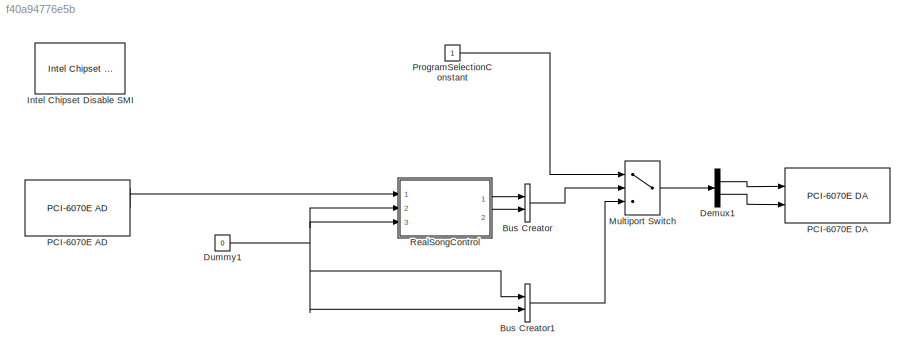
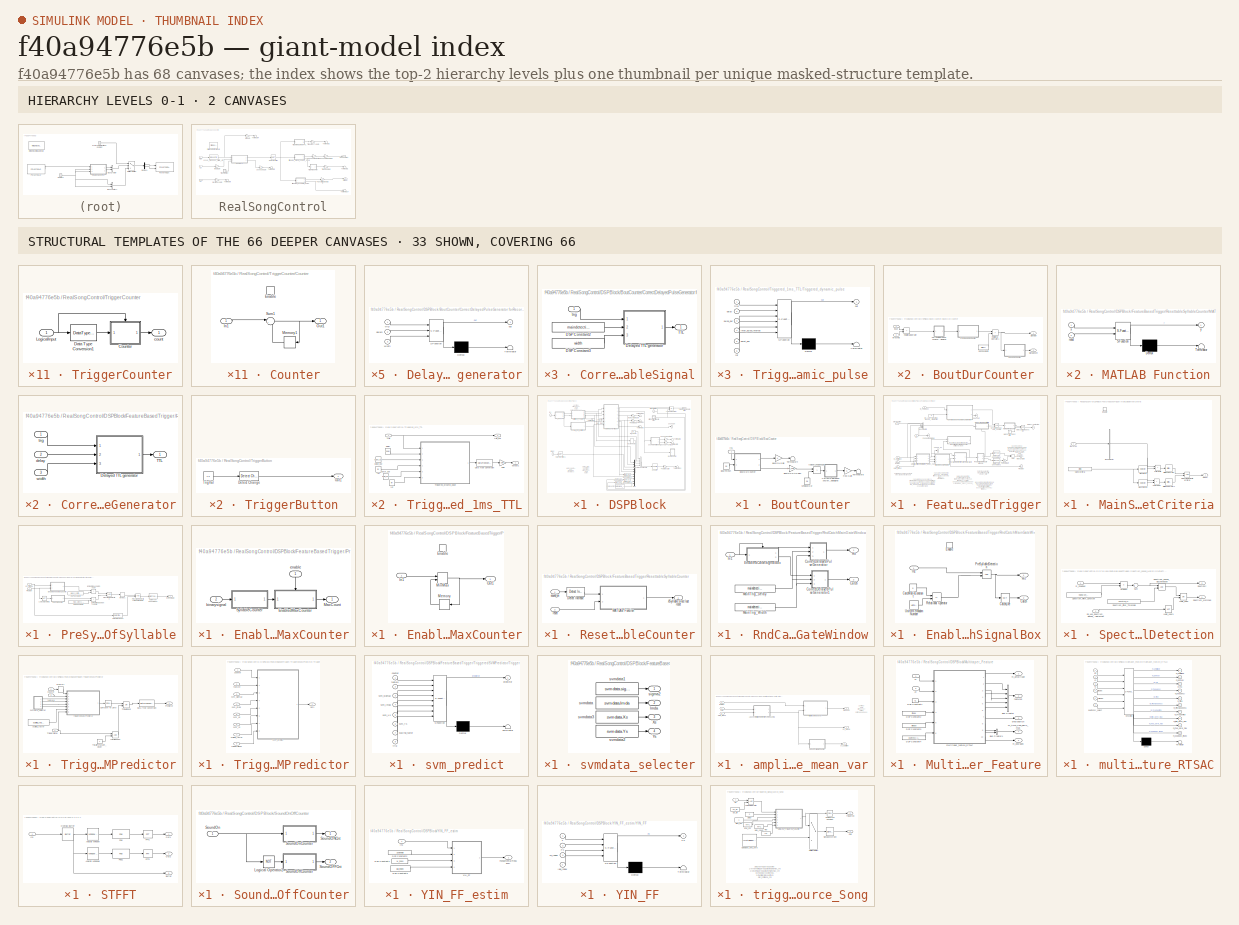
[diagram: thumbnail index - top-2 hierarchy levels (2 canvases) + 33 structural-template representatives of the remaining 66 canvases]
MODEL slx_f40a94776e5b
KIND model
CONFIG PreLoadFcn = % Here are parameters fixed\n% during running the real-time programs.\n% \nwinLen=256;\nana_hopSize=44;\nsyn_hopSize=90;\n\nnFFT=1024;\nSampRate=44100;\nTs=1/SampRate;\n\n% % now encoded in RealSong_control \n%cepst_nfft=2048;    % nfft size for cepstrum.\n%\n%up_pitch= 8000;% \n%low_pitch=400;%\n%\n%quefrency = [0:cepst_nfft]'*nFFT/(SampRate*cepst_nfft); % quefrency in [sec].\n%quefrency_index=find((1./quefrency<u...<+288ch>
BLOCK [BusCreator] Bus Creator
  DisplayOption = bar
  Inputs = 2
  Ports = [2, 1]
BLOCK [BusCreator] Bus Creator1
  DisplayOption = bar
  Inputs = 2
  Ports = [2, 1]
BLOCK [Demux] Demux1
  DisplayOption = bar
  Outputs = 2
  Ports = [1, 2]
BLOCK [Constant] Dummy1
  SampleTime = Ts
  Value = 0
BLOCK [Reference] Intel Chipset Disable SMI  REF=IntelSMIlibR2007b/Intel Chipset
Disable SMI
  Ports = []
  SourceBlock = IntelSMIlibR2007b/Intel Chipset\nDisable SMI
  SourceType = ICH5SMI
BLOCK [MultiPortSwitch] Multiport Switch
  InputSameDT = off
  Inputs = 2
  Ports = [3, 1]
  SaturateOnIntegerOverflow = off
BLOCK [Reference] PCI-6070E AD  REF=xpcnilib/A//D/E Series/PCI-6070E AD
  Ports = [0, 1]
  SourceBlock = xpcnilib/A//D/E Series/PCI-6070E AD
  SourceType = adnipci6070e
  channel = [1]
  coupling = [0]
  range = [-10 ]
  sampletime = Ts
  slot = -1
BLOCK [Reference] PCI-6070E DA  REF=xpcnilib/D//A/E Series/PCI-6070E DA
  Ports = [2]
  SourceBlock = xpcnilib/D//A/E Series/PCI-6070E DA
  SourceType = danipci6070e
  channel = [1 2]
  initValue = [0 0]
  range = [-10 -10]
  reset = [1 1]
  sampletime = Ts
  slot = -1
BLOCK [Constant] ProgramSelectionConstant
  SampleTime = Ts
BLOCK [SubSystem] RealSongControl
  FunctionWithSeparateData = off
  MaskHideContents = off
  MinAlgLoopOccurrences = off
  Opaque = off
  Ports = [3, 2]
  PropExecContextOutsideSubsystem = off
  RTWSystemCode = Auto
  RequestExecContextInheritance = off
BLOCK [Reference] RealSongControl/400Hz_highpass_elliptic_4th  REF=dsparch4/Biquad Filter
  BiQuadCoeffs = [1 -1.99997295416341 1 1 -1.86330921959673 0.873887398426786;1 -1.99984550773747 1 1 -1.98119934202051 0.984460391369785]
  CoeffSource = Specify via dialog
  FilterSource = Specify via dialog
  IC = 0
  ICden = 0
  ICnum = 0
  IIRFiltStruct = Direct form II
  InputProcessing = Columns as channels (frame based)
  LockScale = off
  Ports = [1, 1]
  ScaleValueMode = Specify via input port (g)
  ScaleValues = [16.3731438660539;0.0504230422181438;1]
  SourceBlock = dsparch4/Biquad Filter
  SourceType = Biquad Filter
  Tag = BlockMethodSubSystem
  UserDataPersistent = on
  a0Flag = Warning
  accumFracLength = 30
  accumMode = Same as product output
  accumWordLength = 32
  allowOverrides = on
  denAccumFracLength = 30
  denProdOutputFracLength = 30
  dfiltObjectName = dfilt.df2tsos([1 0.3 0.4],[1 0.1 0.2])
  firstCoeffFracLength = 15
  firstCoeffMode = Same word length as input
  firstCoeffWordLength = 16
  memoryFracLength = 15
  memoryMode = Same as accumulator
  memoryWordLength = 16
  multiplicandFracLength = 30
  multiplicandMode = Same as output
  multiplicandWordLength = 32
  optimizeScaleValues = on
  outputFracLength = 15
  outputMode = Same as accumulator
  outputWordLength = 16
  overflowMode = off
  prodOutputFracLength = 30
  prodOutputMode = Same as input
  prodOutputWordLength = 32
  roundingMode = Floor
  scaleValueFracLength = 14
  secondCoeffFracLength = 15
  secondCoeffMode = Same as numerator
  secondCoeffWordLength = 16
  secondMemoryFracLength = 15
  stageInputFracLength = 15
  stageInputMode = Same as input
  stageInputWordLength = 16
  stageOutputFracLength = 15
  stageOutputMode = Same as section input
  stageOutputWordLength = 16
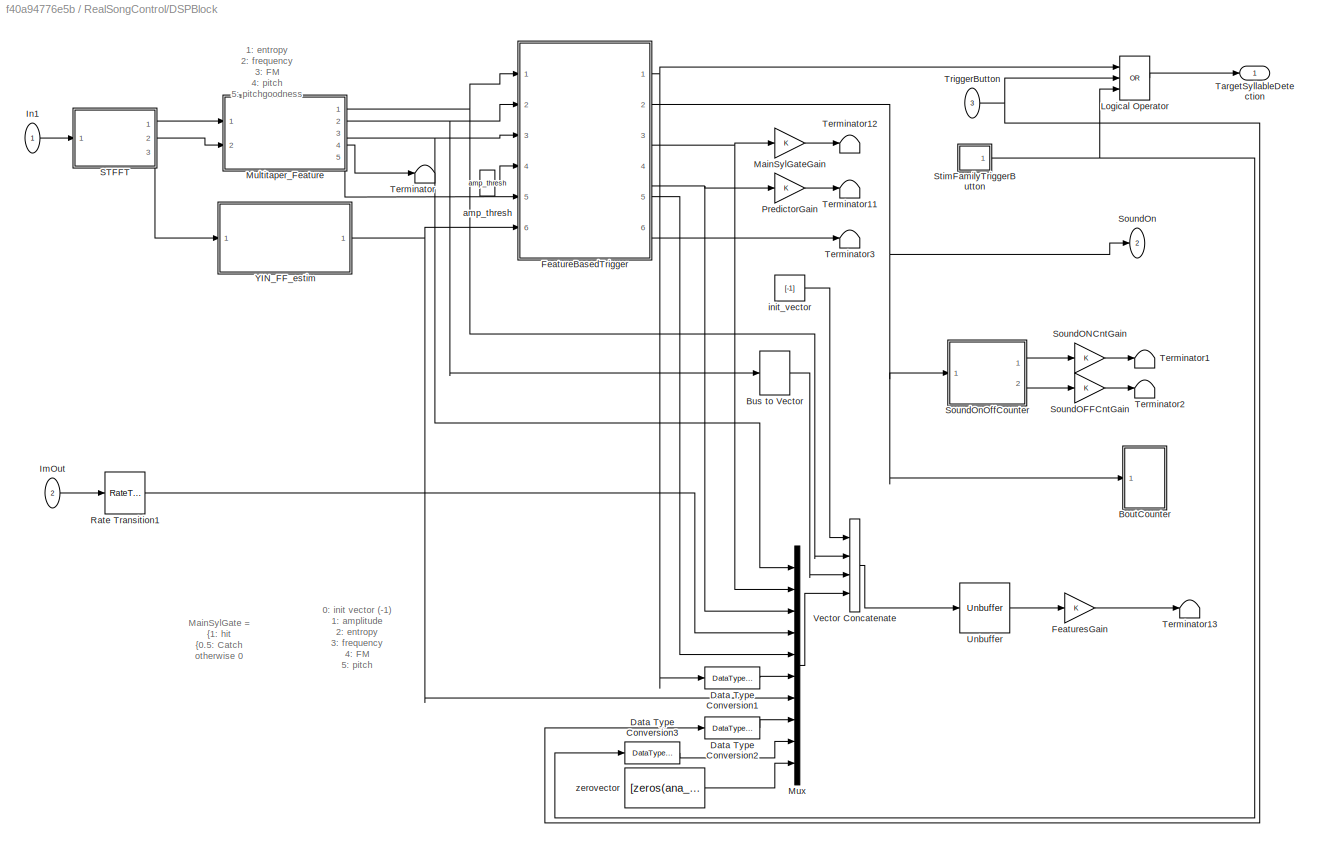
BLOCK [SubSystem] RealSongControl/DSPBlock
  FunctionWithSeparateData = off
  MaskHideContents = off
  MinAlgLoopOccurrences = off
  Opaque = off
  Ports = [3, 2]
  PropExecContextOutsideSubsystem = off
  RTWSystemCode = Auto
  RequestExecContextInheritance = off
BLOCK [SubSystem] RealSongControl/DSPBlock/BoutCounter
  FunctionWithSeparateData = off
  MaskHideContents = off
  MinAlgLoopOccurrences = off
  Opaque = off
  Ports = [1]
  PropExecContextOutsideSubsystem = off
  RTWSystemCode = Auto
  RequestExecContextInheritance = off
BLOCK [SubSystem] RealSongControl/DSPBlock/BoutCounter/BoutDurCounter
  FunctionWithSeparateData = off
  MaskHideContents = off
  MinAlgLoopOccurrences = off
  Opaque = off
  Ports = [2, 2]
  PropExecContextOutsideSubsystem = off
  RTWSystemCode = Auto
  RequestExecContextInheritance = off
BLOCK [SubSystem] RealSongControl/DSPBlock/BoutCounter/BoutDurCounter/CorrectDelayedPulseGenerator ForSyllableOn
  FunctionWithSeparateData = off
  MaskHideContents = off
  MinAlgLoopOccurrences = off
  Opaque = off
  Ports = [1, 1]
  PropExecContextOutsideSubsystem = off
  RTWSystemCode = Auto
  RequestExecContextInheritance = off
BLOCK [Constant] RealSongControl/DSPBlock/BoutCounter/BoutDurCounter/CorrectDelayedPulseGenerator ForSyllableOn/DSP Constant2
  Value = maindetection_startcnt
  VectorParams1D = off
BLOCK [Constant] RealSongControl/DSPBlock/BoutCounter/BoutDurCounter/CorrectDelayedPulseGenerator ForSyllableOn/DSP Constant3
  Value = width
  VectorParams1D = off
BLOCK [SubSystem] RealSongControl/DSPBlock/BoutCounter/BoutDurCounter/CorrectDelayedPulseGenerator ForSyllableOn/Delayed TTL generator
  ErrorFcn = Stateflow.Translate.translate
  FunctionWithSeparateData = off
  MaskHideContents = off
  MinAlgLoopOccurrences = off
  Opaque = off
  PermitHierarchicalResolution = ExplicitOnly
  Ports = [3, 1]
  PropExecContextOutsideSubsystem = off
  RTWSystemCode = Auto
  RequestExecContextInheritance = off
  SFBlockType = MATLAB Function
  TreatAsAtomicUnit = on
BLOCK [Demux] RealSongControl/DSPBlock/BoutCounter/BoutDurCounter/CorrectDelayedPulseGenerator ForSyllableOn/Delayed TTL generator/ Demux 
  Outputs = 1
  Ports = [1, 1]
BLOCK [S-Function] RealSongControl/DSPBlock/BoutCounter/BoutDurCounter/CorrectDelayedPulseGenerator ForSyllableOn/Delayed TTL generator/ SFunction 
  EnableBusSupport = on
  FunctionName = sf_sfun
  PortCounts = [3 2]
  Ports = [3, 2]
  Tag = Stateflow S-Function test_PCI6070_20130416_MIConly 8
BLOCK [Terminator] RealSongControl/DSPBlock/BoutCounter/BoutDurCounter/CorrectDelayedPulseGenerator ForSyllableOn/Delayed TTL generator/ Terminator 
BLOCK [Inport] RealSongControl/DSPBlock/BoutCounter/BoutDurCounter/CorrectDelayedPulseGenerator ForSyllableOn/Delayed TTL generator/delays
  IconDisplay = Port number
  Port = 2
BLOCK [Outport] RealSongControl/DSPBlock/BoutCounter/BoutDurCounter/CorrectDelayedPulseGenerator ForSyllableOn/Delayed TTL generator/out
  IconDisplay = Port number
BLOCK [Inport] RealSongControl/DSPBlock/BoutCounter/BoutDurCounter/CorrectDelayedPulseGenerator ForSyllableOn/Delayed TTL generator/trig
  IconDisplay = Port number
BLOCK [Inport] RealSongControl/DSPBlock/BoutCounter/BoutDurCounter/CorrectDelayedPulseGenerator ForSyllableOn/Delayed TTL generator/width
  IconDisplay = Port number
  Port = 3
BLOCK [Outport] RealSongControl/DSPBlock/BoutCounter/BoutDurCounter/CorrectDelayedPulseGenerator ForSyllableOn/TTL
  IconDisplay = Port number
BLOCK [Inport] RealSongControl/DSPBlock/BoutCounter/BoutDurCounter/CorrectDelayedPulseGenerator ForSyllableOn/trig
  IconDisplay = Port number
BLOCK [Constant] RealSongControl/DSPBlock/BoutCounter/BoutDurCounter/DSP Constant2
  Value = minsyl
  VectorParams1D = off
BLOCK [Inport] RealSongControl/DSPBlock/BoutCounter/BoutDurCounter/Input
  IconDisplay = Port number
BLOCK [SubSystem] RealSongControl/DSPBlock/BoutCounter/BoutDurCounter/PreSoundOnCounter
  FunctionWithSeparateData = off
  MaskHideContents = off
  MinAlgLoopOccurrences = off
  Opaque = off
  Ports = [1, 1]
  PropExecContextOutsideSubsystem = off
  RTWSystemCode = Auto
  RequestExecContextInheritance = off
BLOCK [SubSystem] RealSongControl/DSPBlock/BoutCounter/BoutDurCounter/PreSoundOnCounter/Counter
  FunctionWithSeparateData = off
  MaskHideContents = off
  MinAlgLoopOccurrences = off
  Opaque = off
  Ports = [1, 1, 1]
  PropExecContextOutsideSubsystem = off
  RTWSystemCode = Auto
  RequestExecContextInheritance = off
  TreatAsAtomicUnit = on
BLOCK [EnablePort] RealSongControl/DSPBlock/BoutCounter/BoutDurCounter/PreSoundOnCounter/Counter/Enable
  Ports = []
  StatesWhenEnabling = reset
BLOCK [Inport] RealSongControl/DSPBlock/BoutCounter/BoutDurCounter/PreSoundOnCounter/Counter/In1
  IconDisplay = Port number
BLOCK [Memory] RealSongControl/DSPBlock/BoutCounter/BoutDurCounter/PreSoundOnCounter/Counter/Memory1
  InheritSampleTime = on
BLOCK [Outport] RealSongControl/DSPBlock/BoutCounter/BoutDurCounter/PreSoundOnCounter/Counter/Out1
  IconDisplay = Port number
  InitialOutput = 0
  OutputWhenDisabled = reset
BLOCK [Sum] RealSongControl/DSPBlock/BoutCounter/BoutDurCounter/PreSoundOnCounter/Counter/Sum1
  IconShape = round
  InputSameDT = off
  Inputs = |++
  OutDataTypeStr = Inherit: Inherit via internal rule
  Ports = [2, 1]
BLOCK [DataTypeConversion] RealSongControl/DSPBlock/BoutCounter/BoutDurCounter/PreSoundOnCounter/Data Type Conversion1
  OutDataTypeStr = double
  SaturateOnIntegerOverflow = off
BLOCK [Inport] RealSongControl/DSPBlock/BoutCounter/BoutDurCounter/PreSoundOnCounter/LogicalInput
  IconDisplay = Port number
BLOCK [Outport] RealSongControl/DSPBlock/BoutCounter/BoutDurCounter/PreSoundOnCounter/count
  IconDisplay = Port number
BLOCK [RelationalOperator] RealSongControl/DSPBlock/BoutCounter/BoutDurCounter/Relational Operator
  InputSameDT = off
  Operator = >
  OutDataTypeStr = boolean
  Ports = [2, 1]
BLOCK [RelationalOperator] RealSongControl/DSPBlock/BoutCounter/BoutDurCounter/Relational Operator1
  InputSameDT = off
  Operator = >
  OutDataTypeStr = boolean
  Ports = [2, 1]
BLOCK [Outport] RealSongControl/DSPBlock/BoutCounter/BoutDurCounter/SignalOn
  IconDisplay = Port number
BLOCK [Outport] RealSongControl/DSPBlock/BoutCounter/BoutDurCounter/SignalOnCnt
  IconDisplay = Port number
  Port = 2
BLOCK [SubSystem] RealSongControl/DSPBlock/BoutCounter/BoutDurCounter/SoundOnCounter
  FunctionWithSeparateData = off
  MaskHideContents = off
  MinAlgLoopOccurrences = off
  Opaque = off
  Ports = [1, 1]
  PropExecContextOutsideSubsystem = off
  RTWSystemCode = Auto
  RequestExecContextInheritance = off
BLOCK [SubSystem] RealSongControl/DSPBlock/BoutCounter/BoutDurCounter/SoundOnCounter/Counter
  FunctionWithSeparateData = off
  MaskHideContents = off
  MinAlgLoopOccurrences = off
  Opaque = off
  Ports = [1, 1, 1]
  PropExecContextOutsideSubsystem = off
  RTWSystemCode = Auto
  RequestExecContextInheritance = off
  TreatAsAtomicUnit = on
BLOCK [EnablePort] RealSongControl/DSPBlock/BoutCounter/BoutDurCounter/SoundOnCounter/Counter/Enable
  Ports = []
  StatesWhenEnabling = reset
BLOCK [Inport] RealSongControl/DSPBlock/BoutCounter/BoutDurCounter/SoundOnCounter/Counter/In1
  IconDisplay = Port number
BLOCK [Memory] RealSongControl/DSPBlock/BoutCounter/BoutDurCounter/SoundOnCounter/Counter/Memory1
  InheritSampleTime = on
BLOCK [Outport] RealSongControl/DSPBlock/BoutCounter/BoutDurCounter/SoundOnCounter/Counter/Out1
  IconDisplay = Port number
  InitialOutput = 0
  OutputWhenDisabled = reset
BLOCK [Sum] RealSongControl/DSPBlock/BoutCounter/BoutDurCounter/SoundOnCounter/Counter/Sum1
  IconShape = round
  InputSameDT = off
  Inputs = |++
  OutDataTypeStr = Inherit: Inherit via internal rule
  Ports = [2, 1]
BLOCK [DataTypeConversion] RealSongControl/DSPBlock/BoutCounter/BoutDurCounter/SoundOnCounter/Data Type Conversion1
  OutDataTypeStr = double
  SaturateOnIntegerOverflow = off
BLOCK [Inport] RealSongControl/DSPBlock/BoutCounter/BoutDurCounter/SoundOnCounter/LogicalInput
  IconDisplay = Port number
BLOCK [Outport] RealSongControl/DSPBlock/BoutCounter/BoutDurCounter/SoundOnCounter/count
  IconDisplay = Port number
BLOCK [Inport] RealSongControl/DSPBlock/BoutCounter/BoutDurCounter/threshold
  IconDisplay = Port number
  Port = 2
BLOCK [Gain] RealSongControl/DSPBlock/BoutCounter/BoutONGAINSEC
  Gain = ana_hopSize*Ts
  OutDataTypeStr = Inherit: Inherit via internal rule
  ParamDataTypeStr = Inherit: Inherit via internal rule
  SaturateOnIntegerOverflow = off
BLOCK [Gain] RealSongControl/DSPBlock/BoutCounter/BoutONGain
  OutDataTypeStr = Inherit: Inherit via internal rule
  ParamDataTypeStr = Inherit: Inherit via internal rule
  SaturateOnIntegerOverflow = off
BLOCK [Constant] RealSongControl/DSPBlock/BoutCounter/BoutThresh
  Value = 0.5
BLOCK [SubSystem] RealSongControl/DSPBlock/BoutCounter/CorrectDelayedPulseGenerator forRecordingEnableSignal
  FunctionWithSeparateData = off
  MaskHideContents = off
  MinAlgLoopOccurrences = off
  Opaque = off
  Ports = [1, 1]
  PropExecContextOutsideSubsystem = off
  RTWSystemCode = Auto
  RequestExecContextInheritance = off
BLOCK [Constant] RealSongControl/DSPBlock/BoutCounter/CorrectDelayedPulseGenerator forRecordingEnableSignal/DSP Constant2
  Value = maindetection_startcnt
  VectorParams1D = off
BLOCK [Constant] RealSongControl/DSPBlock/BoutCounter/CorrectDelayedPulseGenerator forRecordingEnableSignal/DSP Constant3
  Value = width
  VectorParams1D = off
BLOCK [SubSystem] RealSongControl/DSPBlock/BoutCounter/CorrectDelayedPulseGenerator forRecordingEnableSignal/Delayed TTL generator
  ErrorFcn = Stateflow.Translate.translate
  FunctionWithSeparateData = off
  MaskHideContents = off
  MinAlgLoopOccurrences = off
  Opaque = off
  PermitHierarchicalResolution = ExplicitOnly
  Ports = [3, 1]
  PropExecContextOutsideSubsystem = off
  RTWSystemCode = Auto
  RequestExecContextInheritance = off
  SFBlockType = MATLAB Function
  TreatAsAtomicUnit = on
BLOCK [Demux] RealSongControl/DSPBlock/BoutCounter/CorrectDelayedPulseGenerator forRecordingEnableSignal/Delayed TTL generator/ Demux 
  Outputs = 1
  Ports = [1, 1]
BLOCK [S-Function] RealSongControl/DSPBlock/BoutCounter/CorrectDelayedPulseGenerator forRecordingEnableSignal/Delayed TTL generator/ SFunction 
  EnableBusSupport = on
  FunctionName = sf_sfun
  PortCounts = [3 2]
  Ports = [3, 2]
  Tag = Stateflow S-Function test_PCI6070_20130416_MIConly 9
BLOCK [Terminator] RealSongControl/DSPBlock/BoutCounter/CorrectDelayedPulseGenerator forRecordingEnableSignal/Delayed TTL generator/ Terminator 
BLOCK [Inport] RealSongControl/DSPBlock/BoutCounter/CorrectDelayedPulseGenerator forRecordingEnableSignal/Delayed TTL generator/delays
  IconDisplay = Port number
  Port = 2
BLOCK [Outport] RealSongControl/DSPBlock/BoutCounter/CorrectDelayedPulseGenerator forRecordingEnableSignal/Delayed TTL generator/out
  IconDisplay = Port number
BLOCK [Inport] RealSongControl/DSPBlock/BoutCounter/CorrectDelayedPulseGenerator forRecordingEnableSignal/Delayed TTL generator/trig
  IconDisplay = Port number
BLOCK [Inport] RealSongControl/DSPBlock/BoutCounter/CorrectDelayedPulseGenerator forRecordingEnableSignal/Delayed TTL generator/width
  IconDisplay = Port number
  Port = 3
BLOCK [Outport] RealSongControl/DSPBlock/BoutCounter/CorrectDelayedPulseGenerator forRecordingEnableSignal/TTL
  IconDisplay = Port number
BLOCK [Inport] RealSongControl/DSPBlock/BoutCounter/CorrectDelayedPulseGenerator forRecordingEnableSignal/trig
  IconDisplay = Port number
BLOCK [Inport] RealSongControl/DSPBlock/BoutCounter/In1
  IconDisplay = Port number
BLOCK [RelationalOperator] RealSongControl/DSPBlock/BoutCounter/IsBoutLongEnough
  InputSameDT = off
  Operator = >
  OutDataTypeStr = boolean
  Ports = [2, 1]
BLOCK [Constant] RealSongControl/DSPBlock/BoutCounter/MinBoutDur
  Value = 0.8
BLOCK [Gain] RealSongControl/DSPBlock/BoutCounter/RECGain
  OutDataTypeStr = Inherit: Inherit via internal rule
  ParamDataTypeStr = Inherit: Inherit via internal rule
  SaturateOnIntegerOverflow = off
BLOCK [Terminator] RealSongControl/DSPBlock/BoutCounter/Terminator4
BLOCK [Terminator] RealSongControl/DSPBlock/BoutCounter/Terminator8
BLOCK [BusToVector] RealSongControl/DSPBlock/Bus to Vector
BLOCK [DataTypeConversion] RealSongControl/DSPBlock/Data Type Conversion1
  OutDataTypeStr = double
  SaturateOnIntegerOverflow = off
BLOCK [DataTypeConversion] RealSongControl/DSPBlock/Data Type Conversion2
  OutDataTypeStr = double
  SaturateOnIntegerOverflow = off
BLOCK [DataTypeConversion] RealSongControl/DSPBlock/Data Type Conversion3
  OutDataTypeStr = double
  SaturateOnIntegerOverflow = off
BLOCK [SubSystem] RealSongControl/DSPBlock/FeatureBasedTrigger
  FunctionWithSeparateData = off
  MaskHideContents = off
  MinAlgLoopOccurrences = off
  Opaque = off
  Ports = [6, 6]
  PropExecContextOutsideSubsystem = off
  RTWSystemCode = Auto
  RequestExecContextInheritance = off
BLOCK [Sum] RealSongControl/DSPBlock/FeatureBasedTrigger/Add
  InputSameDT = off
  Inputs = +-
  OutDataTypeStr = Inherit: Inherit via internal rule
  Ports = [2, 1]
  SaturateOnIntegerOverflow = off
BLOCK [BusCreator] RealSongControl/DSPBlock/FeatureBasedTrigger/Bus Creator3
  DisplayOption = bar
  Ports = [4, 1]
BLOCK [DataTypeConversion] RealSongControl/DSPBlock/FeatureBasedTrigger/Data Type Conversion1
  OutDataTypeStr = double
  SaturateOnIntegerOverflow = off
BLOCK [DataTypeConversion] RealSongControl/DSPBlock/FeatureBasedTrigger/Data Type Conversion2
  OutDataTypeStr = double
  SaturateOnIntegerOverflow = off
BLOCK [Constant] RealSongControl/DSPBlock/FeatureBasedTrigger/Do_Use_Spectrum_Based_SylDetection
  Value = 0
BLOCK [Inport] RealSongControl/DSPBlock/FeatureBasedTrigger/FF
  IconDisplay = Port number
  Port = 6
BLOCK [Outport] RealSongControl/DSPBlock/FeatureBasedTrigger/FundamentalFreq
  IconDisplay = Port number
  Port = 6
BLOCK [SubSystem] RealSongControl/DSPBlock/FeatureBasedTrigger/MainDetectCounter
  FunctionWithSeparateData = off
  MaskHideContents = off
  MinAlgLoopOccurrences = off
  Opaque = off
  Ports = [1, 1]
  PropExecContextOutsideSubsystem = off
  RTWSystemCode = Auto
  RequestExecContextInheritance = off
BLOCK [SubSystem] RealSongControl/DSPBlock/FeatureBasedTrigger/MainDetectCounter/Counter
  FunctionWithSeparateData = off
  MaskHideContents = off
  MinAlgLoopOccurrences = off
  Opaque = off
  Ports = [1, 1, 1]
  PropExecContextOutsideSubsystem = off
  RTWSystemCode = Auto
  RequestExecContextInheritance = off
  TreatAsAtomicUnit = on
BLOCK [EnablePort] RealSongControl/DSPBlock/FeatureBasedTrigger/MainDetectCounter/Counter/Enable
  Ports = []
  StatesWhenEnabling = reset
BLOCK [Inport] RealSongControl/DSPBlock/FeatureBasedTrigger/MainDetectCounter/Counter/In1
  IconDisplay = Port number
BLOCK [Memory] RealSongControl/DSPBlock/FeatureBasedTrigger/MainDetectCounter/Counter/Memory1
  InheritSampleTime = on
BLOCK [Outport] RealSongControl/DSPBlock/FeatureBasedTrigger/MainDetectCounter/Counter/Out1
  IconDisplay = Port number
  InitialOutput = 0
  OutputWhenDisabled = reset
BLOCK [Sum] RealSongControl/DSPBlock/FeatureBasedTrigger/MainDetectCounter/Counter/Sum1
  IconShape = round
  InputSameDT = off
  Inputs = |++
  OutDataTypeStr = Inherit: Inherit via internal rule
  Ports = [2, 1]
BLOCK [DataTypeConversion] RealSongControl/DSPBlock/FeatureBasedTrigger/MainDetectCounter/Data Type Conversion1
  OutDataTypeStr = double
  SaturateOnIntegerOverflow = off
BLOCK [Inport] RealSongControl/DSPBlock/FeatureBasedTrigger/MainDetectCounter/LogicalInput
  IconDisplay = Port number
BLOCK [Outport] RealSongControl/DSPBlock/FeatureBasedTrigger/MainDetectCounter/count
  IconDisplay = Port number
BLOCK [Outport] RealSongControl/DSPBlock/FeatureBasedTrigger/MainSylGate
  IconDisplay = Port number
  Port = 3
BLOCK [RelationalOperator] RealSongControl/DSPBlock/FeatureBasedTrigger/MainSylStableEnough
  InputSameDT = off
  OutDataTypeStr = boolean
  Ports = [2, 1]
BLOCK [Constant] RealSongControl/DSPBlock/FeatureBasedTrigger/MainSylTrigThreshold
  Value = 3
BLOCK [SubSystem] RealSongControl/DSPBlock/FeatureBasedTrigger/MainSyllableMeetCriteria
  FunctionWithSeparateData = off
  MaskHideContents = off
  MinAlgLoopOccurrences = off
  Opaque = off
  Ports = [1, 1, 1]
  PropExecContextOutsideSubsystem = off
  RTWSystemCode = Auto
  RequestExecContextInheritance = off
  TreatAsAtomicUnit = on
BLOCK [Reference] RealSongControl/DSPBlock/FeatureBasedTrigger/MainSyllableMeetCriteria/Bitwise Operator  REF=simulink/Logic and Bit
Operations/Bitwise
Operator
  BitMask = bin2dec('11011001')
  BitMaskRealWorld = Stored Integer
  NumInputPorts = 1
  Ports = [1, 1]
  SourceBlock = simulink/Logic and Bit\nOperations/Bitwise\nOperator
  SourceType = Bitwise Operator
  UseBitMask = off
  logicop = AND
BLOCK [Reference] RealSongControl/DSPBlock/FeatureBasedTrigger/MainSyllableMeetCriteria/Bitwise Operator1  REF=simulink/Logic and Bit
Operations/Bitwise
Operator
  BitMask = bin2dec('11011001')
  BitMaskRealWorld = Stored Integer
  NumInputPorts = 1
  Ports = [1, 1]
  SourceBlock = simulink/Logic and Bit\nOperations/Bitwise\nOperator
  SourceType = Bitwise Operator
  UseBitMask = off
  logicop = AND
BLOCK [BusSelector] RealSongControl/DSPBlock/FeatureBasedTrigger/MainSyllableMeetCriteria/Bus Selector
  OutputAsBus = on
  OutputSignals = m_amplitude,signal2.m_Entropy,signal2.m_frequency,signal2.m_FM,signal2.m_Pitch,signal2.m_PitchGoodness,m_PrecisePitch,F0
  Ports = [1, 1]
BLOCK [RelationalOperator] RealSongControl/DSPBlock/FeatureBasedTrigger/MainSyllableMeetCriteria/CriteriaMax
  InputSameDT = off
  Operator = <
  OutDataTypeStr = boolean
  Ports = [2, 1]
BLOCK [RelationalOperator] RealSongControl/DSPBlock/FeatureBasedTrigger/MainSyllableMeetCriteria/CriteriaMin
  InputSameDT = off
  Operator = >
  OutDataTypeStr = boolean
  Ports = [2, 1]
BLOCK [EnablePort] RealSongControl/DSPBlock/FeatureBasedTrigger/MainSyllableMeetCriteria/Enable
  Ports = []
BLOCK [Constant] RealSongControl/DSPBlock/FeatureBasedTrigger/MainSyllableMeetCriteria/MainSylCriteria
  Value = criteria
  VectorParams1D = off
BLOCK [Logic] RealSongControl/DSPBlock/FeatureBasedTrigger/MainSyllableMeetCriteria/MainSyllableMeetingCriteria
  AllPortsSameDT = off
  OutDataTypeStr = boolean
  Ports = [2, 1]
BLOCK [Selector] RealSongControl/DSPBlock/FeatureBasedTrigger/MainSyllableMeetCriteria/MaxCriteria1
  IndexOptions = Select all,Index vector (dialog)
  Indices = [1 3],2
  InputPortWidth = 3
  NumberOfDimensions = 2
  OutputSizes = 1,1
  Ports = [1, 1]
BLOCK [Selector] RealSongControl/DSPBlock/FeatureBasedTrigger/MainSyllableMeetCriteria/MinCriteria
  IndexOptions = Select all,Index vector (dialog)
  Indices = [1 3],1
  InputPortWidth = 3
  NumberOfDimensions = 2
  OutputSizes = 1,1
  Ports = [1, 1]
BLOCK [Inport] RealSongControl/DSPBlock/FeatureBasedTrigger/MainSyllableMeetCriteria/fearures
  IconDisplay = Port number
BLOCK [Outport] RealSongControl/DSPBlock/FeatureBasedTrigger/MainSyllableMeetCriteria/logical
  IconDisplay = Port number
  InitialOutput = 0
  OutputWhenDisabled = reset
BLOCK [SubSystem] RealSongControl/DSPBlock/FeatureBasedTrigger/PreSyllableDetectionAtEndOfSyllable
  FunctionWithSeparateData = off
  MaskHideContents = off
  MinAlgLoopOccurrences = off
  Opaque = off
  Ports = [2, 1]
  PropExecContextOutsideSubsystem = off
  RTWSystemCode = Auto
  RequestExecContextInheritance = off
BLOCK [SubSystem] RealSongControl/DSPBlock/FeatureBasedTrigger/PreSyllableDetectionAtEndOfSyllable/CancelCounter
  FunctionWithSeparateData = off
  MaskHideContents = off
  MinAlgLoopOccurrences = off
  Opaque = off
  Ports = [1, 1]
  PropExecContextOutsideSubsystem = off
  RTWSystemCode = Auto
  RequestExecContextInheritance = off
BLOCK [SubSystem] RealSongControl/DSPBlock/FeatureBasedTrigger/PreSyllableDetectionAtEndOfSyllable/CancelCounter/Counter
  FunctionWithSeparateData = off
  MaskHideContents = off
  MinAlgLoopOccurrences = off
  Opaque = off
  Ports = [1, 1, 1]
  PropExecContextOutsideSubsystem = off
  RTWSystemCode = Auto
  RequestExecContextInheritance = off
  TreatAsAtomicUnit = on
BLOCK [EnablePort] RealSongControl/DSPBlock/FeatureBasedTrigger/PreSyllableDetectionAtEndOfSyllable/CancelCounter/Counter/Enable
  Ports = []
  StatesWhenEnabling = reset
BLOCK [Inport] RealSongControl/DSPBlock/FeatureBasedTrigger/PreSyllableDetectionAtEndOfSyllable/CancelCounter/Counter/In1
  IconDisplay = Port number
BLOCK [Memory] RealSongControl/DSPBlock/FeatureBasedTrigger/PreSyllableDetectionAtEndOfSyllable/CancelCounter/Counter/Memory1
  InheritSampleTime = on
BLOCK [Outport] RealSongControl/DSPBlock/FeatureBasedTrigger/PreSyllableDetectionAtEndOfSyllable/CancelCounter/Counter/Out1
  IconDisplay = Port number
  InitialOutput = 0
  OutputWhenDisabled = reset
BLOCK [Sum] RealSongControl/DSPBlock/FeatureBasedTrigger/PreSyllableDetectionAtEndOfSyllable/CancelCounter/Counter/Sum1
  IconShape = round
  InputSameDT = off
  Inputs = |++
  OutDataTypeStr = Inherit: Inherit via internal rule
  Ports = [2, 1]
BLOCK [DataTypeConversion] RealSongControl/DSPBlock/FeatureBasedTrigger/PreSyllableDetectionAtEndOfSyllable/CancelCounter/Data Type Conversion1
  OutDataTypeStr = double
  SaturateOnIntegerOverflow = off
BLOCK [Inport] RealSongControl/DSPBlock/FeatureBasedTrigger/PreSyllableDetectionAtEndOfSyllable/CancelCounter/LogicalInput
  IconDisplay = Port number
BLOCK [Outport] RealSongControl/DSPBlock/FeatureBasedTrigger/PreSyllableDetectionAtEndOfSyllable/CancelCounter/count
  IconDisplay = Port number
BLOCK [Constant] RealSongControl/DSPBlock/FeatureBasedTrigger/PreSyllableDetectionAtEndOfSyllable/DSP Constant1
  Value = max_presyl_cancel_counter
  VectorParams1D = off
BLOCK [Constant] RealSongControl/DSPBlock/FeatureBasedTrigger/PreSyllableDetectionAtEndOfSyllable/DSP Constant2
  Value = presyl_cntmin
  VectorParams1D = off
BLOCK [DataTypeConversion] RealSongControl/DSPBlock/FeatureBasedTrigger/PreSyllableDetectionAtEndOfSyllable/Data Type Conversion1
  OutDataTypeStr = double
  SaturateOnIntegerOverflow = off
BLOCK [Reference] RealSongControl/DSPBlock/FeatureBasedTrigger/PreSyllableDetectionAtEndOfSyllable/Detect Decrease  REF=simulink/Logic and Bit
Operations/Detect
Decrease
  InputProcessing = Inherited
  OutDataTypeStr = uint8
  Ports = [1, 1]
  SourceBlock = simulink/Logic and Bit\nOperations/Detect\nDecrease
  SourceType = Detect Decrease
  vinit = 0.0
BLOCK [SubSystem] RealSongControl/DSPBlock/FeatureBasedTrigger/PreSyllableDetectionAtEndOfSyllable/EnabledKeepMaxCounter
  FunctionWithSeparateData = off
  MaskHideContents = off
  MinAlgLoopOccurrences = off
  Opaque = off
  Ports = [2, 1]
  PropExecContextOutsideSubsystem = off
  RTWSystemCode = Auto
  RequestExecContextInheritance = off
BLOCK [SubSystem] RealSongControl/DSPBlock/FeatureBasedTrigger/PreSyllableDetectionAtEndOfSyllable/EnabledKeepMaxCounter/EnabledMaxCounter
  FunctionWithSeparateData = off
  MaskHideContents = off
  MinAlgLoopOccurrences = off
  Opaque = off
  Ports = [1, 1, 1]
  PropExecContextOutsideSubsystem = off
  RTWSystemCode = Auto
  RequestExecContextInheritance = off
  TreatAsAtomicUnit = on
BLOCK [EnablePort] RealSongControl/DSPBlock/FeatureBasedTrigger/PreSyllableDetectionAtEndOfSyllable/EnabledKeepMaxCounter/EnabledMaxCounter/Enable
  Ports = []
  StatesWhenEnabling = reset
BLOCK [Inport] RealSongControl/DSPBlock/FeatureBasedTrigger/PreSyllableDetectionAtEndOfSyllable/EnabledKeepMaxCounter/EnabledMaxCounter/In1
  IconDisplay = Port number
BLOCK [Memory] RealSongControl/DSPBlock/FeatureBasedTrigger/PreSyllableDetectionAtEndOfSyllable/EnabledKeepMaxCounter/EnabledMaxCounter/Memory
  InheritSampleTime = on
BLOCK [MinMax] RealSongControl/DSPBlock/FeatureBasedTrigger/PreSyllableDetectionAtEndOfSyllable/EnabledKeepMaxCounter/EnabledMaxCounter/MinMax
  Function = max
  InputSameDT = off
  Inputs = 2
  Ports = [2, 1]
  SaturateOnIntegerOverflow = off
BLOCK [Outport] RealSongControl/DSPBlock/FeatureBasedTrigger/PreSyllableDetectionAtEndOfSyllable/EnabledKeepMaxCounter/EnabledMaxCounter/Out1
  IconDisplay = Port number
  InitialOutput = 0
  OutputWhenDisabled = reset
BLOCK [Outport] RealSongControl/DSPBlock/FeatureBasedTrigger/PreSyllableDetectionAtEndOfSyllable/EnabledKeepMaxCounter/MaxCount
  IconDisplay = Port number
BLOCK [SubSystem] RealSongControl/DSPBlock/FeatureBasedTrigger/PreSyllableDetectionAtEndOfSyllable/EnabledKeepMaxCounter/SyllableCounter
  FunctionWithSeparateData = off
  MaskHideContents = off
  MinAlgLoopOccurrences = off
  Opaque = off
  Ports = [1, 1]
  PropExecContextOutsideSubsystem = off
  RTWSystemCode = Auto
  RequestExecContextInheritance = off
BLOCK [SubSystem] RealSongControl/DSPBlock/FeatureBasedTrigger/PreSyllableDetectionAtEndOfSyllable/EnabledKeepMaxCounter/SyllableCounter/Counter
  FunctionWithSeparateData = off
  MaskHideContents = off
  MinAlgLoopOccurrences = off
  Opaque = off
  Ports = [1, 1, 1]
  PropExecContextOutsideSubsystem = off
  RTWSystemCode = Auto
  RequestExecContextInheritance = off
  TreatAsAtomicUnit = on
BLOCK [EnablePort] RealSongControl/DSPBlock/FeatureBasedTrigger/PreSyllableDetectionAtEndOfSyllable/EnabledKeepMaxCounter/SyllableCounter/Counter/Enable
  Ports = []
  StatesWhenEnabling = reset
BLOCK [Inport] RealSongControl/DSPBlock/FeatureBasedTrigger/PreSyllableDetectionAtEndOfSyllable/EnabledKeepMaxCounter/SyllableCounter/Counter/In1
  IconDisplay = Port number
BLOCK [Memory] RealSongControl/DSPBlock/FeatureBasedTrigger/PreSyllableDetectionAtEndOfSyllable/EnabledKeepMaxCounter/SyllableCounter/Counter/Memory1
  InheritSampleTime = on
BLOCK [Outport] RealSongControl/DSPBlock/FeatureBasedTrigger/PreSyllableDetectionAtEndOfSyllable/EnabledKeepMaxCounter/SyllableCounter/Counter/Out1
  IconDisplay = Port number
  InitialOutput = 0
  OutputWhenDisabled = reset
BLOCK [Sum] RealSongControl/DSPBlock/FeatureBasedTrigger/PreSyllableDetectionAtEndOfSyllable/EnabledKeepMaxCounter/SyllableCounter/Counter/Sum1
  IconShape = round
  InputSameDT = off
  Inputs = |++
  OutDataTypeStr = Inherit: Inherit via internal rule
  Ports = [2, 1]
BLOCK [DataTypeConversion] RealSongControl/DSPBlock/FeatureBasedTrigger/PreSyllableDetectionAtEndOfSyllable/EnabledKeepMaxCounter/SyllableCounter/Data Type Conversion1
  OutDataTypeStr = double
  SaturateOnIntegerOverflow = off
BLOCK [Inport] RealSongControl/DSPBlock/FeatureBasedTrigger/PreSyllableDetectionAtEndOfSyllable/EnabledKeepMaxCounter/SyllableCounter/LogicalInput
  IconDisplay = Port number
BLOCK [Outport] RealSongControl/DSPBlock/FeatureBasedTrigger/PreSyllableDetectionAtEndOfSyllable/EnabledKeepMaxCounter/SyllableCounter/count
  IconDisplay = Port number
BLOCK [Inport] RealSongControl/DSPBlock/FeatureBasedTrigger/PreSyllableDetectionAtEndOfSyllable/EnabledKeepMaxCounter/binarysignal
  IconDisplay = Port number
  Port = 2
BLOCK [Inport] RealSongControl/DSPBlock/FeatureBasedTrigger/PreSyllableDetectionAtEndOfSyllable/EnabledKeepMaxCounter/enable
  IconDisplay = Port number
BLOCK [Outport] RealSongControl/DSPBlock/FeatureBasedTrigger/PreSyllableDetectionAtEndOfSyllable/IsPreSyllable
  IconDisplay = Port number
BLOCK [RelationalOperator] RealSongControl/DSPBlock/FeatureBasedTrigger/PreSyllableDetectionAtEndOfSyllable/IsPredictedLongEnough
  InputSameDT = off
  Operator = >
  OutDataTypeStr = boolean
  Ports = [2, 1]
BLOCK [RelationalOperator] RealSongControl/DSPBlock/FeatureBasedTrigger/PreSyllableDetectionAtEndOfSyllable/IsPredictionEndNotTooEarly
  InputSameDT = off
  Operator = <
  OutDataTypeStr = boolean
  Ports = [2, 1]
BLOCK [Logic] RealSongControl/DSPBlock/FeatureBasedTrigger/PreSyllableDetectionAtEndOfSyllable/Logical Operator1
  AllPortsSameDT = off
  Operator = NOT
  OutDataTypeStr = boolean
  Ports = [1, 1]
BLOCK [Memory] RealSongControl/DSPBlock/FeatureBasedTrigger/PreSyllableDetectionAtEndOfSyllable/Memory1
  InheritSampleTime = on
BLOCK [Logic] RealSongControl/DSPBlock/FeatureBasedTrigger/PreSyllableDetectionAtEndOfSyllable/PreSyllableDetection
  AllPortsSameDT = off
  OutDataTypeStr = boolean
  Ports = [2, 1]
BLOCK [Logic] RealSongControl/DSPBlock/FeatureBasedTrigger/PreSyllableDetectionAtEndOfSyllable/PreSyllableDetectionAtEndOfSyllable
  AllPortsSameDT = off
  OutDataTypeStr = boolean
  Ports = [2, 1]
BLOCK [Inport] RealSongControl/DSPBlock/FeatureBasedTrigger/PreSyllableDetectionAtEndOfSyllable/Predictor
  IconDisplay = Port number
  Port = 2
BLOCK [Inport] RealSongControl/DSPBlock/FeatureBasedTrigger/PreSyllableDetectionAtEndOfSyllable/on_signal
  IconDisplay = Port number
BLOCK [Outport] RealSongControl/DSPBlock/FeatureBasedTrigger/Predictor
  IconDisplay = Port number
  Port = 4
BLOCK [Gain] RealSongControl/DSPBlock/FeatureBasedTrigger/PredictorGain
  Gain = 0.5
  OutDataTypeStr = Inherit: Inherit via internal rule
  ParamDataTypeStr = Inherit: Inherit via internal rule
  SaturateOnIntegerOverflow = off
BLOCK [SubSystem] RealSongControl/DSPBlock/FeatureBasedTrigger/ResettableSyllableCounter
  FunctionWithSeparateData = off
  MaskHideContents = off
  MinAlgLoopOccurrences = off
  Opaque = off
  Ports = [2, 1]
  PropExecContextOutsideSubsystem = off
  RTWSystemCode = Auto
  RequestExecContextInheritance = off
BLOCK [Outport] RealSongControl/DSPBlock/FeatureBasedTrigger/ResettableSyllableCounter/#Syllable since last reset 
  IconDisplay = Port number
BLOCK [Reference] RealSongControl/DSPBlock/FeatureBasedTrigger/ResettableSyllableCounter/Detect Increase  REF=simulink/Logic and Bit
Operations/Detect
Increase
  InputProcessing = Inherited
  OutDataTypeStr = uint8
  Ports = [1, 1]
  SourceBlock = simulink/Logic and Bit\nOperations/Detect\nIncrease
  SourceType = Detect Increase
  vinit = 0.0
BLOCK [SubSystem] RealSongControl/DSPBlock/FeatureBasedTrigger/ResettableSyllableCounter/MATLAB Function
  ErrorFcn = Stateflow.Translate.translate
  FunctionWithSeparateData = off
  MaskHideContents = off
  MinAlgLoopOccurrences = off
  Opaque = off
  PermitHierarchicalResolution = ExplicitOnly
  Ports = [2, 1]
  PropExecContextOutsideSubsystem = off
  RTWSystemCode = Auto
  RequestExecContextInheritance = off
  SFBlockType = MATLAB Function
  TreatAsAtomicUnit = on
BLOCK [Demux] RealSongControl/DSPBlock/FeatureBasedTrigger/ResettableSyllableCounter/MATLAB Function/ Demux 
  Outputs = 1
  Ports = [1, 1]
BLOCK [S-Function] RealSongControl/DSPBlock/FeatureBasedTrigger/ResettableSyllableCounter/MATLAB Function/ SFunction 
  EnableBusSupport = on
  FunctionName = sf_sfun
  PortCounts = [2 2]
  Ports = [2, 2]
  Tag = Stateflow S-Function test_PCI6070_20130416_MIConly 10
BLOCK [Terminator] RealSongControl/DSPBlock/FeatureBasedTrigger/ResettableSyllableCounter/MATLAB Function/ Terminator 
BLOCK [Inport] RealSongControl/DSPBlock/FeatureBasedTrigger/ResettableSyllableCounter/MATLAB Function/reset
  IconDisplay = Port number
  Port = 2
BLOCK [Inport] RealSongControl/DSPBlock/FeatureBasedTrigger/ResettableSyllableCounter/MATLAB Function/x
  IconDisplay = Port number
BLOCK [Outport] RealSongControl/DSPBlock/FeatureBasedTrigger/ResettableSyllableCounter/MATLAB Function/y
  IconDisplay = Port number
BLOCK [Inport] RealSongControl/DSPBlock/FeatureBasedTrigger/ResettableSyllableCounter/reset
  IconDisplay = Port number
  Port = 2
BLOCK [Inport] RealSongControl/DSPBlock/FeatureBasedTrigger/ResettableSyllableCounter/sound_on
  IconDisplay = Port number
BLOCK [SubSystem] RealSongControl/DSPBlock/FeatureBasedTrigger/RndCatchMainGateWindow
  FunctionWithSeparateData = off
  MaskHideContents = off
  MinAlgLoopOccurrences = off
  Opaque = off
  Ports = [1, 2]
  PropExecContextOutsideSubsystem = off
  RTWSystemCode = Auto
  RequestExecContextInheritance = off
BLOCK [Outport] RealSongControl/DSPBlock/FeatureBasedTrigger/RndCatchMainGateWindow/Catch
  IconDisplay = Port number
  Port = 2
BLOCK [SubSystem] RealSongControl/DSPBlock/FeatureBasedTrigger/RndCatchMainGateWindow/CorrectDelayedPulseGenerator
  FunctionWithSeparateData = off
  MaskHideContents = off
  MinAlgLoopOccurrences = off
  Opaque = off
  Ports = [3, 1]
  PropExecContextOutsideSubsystem = off
  RTWSystemCode = Auto
  RequestExecContextInheritance = off
BLOCK [SubSystem] RealSongControl/DSPBlock/FeatureBasedTrigger/RndCatchMainGateWindow/CorrectDelayedPulseGenerator/Delayed TTL generator
  ErrorFcn = Stateflow.Translate.translate
  FunctionWithSeparateData = off
  MaskHideContents = off
  MinAlgLoopOccurrences = off
  Opaque = off
  PermitHierarchicalResolution = ExplicitOnly
  Ports = [3, 1]
  PropExecContextOutsideSubsystem = off
  RTWSystemCode = Auto
  RequestExecContextInheritance = off
  SFBlockType = MATLAB Function
  TreatAsAtomicUnit = on
BLOCK [Demux] RealSongControl/DSPBlock/FeatureBasedTrigger/RndCatchMainGateWindow/CorrectDelayedPulseGenerator/Delayed TTL generator/ Demux 
  Outputs = 1
  Ports = [1, 1]
BLOCK [S-Function] RealSongControl/DSPBlock/FeatureBasedTrigger/RndCatchMainGateWindow/CorrectDelayedPulseGenerator/Delayed TTL generator/ SFunction 
  EnableBusSupport = on
  FunctionName = sf_sfun
  PortCounts = [3 2]
  Ports = [3, 2]
  Tag = Stateflow S-Function test_PCI6070_20130416_MIConly 3
BLOCK [Terminator] RealSongControl/DSPBlock/FeatureBasedTrigger/RndCatchMainGateWindow/CorrectDelayedPulseGenerator/Delayed TTL generator/ Terminator 
BLOCK [Inport] RealSongControl/DSPBlock/FeatureBasedTrigger/RndCatchMainGateWindow/CorrectDelayedPulseGenerator/Delayed TTL generator/delays
  IconDisplay = Port number
  Port = 2
BLOCK [Outport] RealSongControl/DSPBlock/FeatureBasedTrigger/RndCatchMainGateWindow/CorrectDelayedPulseGenerator/Delayed TTL generator/out
  IconDisplay = Port number
BLOCK [Inport] RealSongControl/DSPBlock/FeatureBasedTrigger/RndCatchMainGateWindow/CorrectDelayedPulseGenerator/Delayed TTL generator/trig
  IconDisplay = Port number
BLOCK [Inport] RealSongControl/DSPBlock/FeatureBasedTrigger/RndCatchMainGateWindow/CorrectDelayedPulseGenerator/Delayed TTL generator/width
  IconDisplay = Port number
  Port = 3
BLOCK [Outport] RealSongControl/DSPBlock/FeatureBasedTrigger/RndCatchMainGateWindow/CorrectDelayedPulseGenerator/TTL
  IconDisplay = Port number
BLOCK [Inport] RealSongControl/DSPBlock/FeatureBasedTrigger/RndCatchMainGateWindow/CorrectDelayedPulseGenerator/delay
  IconDisplay = Port number
  Port = 2
BLOCK [Inport] RealSongControl/DSPBlock/FeatureBasedTrigger/RndCatchMainGateWindow/CorrectDelayedPulseGenerator/trig
  IconDisplay = Port number
BLOCK [Inport] RealSongControl/DSPBlock/FeatureBasedTrigger/RndCatchMainGateWindow/CorrectDelayedPulseGenerator/width
  IconDisplay = Port number
  Port = 3
BLOCK [SubSystem] RealSongControl/DSPBlock/FeatureBasedTrigger/RndCatchMainGateWindow/CorrectDelayedPulseGenerator1
  FunctionWithSeparateData = off
  MaskHideContents = off
  MinAlgLoopOccurrences = off
  Opaque = off
  Ports = [3, 1]
  PropExecContextOutsideSubsystem = off
  RTWSystemCode = Auto
  RequestExecContextInheritance = off
BLOCK [SubSystem] RealSongControl/DSPBlock/FeatureBasedTrigger/RndCatchMainGateWindow/CorrectDelayedPulseGenerator1/Delayed TTL generator
  ErrorFcn = Stateflow.Translate.translate
  FunctionWithSeparateData = off
  MaskHideContents = off
  MinAlgLoopOccurrences = off
  Opaque = off
  PermitHierarchicalResolution = ExplicitOnly
  Ports = [3, 1]
  PropExecContextOutsideSubsystem = off
  RTWSystemCode = Auto
  RequestExecContextInheritance = off
  SFBlockType = MATLAB Function
  TreatAsAtomicUnit = on
BLOCK [Demux] RealSongControl/DSPBlock/FeatureBasedTrigger/RndCatchMainGateWindow/CorrectDelayedPulseGenerator1/Delayed TTL generator/ Demux 
  Outputs = 1
  Ports = [1, 1]
BLOCK [S-Function] RealSongControl/DSPBlock/FeatureBasedTrigger/RndCatchMainGateWindow/CorrectDelayedPulseGenerator1/Delayed TTL generator/ SFunction 
  EnableBusSupport = on
  FunctionName = sf_sfun
  PortCounts = [3 2]
  Ports = [3, 2]
  Tag = Stateflow S-Function test_PCI6070_20130416_MIConly 16
BLOCK [Terminator] RealSongControl/DSPBlock/FeatureBasedTrigger/RndCatchMainGateWindow/CorrectDelayedPulseGenerator1/Delayed TTL generator/ Terminator 
BLOCK [Inport] RealSongControl/DSPBlock/FeatureBasedTrigger/RndCatchMainGateWindow/CorrectDelayedPulseGenerator1/Delayed TTL generator/delays
  IconDisplay = Port number
  Port = 2
BLOCK [Outport] RealSongControl/DSPBlock/FeatureBasedTrigger/RndCatchMainGateWindow/CorrectDelayedPulseGenerator1/Delayed TTL generator/out
  IconDisplay = Port number
BLOCK [Inport] RealSongControl/DSPBlock/FeatureBasedTrigger/RndCatchMainGateWindow/CorrectDelayedPulseGenerator1/Delayed TTL generator/trig
  IconDisplay = Port number
BLOCK [Inport] RealSongControl/DSPBlock/FeatureBasedTrigger/RndCatchMainGateWindow/CorrectDelayedPulseGenerator1/Delayed TTL generator/width
  IconDisplay = Port number
  Port = 3
BLOCK [Outport] RealSongControl/DSPBlock/FeatureBasedTrigger/RndCatchMainGateWindow/CorrectDelayedPulseGenerator1/TTL
  IconDisplay = Port number
BLOCK [Inport] RealSongControl/DSPBlock/FeatureBasedTrigger/RndCatchMainGateWindow/CorrectDelayedPulseGenerator1/delay
  IconDisplay = Port number
  Port = 2
BLOCK [Inport] RealSongControl/DSPBlock/FeatureBasedTrigger/RndCatchMainGateWindow/CorrectDelayedPulseGenerator1/trig
  IconDisplay = Port number
BLOCK [Inport] RealSongControl/DSPBlock/FeatureBasedTrigger/RndCatchMainGateWindow/CorrectDelayedPulseGenerator1/width
  IconDisplay = Port number
  Port = 3
BLOCK [SubSystem] RealSongControl/DSPBlock/FeatureBasedTrigger/RndCatchMainGateWindow/EnabledCatchSignalBox
  FunctionWithSeparateData = off
  MaskHideContents = off
  MinAlgLoopOccurrences = off
  Opaque = off
  Ports = [1, 2, 1]
  PropExecContextOutsideSubsystem = off
  RTWSystemCode = Auto
  RequestExecContextInheritance = off
  TreatAsAtomicUnit = on
BLOCK [Outport] RealSongControl/DSPBlock/FeatureBasedTrigger/RndCatchMainGateWindow/EnabledCatchSignalBox/Catch
  IconDisplay = Port number
  InitialOutput = 0
  OutputWhenDisabled = reset
  Port = 2
BLOCK [Logic] RealSongControl/DSPBlock/FeatureBasedTrigger/RndCatchMainGateWindow/EnabledCatchSignalBox/CatchLine
  AllPortsSameDT = off
  Operator = NOT
  OutDataTypeStr = boolean
  Ports = [1, 1]
BLOCK [Constant] RealSongControl/DSPBlock/FeatureBasedTrigger/RndCatchMainGateWindow/EnabledCatchSignalBox/CatchRatioConstant
  Value = 0
BLOCK [EnablePort] RealSongControl/DSPBlock/FeatureBasedTrigger/RndCatchMainGateWindow/EnabledCatchSignalBox/Enable
  Ports = []
BLOCK [Outport] RealSongControl/DSPBlock/FeatureBasedTrigger/RndCatchMainGateWindow/EnabledCatchSignalBox/Hit
  IconDisplay = Port number
  InitialOutput = 0
  OutputWhenDisabled = reset
BLOCK [Inport] RealSongControl/DSPBlock/FeatureBasedTrigger/RndCatchMainGateWindow/EnabledCatchSignalBox/In1
  IconDisplay = Port number
BLOCK [Logic] RealSongControl/DSPBlock/FeatureBasedTrigger/RndCatchMainGateWindow/EnabledCatchSignalBox/PreSyllableDetection
  AllPortsSameDT = off
  OutDataTypeStr = boolean
  Ports = [2, 1]
BLOCK [RelationalOperator] RealSongControl/DSPBlock/FeatureBasedTrigger/RndCatchMainGateWindow/EnabledCatchSignalBox/Relational Operator
  InputSameDT = off
  Operator = <=
  OutDataTypeStr = boolean
  Ports = [2, 1]
BLOCK [UniformRandomNumber] RealSongControl/DSPBlock/FeatureBasedTrigger/RndCatchMainGateWindow/EnabledCatchSignalBox/Uniform Random Number
  Minimum = 0
BLOCK [Outport] RealSongControl/DSPBlock/FeatureBasedTrigger/RndCatchMainGateWindow/Hit
  IconDisplay = Port number
BLOCK [Inport] RealSongControl/DSPBlock/FeatureBasedTrigger/RndCatchMainGateWindow/In1
  IconDisplay = Port number
BLOCK [Constant] RealSongControl/DSPBlock/FeatureBasedTrigger/RndCatchMainGateWindow/MainTrig_Delay
  Value = maindetection_startcnt
  VectorParams1D = off
BLOCK [Constant] RealSongControl/DSPBlock/FeatureBasedTrigger/RndCatchMainGateWindow/MainTrig_Width
  Value = maindetection_endcnt-maindetection_startcnt
  VectorParams1D = off
BLOCK [Outport] RealSongControl/DSPBlock/FeatureBasedTrigger/SpecCorr
  IconDisplay = Port number
  Port = 5
BLOCK [Logic] RealSongControl/DSPBlock/FeatureBasedTrigger/SpectrumShape_ AND_Feature
  AllPortsSameDT = off
  OutDataTypeStr = boolean
  Ports = [2, 1]
BLOCK [SubSystem] RealSongControl/DSPBlock/FeatureBasedTrigger/Spectrum_based_MainSylDetection
  FunctionWithSeparateData = off
  MaskHideContents = off
  MinAlgLoopOccurrences = off
  Opaque = off
  Ports = [2, 2]
  PropExecContextOutsideSubsystem = off
  RTWSystemCode = Auto
  RequestExecContextInheritance = off
BLOCK [Inport] RealSongControl/DSPBlock/FeatureBasedTrigger/Spectrum_based_MainSylDetection/Do_Use_Spectrum_Based_SylDetection
  IconDisplay = Port number
  Port = 2
BLOCK [Logic] RealSongControl/DSPBlock/FeatureBasedTrigger/Spectrum_based_MainSylDetection/Logic_spec
  AllPortsSameDT = off
  Operator = OR
  OutDataTypeStr = boolean
  Ports = [2, 1]
BLOCK [Logic] RealSongControl/DSPBlock/FeatureBasedTrigger/Spectrum_based_MainSylDetection/Logic_spec1
  AllPortsSameDT = off
  Operator = NOT
  OutDataTypeStr = boolean
  Ports = [1, 1]
BLOCK [Product] RealSongControl/DSPBlock/FeatureBasedTrigger/Spectrum_based_MainSylDetection/Product
  InputSameDT = off
  OutDataTypeStr = Inherit: Inherit via internal rule
  Ports = [2, 1]
  SaturateOnIntegerOverflow = off
BLOCK [Outport] RealSongControl/DSPBlock/FeatureBasedTrigger/Spectrum_based_MainSylDetection/SpectCorr
  IconDisplay = Port number
  Port = 2
BLOCK [Constant] RealSongControl/DSPBlock/FeatureBasedTrigger/Spectrum_based_MainSylDetection/Spectrum_Filter_Constant
  Value = maintarget_spectrum_filter
BLOCK [Constant] RealSongControl/DSPBlock/FeatureBasedTrigger/Spectrum_based_MainSylDetection/Spectrum_Filter_Threshold
  Value = Spectrum_Filter_Threshold
BLOCK [Outport] RealSongControl/DSPBlock/FeatureBasedTrigger/Spectrum_based_MainSylDetection/Spectrum_Matched
  IconDisplay = Port number
BLOCK [RelationalOperator] RealSongControl/DSPBlock/FeatureBasedTrigger/Spectrum_based_MainSylDetection/Spectrum_based_discrimination
  InputSameDT = off
  OutDataTypeStr = boolean
  Ports = [2, 1]
BLOCK [Sum] RealSongControl/DSPBlock/FeatureBasedTrigger/Spectrum_based_MainSylDetection/Sum
  IconShape = round
  InputSameDT = off
  Inputs = +
  OutDataTypeStr = Inherit: Inherit via internal rule
  Ports = [1, 1]
  SaturateOnIntegerOverflow = off
BLOCK [Inport] RealSongControl/DSPBlock/FeatureBasedTrigger/Spectrum_based_MainSylDetection/m_PowSpec
  IconDisplay = Port number
BLOCK [SubSystem] RealSongControl/DSPBlock/FeatureBasedTrigger/TriggeredSVMPredictor
  FunctionWithSeparateData = off
  MaskHideContents = off
  MinAlgLoopOccurrences = off
  Opaque = off
  Ports = [3, 1]
  PropExecContextOutsideSubsystem = off
  RTWSystemCode = Auto
  RequestExecContextInheritance = off
BLOCK [Reference] RealSongControl/DSPBlock/FeatureBasedTrigger/TriggeredSVMPredictor/Compare To Zero  REF=simulink/Logic and Bit
Operations/Compare
To Zero
  OutDataTypeStr = uint8
  Ports = [1, 1]
  SourceBlock = simulink/Logic and Bit\nOperations/Compare\nTo Zero
  SourceType = Compare To Zero
  ZeroCross = on
  relop = >
BLOCK [DataTypeConversion] RealSongControl/DSPBlock/FeatureBasedTrigger/TriggeredSVMPredictor/Data Type Conversion
  OutDataTypeStr = double
  RndMeth = Floor
  SaturateOnIntegerOverflow = off
BLOCK [Memory] RealSongControl/DSPBlock/FeatureBasedTrigger/TriggeredSVMPredictor/Memory
  InheritSampleTime = on
BLOCK [Outport] RealSongControl/DSPBlock/FeatureBasedTrigger/TriggeredSVMPredictor/Predictor
  IconDisplay = Port number
BLOCK [Constant] RealSongControl/DSPBlock/FeatureBasedTrigger/TriggeredSVMPredictor/TrigAllPreTarget_OnOff
  VectorParams1D = off
BLOCK [Logic] RealSongControl/DSPBlock/FeatureBasedTrigger/TriggeredSVMPredictor/TrigAllSound
  AllPortsSameDT = off
  Operator = OR
  OutDataTypeStr = boolean
  Ports = [2, 1]
BLOCK [Logic] RealSongControl/DSPBlock/FeatureBasedTrigger/TriggeredSVMPredictor/TrigAllSound1
  AllPortsSameDT = off
  OutDataTypeStr = boolean
  Ports = [2, 1]
BLOCK [Inport] RealSongControl/DSPBlock/FeatureBasedTrigger/TriggeredSVMPredictor/TriggerSignal
  IconDisplay = Port number
BLOCK [SubSystem] RealSongControl/DSPBlock/FeatureBasedTrigger/TriggeredSVMPredictor/TriggeredSVMPredictor
  FunctionWithSeparateData = off
  MaskHideContents = off
  MinAlgLoopOccurrences = off
  Opaque = off
  Ports = [8, 1]
  PropExecContextOutsideSubsystem = off
  RTWSystemCode = Auto
  RequestExecContextInheritance = off
  TreatAsAtomicUnit = on
BLOCK [Outport] RealSongControl/DSPBlock/FeatureBasedTrigger/TriggeredSVMPredictor/TriggeredSVMPredictor/Out1
  IconDisplay = Port number
BLOCK [Inport] RealSongControl/DSPBlock/FeatureBasedTrigger/TriggeredSVMPredictor/TriggeredSVMPredictor/TriggerSignal
  IconDisplay = Port number
  Port = 8
BLOCK [Inport] RealSongControl/DSPBlock/FeatureBasedTrigger/TriggeredSVMPredictor/TriggeredSVMPredictor/counter
  IconDisplay = Port number
BLOCK [Inport] RealSongControl/DSPBlock/FeatureBasedTrigger/TriggeredSVMPredictor/TriggeredSVMPredictor/feature
  IconDisplay = Port number
  Port = 2
BLOCK [Inport] RealSongControl/DSPBlock/FeatureBasedTrigger/TriggeredSVMPredictor/TriggeredSVMPredictor/scaling_factor
  IconDisplay = Port number
  Port = 7
BLOCK [Inport] RealSongControl/DSPBlock/FeatureBasedTrigger/TriggeredSVMPredictor/TriggeredSVMPredictor/svm_Xs
  IconDisplay = Port number
  Port = 5
BLOCK [Inport] RealSongControl/DSPBlock/FeatureBasedTrigger/TriggeredSVMPredictor/TriggeredSVMPredictor/svm_Ys
  IconDisplay = Port number
  Port = 6
BLOCK [Inport] RealSongControl/DSPBlock/FeatureBasedTrigger/TriggeredSVMPredictor/TriggeredSVMPredictor/svm_lmda
  IconDisplay = Port number
  Port = 4
BLOCK [SubSystem] RealSongControl/DSPBlock/FeatureBasedTrigger/TriggeredSVMPredictor/TriggeredSVMPredictor/svm_predict
  ErrorFcn = Stateflow.Translate.translate
  FunctionWithSeparateData = off
  MaskHideContents = off
  MinAlgLoopOccurrences = off
  Opaque = off
  PermitHierarchicalResolution = ExplicitOnly
  Ports = [8, 1]
  PropExecContextOutsideSubsystem = off
  RTWSystemCode = Auto
  RequestExecContextInheritance = off
  SFBlockType = MATLAB Function
  TreatAsAtomicUnit = on
BLOCK [Demux] RealSongControl/DSPBlock/FeatureBasedTrigger/TriggeredSVMPredictor/TriggeredSVMPredictor/svm_predict/ Demux 
  Outputs = 1
  Ports = [1, 1]
BLOCK [S-Function] RealSongControl/DSPBlock/FeatureBasedTrigger/TriggeredSVMPredictor/TriggeredSVMPredictor/svm_predict/ SFunction 
  EnableBusSupport = on
  FunctionName = sf_sfun
  PortCounts = [8 2]
  Ports = [8, 2]
  Tag = Stateflow S-Function test_PCI6070_20130416_MIConly 5
BLOCK [Terminator] RealSongControl/DSPBlock/FeatureBasedTrigger/TriggeredSVMPredictor/TriggeredSVMPredictor/svm_predict/ Terminator 
BLOCK [Inport] RealSongControl/DSPBlock/FeatureBasedTrigger/TriggeredSVMPredictor/TriggeredSVMPredictor/svm_predict/counter
  IconDisplay = Port number
BLOCK [Inport] RealSongControl/DSPBlock/FeatureBasedTrigger/TriggeredSVMPredictor/TriggeredSVMPredictor/svm_predict/feature
  IconDisplay = Port number
  Port = 2
BLOCK [Outport] RealSongControl/DSPBlock/FeatureBasedTrigger/TriggeredSVMPredictor/TriggeredSVMPredictor/svm_predict/predictor
  IconDisplay = Port number
BLOCK [Inport] RealSongControl/DSPBlock/FeatureBasedTrigger/TriggeredSVMPredictor/TriggeredSVMPredictor/svm_predict/scaling_factor
  IconDisplay = Port number
  Port = 7
BLOCK [Inport] RealSongControl/DSPBlock/FeatureBasedTrigger/TriggeredSVMPredictor/TriggeredSVMPredictor/svm_predict/svm_Xs
  IconDisplay = Port number
  Port = 5
BLOCK [Inport] RealSongControl/DSPBlock/FeatureBasedTrigger/TriggeredSVMPredictor/TriggeredSVMPredictor/svm_predict/svm_Ys
  IconDisplay = Port number
  Port = 6
BLOCK [Inport] RealSongControl/DSPBlock/FeatureBasedTrigger/TriggeredSVMPredictor/TriggeredSVMPredictor/svm_predict/svm_lmda
  IconDisplay = Port number
  Port = 4
BLOCK [Inport] RealSongControl/DSPBlock/FeatureBasedTrigger/TriggeredSVMPredictor/TriggeredSVMPredictor/svm_predict/svm_sigma2
  IconDisplay = Port number
  Port = 3
BLOCK [Inport] RealSongControl/DSPBlock/FeatureBasedTrigger/TriggeredSVMPredictor/TriggeredSVMPredictor/svm_predict/trig
  IconDisplay = Port number
  Port = 8
BLOCK [Inport] RealSongControl/DSPBlock/FeatureBasedTrigger/TriggeredSVMPredictor/TriggeredSVMPredictor/svm_sigma2
  IconDisplay = Port number
  Port = 3
BLOCK [Inport] RealSongControl/DSPBlock/FeatureBasedTrigger/TriggeredSVMPredictor/counter
  IconDisplay = Port number
  Port = 2
BLOCK [Inport] RealSongControl/DSPBlock/FeatureBasedTrigger/TriggeredSVMPredictor/feature
  IconDisplay = Port number
  Port = 3
BLOCK [Constant] RealSongControl/DSPBlock/FeatureBasedTrigger/TriggeredSVMPredictor/scaling_facror
  Value = scaling_factor
BLOCK [SubSystem] RealSongControl/DSPBlock/FeatureBasedTrigger/TriggeredSVMPredictor/svmdata_selecter
  FunctionWithSeparateData = off
  MaskHideContents = off
  MinAlgLoopOccurrences = off
  Opaque = off
  Ports = [0, 4]
  PropExecContextOutsideSubsystem = off
  RTWSystemCode = Auto
  RequestExecContextInheritance = off
BLOCK [Outport] RealSongControl/DSPBlock/FeatureBasedTrigger/TriggeredSVMPredictor/svmdata_selecter/Xs
  IconDisplay = Port number
  Port = 3
BLOCK [Outport] RealSongControl/DSPBlock/FeatureBasedTrigger/TriggeredSVMPredictor/svmdata_selecter/Ys
  IconDisplay = Port number
  Port = 4
BLOCK [Outport] RealSongControl/DSPBlock/FeatureBasedTrigger/TriggeredSVMPredictor/svmdata_selecter/lmda
  IconDisplay = Port number
  Port = 2
BLOCK [Outport] RealSongControl/DSPBlock/FeatureBasedTrigger/TriggeredSVMPredictor/svmdata_selecter/sigma2
  IconDisplay = Port number
BLOCK [Constant] RealSongControl/DSPBlock/FeatureBasedTrigger/TriggeredSVMPredictor/svmdata_selecter/svmdata
  Value = svmdata.lmda
BLOCK [Constant] RealSongControl/DSPBlock/FeatureBasedTrigger/TriggeredSVMPredictor/svmdata_selecter/svmdata1
  Value = svmdata.sigma2
BLOCK [Constant] RealSongControl/DSPBlock/FeatureBasedTrigger/TriggeredSVMPredictor/svmdata_selecter/svmdata2
  Value = svmdata.Ys
BLOCK [Constant] RealSongControl/DSPBlock/FeatureBasedTrigger/TriggeredSVMPredictor/svmdata_selecter/svmdata3
  Value = svmdata.Xs
BLOCK [Inport] RealSongControl/DSPBlock/FeatureBasedTrigger/amp_thresh
  IconDisplay = Port number
  Port = 4
BLOCK [SubSystem] RealSongControl/DSPBlock/FeatureBasedTrigger/amplitude triggered Iterative_mean_var
  FunctionWithSeparateData = off
  MaskHideContents = off
  MinAlgLoopOccurrences = off
  Opaque = off
  Ports = [3, 3]
  PropExecContextOutsideSubsystem = off
  RTWSystemCode = Auto
  RequestExecContextInheritance = off
BLOCK [SubSystem] RealSongControl/DSPBlock/FeatureBasedTrigger/amplitude triggered Iterative_mean_var/AboveAmplitudeDetectionAndCounter1
  FunctionWithSeparateData = off
  MaskHideContents = off
  MinAlgLoopOccurrences = off
  Opaque = off
  Ports = [2, 2]
  PropExecContextOutsideSubsystem = off
  RTWSystemCode = Auto
  RequestExecContextInheritance = off
BLOCK [SubSystem] RealSongControl/DSPBlock/FeatureBasedTrigger/amplitude triggered Iterative_mean_var/AboveAmplitudeDetectionAndCounter1/CorrectDelayedPulseGenerator ForSyllableOn
  FunctionWithSeparateData = off
  MaskHideContents = off
  MinAlgLoopOccurrences = off
  Opaque = off
  Ports = [1, 1]
  PropExecContextOutsideSubsystem = off
  RTWSystemCode = Auto
  RequestExecContextInheritance = off
BLOCK [Constant] RealSongControl/DSPBlock/FeatureBasedTrigger/amplitude triggered Iterative_mean_var/AboveAmplitudeDetectionAndCounter1/CorrectDelayedPulseGenerator ForSyllableOn/DSP Constant2
  Value = maindetection_startcnt
  VectorParams1D = off
BLOCK [Constant] RealSongControl/DSPBlock/FeatureBasedTrigger/amplitude triggered Iterative_mean_var/AboveAmplitudeDetectionAndCounter1/CorrectDelayedPulseGenerator ForSyllableOn/DSP Constant3
  Value = width
  VectorParams1D = off
BLOCK [SubSystem] RealSongControl/DSPBlock/FeatureBasedTrigger/amplitude triggered Iterative_mean_var/AboveAmplitudeDetectionAndCounter1/CorrectDelayedPulseGenerator ForSyllableOn/Delayed TTL generator
  ErrorFcn = Stateflow.Translate.translate
  FunctionWithSeparateData = off
  MaskHideContents = off
  MinAlgLoopOccurrences = off
  Opaque = off
  PermitHierarchicalResolution = ExplicitOnly
  Ports = [3, 1]
  PropExecContextOutsideSubsystem = off
  RTWSystemCode = Auto
  RequestExecContextInheritance = off
  SFBlockType = MATLAB Function
  TreatAsAtomicUnit = on
BLOCK [Demux] RealSongControl/DSPBlock/FeatureBasedTrigger/amplitude triggered Iterative_mean_var/AboveAmplitudeDetectionAndCounter1/CorrectDelayedPulseGenerator ForSyllableOn/Delayed TTL generator/ Demux 
  Outputs = 1
  Ports = [1, 1]
BLOCK [S-Function] RealSongControl/DSPBlock/FeatureBasedTrigger/amplitude triggered Iterative_mean_var/AboveAmplitudeDetectionAndCounter1/CorrectDelayedPulseGenerator ForSyllableOn/Delayed TTL generator/ SFunction 
  EnableBusSupport = on
  FunctionName = sf_sfun
  PortCounts = [3 2]
  Ports = [3, 2]
  Tag = Stateflow S-Function test_PCI6070_20130416_MIConly 6
BLOCK [Terminator] RealSongControl/DSPBlock/FeatureBasedTrigger/amplitude triggered Iterative_mean_var/AboveAmplitudeDetectionAndCounter1/CorrectDelayedPulseGenerator ForSyllableOn/Delayed TTL generator/ Terminator 
BLOCK [Inport] RealSongControl/DSPBlock/FeatureBasedTrigger/amplitude triggered Iterative_mean_var/AboveAmplitudeDetectionAndCounter1/CorrectDelayedPulseGenerator ForSyllableOn/Delayed TTL generator/delays
  IconDisplay = Port number
  Port = 2
BLOCK [Outport] RealSongControl/DSPBlock/FeatureBasedTrigger/amplitude triggered Iterative_mean_var/AboveAmplitudeDetectionAndCounter1/CorrectDelayedPulseGenerator ForSyllableOn/Delayed TTL generator/out
  IconDisplay = Port number
BLOCK [Inport] RealSongControl/DSPBlock/FeatureBasedTrigger/amplitude triggered Iterative_mean_var/AboveAmplitudeDetectionAndCounter1/CorrectDelayedPulseGenerator ForSyllableOn/Delayed TTL generator/trig
  IconDisplay = Port number
BLOCK [Inport] RealSongControl/DSPBlock/FeatureBasedTrigger/amplitude triggered Iterative_mean_var/AboveAmplitudeDetectionAndCounter1/CorrectDelayedPulseGenerator ForSyllableOn/Delayed TTL generator/width
  IconDisplay = Port number
  Port = 3
BLOCK [Outport] RealSongControl/DSPBlock/FeatureBasedTrigger/amplitude triggered Iterative_mean_var/AboveAmplitudeDetectionAndCounter1/CorrectDelayedPulseGenerator ForSyllableOn/TTL
  IconDisplay = Port number
BLOCK [Inport] RealSongControl/DSPBlock/FeatureBasedTrigger/amplitude triggered Iterative_mean_var/AboveAmplitudeDetectionAndCounter1/CorrectDelayedPulseGenerator ForSyllableOn/trig
  IconDisplay = Port number
BLOCK [Constant] RealSongControl/DSPBlock/FeatureBasedTrigger/amplitude triggered Iterative_mean_var/AboveAmplitudeDetectionAndCounter1/DSP Constant2
  Value = minsyl
  VectorParams1D = off
BLOCK [Inport] RealSongControl/DSPBlock/FeatureBasedTrigger/amplitude triggered Iterative_mean_var/AboveAmplitudeDetectionAndCounter1/Input
  IconDisplay = Port number
BLOCK [SubSystem] RealSongControl/DSPBlock/FeatureBasedTrigger/amplitude triggered Iterative_mean_var/AboveAmplitudeDetectionAndCounter1/PreSoundOnCounter
  FunctionWithSeparateData = off
  MaskHideContents = off
  MinAlgLoopOccurrences = off
  Opaque = off
  Ports = [1, 1]
  PropExecContextOutsideSubsystem = off
  RTWSystemCode = Auto
  RequestExecContextInheritance = off
BLOCK [SubSystem] RealSongControl/DSPBlock/FeatureBasedTrigger/amplitude triggered Iterative_mean_var/AboveAmplitudeDetectionAndCounter1/PreSoundOnCounter/Counter
  FunctionWithSeparateData = off
  MaskHideContents = off
  MinAlgLoopOccurrences = off
  Opaque = off
  Ports = [1, 1, 1]
  PropExecContextOutsideSubsystem = off
  RTWSystemCode = Auto
  RequestExecContextInheritance = off
  TreatAsAtomicUnit = on
BLOCK [EnablePort] RealSongControl/DSPBlock/FeatureBasedTrigger/amplitude triggered Iterative_mean_var/AboveAmplitudeDetectionAndCounter1/PreSoundOnCounter/Counter/Enable
  Ports = []
  StatesWhenEnabling = reset
BLOCK [Inport] RealSongControl/DSPBlock/FeatureBasedTrigger/amplitude triggered Iterative_mean_var/AboveAmplitudeDetectionAndCounter1/PreSoundOnCounter/Counter/In1
  IconDisplay = Port number
BLOCK [Memory] RealSongControl/DSPBlock/FeatureBasedTrigger/amplitude triggered Iterative_mean_var/AboveAmplitudeDetectionAndCounter1/PreSoundOnCounter/Counter/Memory1
  InheritSampleTime = on
BLOCK [Outport] RealSongControl/DSPBlock/FeatureBasedTrigger/amplitude triggered Iterative_mean_var/AboveAmplitudeDetectionAndCounter1/PreSoundOnCounter/Counter/Out1
  IconDisplay = Port number
  InitialOutput = 0
  OutputWhenDisabled = reset
BLOCK [Sum] RealSongControl/DSPBlock/FeatureBasedTrigger/amplitude triggered Iterative_mean_var/AboveAmplitudeDetectionAndCounter1/PreSoundOnCounter/Counter/Sum1
  IconShape = round
  InputSameDT = off
  Inputs = |++
  OutDataTypeStr = Inherit: Inherit via internal rule
  Ports = [2, 1]
BLOCK [DataTypeConversion] RealSongControl/DSPBlock/FeatureBasedTrigger/amplitude triggered Iterative_mean_var/AboveAmplitudeDetectionAndCounter1/PreSoundOnCounter/Data Type Conversion1
  OutDataTypeStr = double
  SaturateOnIntegerOverflow = off
BLOCK [Inport] RealSongControl/DSPBlock/FeatureBasedTrigger/amplitude triggered Iterative_mean_var/AboveAmplitudeDetectionAndCounter1/PreSoundOnCounter/LogicalInput
  IconDisplay = Port number
BLOCK [Outport] RealSongControl/DSPBlock/FeatureBasedTrigger/amplitude triggered Iterative_mean_var/AboveAmplitudeDetectionAndCounter1/PreSoundOnCounter/count
  IconDisplay = Port number
BLOCK [RelationalOperator] RealSongControl/DSPBlock/FeatureBasedTrigger/amplitude triggered Iterative_mean_var/AboveAmplitudeDetectionAndCounter1/Relational Operator
  InputSameDT = off
  Operator = >
  OutDataTypeStr = boolean
  Ports = [2, 1]
BLOCK [RelationalOperator] RealSongControl/DSPBlock/FeatureBasedTrigger/amplitude triggered Iterative_mean_var/AboveAmplitudeDetectionAndCounter1/Relational Operator1
  InputSameDT = off
  Operator = >
  OutDataTypeStr = boolean
  Ports = [2, 1]
BLOCK [Outport] RealSongControl/DSPBlock/FeatureBasedTrigger/amplitude triggered Iterative_mean_var/AboveAmplitudeDetectionAndCounter1/SignalOn
  IconDisplay = Port number
BLOCK [Outport] RealSongControl/DSPBlock/FeatureBasedTrigger/amplitude triggered Iterative_mean_var/AboveAmplitudeDetectionAndCounter1/SignalOnCnt
  IconDisplay = Port number
  Port = 2
BLOCK [SubSystem] RealSongControl/DSPBlock/FeatureBasedTrigger/amplitude triggered Iterative_mean_var/AboveAmplitudeDetectionAndCounter1/SoundOnCounter
  FunctionWithSeparateData = off
  MaskHideContents = off
  MinAlgLoopOccurrences = off
  Opaque = off
  Ports = [1, 1]
  PropExecContextOutsideSubsystem = off
  RTWSystemCode = Auto
  RequestExecContextInheritance = off
BLOCK [SubSystem] RealSongControl/DSPBlock/FeatureBasedTrigger/amplitude triggered Iterative_mean_var/AboveAmplitudeDetectionAndCounter1/SoundOnCounter/Counter
  FunctionWithSeparateData = off
  MaskHideContents = off
  MinAlgLoopOccurrences = off
  Opaque = off
  Ports = [1, 1, 1]
  PropExecContextOutsideSubsystem = off
  RTWSystemCode = Auto
  RequestExecContextInheritance = off
  TreatAsAtomicUnit = on
BLOCK [EnablePort] RealSongControl/DSPBlock/FeatureBasedTrigger/amplitude triggered Iterative_mean_var/AboveAmplitudeDetectionAndCounter1/SoundOnCounter/Counter/Enable
  Ports = []
  StatesWhenEnabling = reset
BLOCK [Inport] RealSongControl/DSPBlock/FeatureBasedTrigger/amplitude triggered Iterative_mean_var/AboveAmplitudeDetectionAndCounter1/SoundOnCounter/Counter/In1
  IconDisplay = Port number
BLOCK [Memory] RealSongControl/DSPBlock/FeatureBasedTrigger/amplitude triggered Iterative_mean_var/AboveAmplitudeDetectionAndCounter1/SoundOnCounter/Counter/Memory1
  InheritSampleTime = on
BLOCK [Outport] RealSongControl/DSPBlock/FeatureBasedTrigger/amplitude triggered Iterative_mean_var/AboveAmplitudeDetectionAndCounter1/SoundOnCounter/Counter/Out1
  IconDisplay = Port number
  InitialOutput = 0
  OutputWhenDisabled = reset
BLOCK [Sum] RealSongControl/DSPBlock/FeatureBasedTrigger/amplitude triggered Iterative_mean_var/AboveAmplitudeDetectionAndCounter1/SoundOnCounter/Counter/Sum1
  IconShape = round
  InputSameDT = off
  Inputs = |++
  OutDataTypeStr = Inherit: Inherit via internal rule
  Ports = [2, 1]
BLOCK [DataTypeConversion] RealSongControl/DSPBlock/FeatureBasedTrigger/amplitude triggered Iterative_mean_var/AboveAmplitudeDetectionAndCounter1/SoundOnCounter/Data Type Conversion1
  OutDataTypeStr = double
  SaturateOnIntegerOverflow = off
BLOCK [Inport] RealSongControl/DSPBlock/FeatureBasedTrigger/amplitude triggered Iterative_mean_var/AboveAmplitudeDetectionAndCounter1/SoundOnCounter/LogicalInput
  IconDisplay = Port number
BLOCK [Outport] RealSongControl/DSPBlock/FeatureBasedTrigger/amplitude triggered Iterative_mean_var/AboveAmplitudeDetectionAndCounter1/SoundOnCounter/count
  IconDisplay = Port number
BLOCK [Inport] RealSongControl/DSPBlock/FeatureBasedTrigger/amplitude triggered Iterative_mean_var/AboveAmplitudeDetectionAndCounter1/threshold
  IconDisplay = Port number
  Port = 2
BLOCK [SubSystem] RealSongControl/DSPBlock/FeatureBasedTrigger/amplitude triggered Iterative_mean_var/AboveSyllableCounter
  FunctionWithSeparateData = off
  MaskHideContents = off
  MinAlgLoopOccurrences = off
  Opaque = off
  Ports = [1, 1]
  PropExecContextOutsideSubsystem = off
  RTWSystemCode = Auto
  RequestExecContextInheritance = off
BLOCK [SubSystem] RealSongControl/DSPBlock/FeatureBasedTrigger/amplitude triggered Iterative_mean_var/AboveSyllableCounter/Counter
  FunctionWithSeparateData = off
  MaskHideContents = off
  MinAlgLoopOccurrences = off
  Opaque = off
  Ports = [1, 1, 1]
  PropExecContextOutsideSubsystem = off
  RTWSystemCode = Auto
  RequestExecContextInheritance = off
  TreatAsAtomicUnit = on
BLOCK [EnablePort] RealSongControl/DSPBlock/FeatureBasedTrigger/amplitude triggered Iterative_mean_var/AboveSyllableCounter/Counter/Enable
  Ports = []
  StatesWhenEnabling = reset
BLOCK [Inport] RealSongControl/DSPBlock/FeatureBasedTrigger/amplitude triggered Iterative_mean_var/AboveSyllableCounter/Counter/In1
  IconDisplay = Port number
BLOCK [Memory] RealSongControl/DSPBlock/FeatureBasedTrigger/amplitude triggered Iterative_mean_var/AboveSyllableCounter/Counter/Memory1
  InheritSampleTime = on
BLOCK [Outport] RealSongControl/DSPBlock/FeatureBasedTrigger/amplitude triggered Iterative_mean_var/AboveSyllableCounter/Counter/Out1
  IconDisplay = Port number
  InitialOutput = 0
  OutputWhenDisabled = reset
BLOCK [Sum] RealSongControl/DSPBlock/FeatureBasedTrigger/amplitude triggered Iterative_mean_var/AboveSyllableCounter/Counter/Sum1
  IconShape = round
  InputSameDT = off
  Inputs = |++
  OutDataTypeStr = Inherit: Inherit via internal rule
  Ports = [2, 1]
BLOCK [DataTypeConversion] RealSongControl/DSPBlock/FeatureBasedTrigger/amplitude triggered Iterative_mean_var/AboveSyllableCounter/Data Type Conversion1
  OutDataTypeStr = double
  SaturateOnIntegerOverflow = off
BLOCK [Inport] RealSongControl/DSPBlock/FeatureBasedTrigger/amplitude triggered Iterative_mean_var/AboveSyllableCounter/LogicalInput
  IconDisplay = Port number
BLOCK [Outport] RealSongControl/DSPBlock/FeatureBasedTrigger/amplitude triggered Iterative_mean_var/AboveSyllableCounter/count
  IconDisplay = Port number
BLOCK [SubSystem] RealSongControl/DSPBlock/FeatureBasedTrigger/amplitude triggered Iterative_mean_var/Iterative_mean_var
  ErrorFcn = Stateflow.Translate.translate
  FunctionWithSeparateData = off
  MaskHideContents = off
  MinAlgLoopOccurrences = off
  Opaque = off
  PermitHierarchicalResolution = ExplicitOnly
  Ports = [2, 1]
  PropExecContextOutsideSubsystem = off
  RTWSystemCode = Auto
  RequestExecContextInheritance = off
  SFBlockType = MATLAB Function
  TreatAsAtomicUnit = on
BLOCK [Demux] RealSongControl/DSPBlock/FeatureBasedTrigger/amplitude triggered Iterative_mean_var/Iterative_mean_var/ Demux 
  Outputs = 1
  Ports = [1, 1]
BLOCK [S-Function] RealSongControl/DSPBlock/FeatureBasedTrigger/amplitude triggered Iterative_mean_var/Iterative_mean_var/ SFunction 
  EnableBusSupport = on
  FunctionName = sf_sfun
  PortCounts = [2 2]
  Ports = [2, 2]
  Tag = Stateflow S-Function test_PCI6070_20130416_MIConly 4
BLOCK [Terminator] RealSongControl/DSPBlock/FeatureBasedTrigger/amplitude triggered Iterative_mean_var/Iterative_mean_var/ Terminator 
BLOCK [Inport] RealSongControl/DSPBlock/FeatureBasedTrigger/amplitude triggered Iterative_mean_var/Iterative_mean_var/on_signal
  IconDisplay = Port number
  Port = 2
BLOCK [Outport] RealSongControl/DSPBlock/FeatureBasedTrigger/amplitude triggered Iterative_mean_var/Iterative_mean_var/out
  IconDisplay = Port number
BLOCK [Inport] RealSongControl/DSPBlock/FeatureBasedTrigger/amplitude triggered Iterative_mean_var/Iterative_mean_var/x
  IconDisplay = Port number
BLOCK [Inport] RealSongControl/DSPBlock/FeatureBasedTrigger/amplitude triggered Iterative_mean_var/amp
  IconDisplay = Port number
BLOCK [Inport] RealSongControl/DSPBlock/FeatureBasedTrigger/amplitude triggered Iterative_mean_var/amp_thresh
  IconDisplay = Port number
  Port = 3
BLOCK [Inport] RealSongControl/DSPBlock/FeatureBasedTrigger/amplitude triggered Iterative_mean_var/features
  IconDisplay = Port number
  Port = 2
BLOCK [Outport] RealSongControl/DSPBlock/FeatureBasedTrigger/amplitude triggered Iterative_mean_var/meanvar
  IconDisplay = Port number
  Port = 3
BLOCK [Outport] RealSongControl/DSPBlock/FeatureBasedTrigger/amplitude triggered Iterative_mean_var/on_signal
  IconDisplay = Port number
BLOCK [Outport] RealSongControl/DSPBlock/FeatureBasedTrigger/amplitude triggered Iterative_mean_var/syl_duration
  IconDisplay = Port number
  Port = 2
BLOCK [Inport] RealSongControl/DSPBlock/FeatureBasedTrigger/features
  IconDisplay = Port number
  Port = 2
BLOCK [Inport] RealSongControl/DSPBlock/FeatureBasedTrigger/m_PowSpec
  IconDisplay = Port number
  Port = 5
BLOCK [Inport] RealSongControl/DSPBlock/FeatureBasedTrigger/m_amplitude
  IconDisplay = Port number
BLOCK [Outport] RealSongControl/DSPBlock/FeatureBasedTrigger/mainsyl_detected
  IconDisplay = Port number
BLOCK [Inport] RealSongControl/DSPBlock/FeatureBasedTrigger/precisepitch
  IconDisplay = Port number
  Port = 3
BLOCK [Outport] RealSongControl/DSPBlock/FeatureBasedTrigger/sound_on
  IconDisplay = Port number
  Port = 2
BLOCK [Gain] RealSongControl/DSPBlock/FeaturesGain
  OutDataTypeStr = Inherit: Inherit via internal rule
  ParamDataTypeStr = Inherit: Inherit via internal rule
  SaturateOnIntegerOverflow = off
BLOCK [Inport] RealSongControl/DSPBlock/ImOut
  IconDisplay = Port number
  Port = 2
BLOCK [Inport] RealSongControl/DSPBlock/In1
  IconDisplay = Port number
BLOCK [Logic] RealSongControl/DSPBlock/Logical Operator
  AllPortsSameDT = off
  Inputs = 3
  Operator = OR
  OutDataTypeStr = boolean
  Ports = [3, 1]
BLOCK [Gain] RealSongControl/DSPBlock/MainSylGateGain
  OutDataTypeStr = Inherit: Inherit via internal rule
  ParamDataTypeStr = Inherit: Inherit via internal rule
  SaturateOnIntegerOverflow = off
BLOCK [SubSystem] RealSongControl/DSPBlock/Multitaper_Feature
  FunctionWithSeparateData = off
  MaskHideContents = off
  MinAlgLoopOccurrences = off
  Opaque = off
  Ports = [2, 5]
  PropExecContextOutsideSubsystem = off
  RTWSystemCode = Auto
  RequestExecContextInheritance = off
BLOCK [BusCreator] RealSongControl/DSPBlock/Multitaper_Feature/Bus Creator
  DisplayOption = bar
  Inputs = 5
  Ports = [5, 1]
BLOCK [BusCreator] RealSongControl/DSPBlock/Multitaper_Feature/Bus Creator1
  DisplayOption = bar
  Inputs = 2
  Ports = [2, 1]
BLOCK [Constant] RealSongControl/DSPBlock/Multitaper_Feature/DSP Constant1
  Value = Ts
  VectorParams1D = off
BLOCK [Constant] RealSongControl/DSPBlock/Multitaper_Feature/DSP Constant2
  Value = findex
  VectorParams1D = off
BLOCK [Constant] RealSongControl/DSPBlock/Multitaper_Feature/DSP Constant3
  Value = efindex
  VectorParams1D = off
BLOCK [Constant] RealSongControl/DSPBlock/Multitaper_Feature/DSP Constant4
  Value = quefrency_index
  VectorParams1D = off
BLOCK [Inport] RealSongControl/DSPBlock/Multitaper_Feature/J1
  IconDisplay = Port number
BLOCK [Inport] RealSongControl/DSPBlock/Multitaper_Feature/J2
  IconDisplay = Port number
  Port = 2
BLOCK [Outport] RealSongControl/DSPBlock/Multitaper_Feature/features
  IconDisplay = Port number
  Port = 2
BLOCK [Outport] RealSongControl/DSPBlock/Multitaper_Feature/m_amplitude
  IconDisplay = Port number
BLOCK [Outport] RealSongControl/DSPBlock/Multitaper_Feature/m_powSpec
  IconDisplay = Port number
  Port = 5
BLOCK [Outport] RealSongControl/DSPBlock/Multitaper_Feature/m_time_freq_deriv_max
  IconDisplay = Port number
  Port = 4
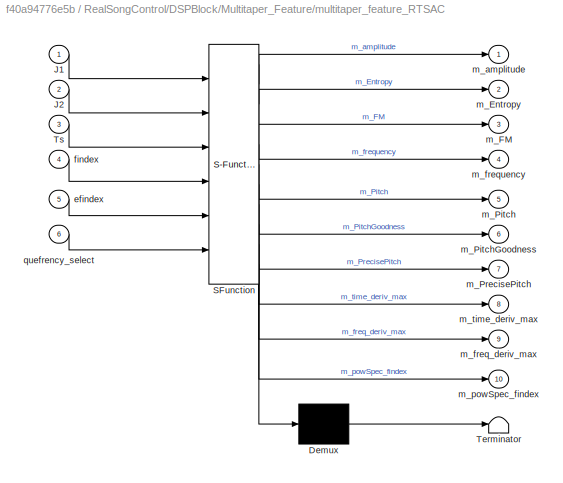
BLOCK [SubSystem] RealSongControl/DSPBlock/Multitaper_Feature/multitaper_feature_RTSAC
  ErrorFcn = Stateflow.Translate.translate
  FunctionWithSeparateData = off
  MaskHideContents = off
  MinAlgLoopOccurrences = off
  Opaque = off
  PermitHierarchicalResolution = ExplicitOnly
  Ports = [6, 10]
  PropExecContextOutsideSubsystem = off
  RTWSystemCode = Auto
  RequestExecContextInheritance = off
  SFBlockType = MATLAB Function
  TreatAsAtomicUnit = on
BLOCK [Demux] RealSongControl/DSPBlock/Multitaper_Feature/multitaper_feature_RTSAC/ Demux 
  Outputs = 1
  Ports = [1, 1]
BLOCK [S-Function] RealSongControl/DSPBlock/Multitaper_Feature/multitaper_feature_RTSAC/ SFunction 
  EnableBusSupport = on
  FunctionName = sf_sfun
  PortCounts = [6 11]
  Ports = [6, 11]
  Tag = Stateflow S-Function test_PCI6070_20130416_MIConly 2
BLOCK [Terminator] RealSongControl/DSPBlock/Multitaper_Feature/multitaper_feature_RTSAC/ Terminator 
BLOCK [Inport] RealSongControl/DSPBlock/Multitaper_Feature/multitaper_feature_RTSAC/J1
  IconDisplay = Port number
BLOCK [Inport] RealSongControl/DSPBlock/Multitaper_Feature/multitaper_feature_RTSAC/J2
  IconDisplay = Port number
  Port = 2
BLOCK [Inport] RealSongControl/DSPBlock/Multitaper_Feature/multitaper_feature_RTSAC/Ts
  IconDisplay = Port number
  Port = 3
BLOCK [Inport] RealSongControl/DSPBlock/Multitaper_Feature/multitaper_feature_RTSAC/efindex
  IconDisplay = Port number
  Port = 5
BLOCK [Inport] RealSongControl/DSPBlock/Multitaper_Feature/multitaper_feature_RTSAC/findex
  IconDisplay = Port number
  Port = 4
BLOCK [Outport] RealSongControl/DSPBlock/Multitaper_Feature/multitaper_feature_RTSAC/m_Entropy
  IconDisplay = Port number
  Port = 2
BLOCK [Outport] RealSongControl/DSPBlock/Multitaper_Feature/multitaper_feature_RTSAC/m_FM
  IconDisplay = Port number
  Port = 3
BLOCK [Outport] RealSongControl/DSPBlock/Multitaper_Feature/multitaper_feature_RTSAC/m_Pitch
  IconDisplay = Port number
  Port = 5
BLOCK [Outport] RealSongControl/DSPBlock/Multitaper_Feature/multitaper_feature_RTSAC/m_PitchGoodness
  IconDisplay = Port number
  Port = 6
BLOCK [Outport] RealSongControl/DSPBlock/Multitaper_Feature/multitaper_feature_RTSAC/m_PrecisePitch
  IconDisplay = Port number
  Port = 7
BLOCK [Outport] RealSongControl/DSPBlock/Multitaper_Feature/multitaper_feature_RTSAC/m_amplitude
  IconDisplay = Port number
BLOCK [Outport] RealSongControl/DSPBlock/Multitaper_Feature/multitaper_feature_RTSAC/m_freq_deriv_max
  IconDisplay = Port number
  Port = 9
BLOCK [Outport] RealSongControl/DSPBlock/Multitaper_Feature/multitaper_feature_RTSAC/m_frequency
  IconDisplay = Port number
  Port = 4
BLOCK [Outport] RealSongControl/DSPBlock/Multitaper_Feature/multitaper_feature_RTSAC/m_powSpec_findex
  IconDisplay = Port number
  Port = 10
BLOCK [Outport] RealSongControl/DSPBlock/Multitaper_Feature/multitaper_feature_RTSAC/m_time_deriv_max
  IconDisplay = Port number
  Port = 8
BLOCK [Inport] RealSongControl/DSPBlock/Multitaper_Feature/multitaper_feature_RTSAC/quefrency_select
  IconDisplay = Port number
  Port = 6
BLOCK [Outport] RealSongControl/DSPBlock/Multitaper_Feature/precisepitch
  IconDisplay = Port number
  Port = 3
BLOCK [Mux] RealSongControl/DSPBlock/Mux
  DisplayOption = bar
  Inputs = 10
  Ports = [10, 1]
BLOCK [Gain] RealSongControl/DSPBlock/PredictorGain
  OutDataTypeStr = Inherit: Inherit via internal rule
  ParamDataTypeStr = Inherit: Inherit via internal rule
  SaturateOnIntegerOverflow = off
BLOCK [RateTransition] RealSongControl/DSPBlock/Rate Transition1
BLOCK [SubSystem] RealSongControl/DSPBlock/STFFT
  FunctionWithSeparateData = off
  MaskHideContents = off
  MinAlgLoopOccurrences = off
  Opaque = off
  Ports = [1, 3]
  PropExecContextOutsideSubsystem = off
  RTWSystemCode = Auto
  RequestExecContextInheritance = off
BLOCK [Reference] RealSongControl/DSPBlock/STFFT/Analysis Window  REF=dspsigops/Window
Function
  LockScale = off
  N = 64
  OptParams = on
  Ports = [1, 1]
  RowConvenienceOn = on
  Rs = 50
  SourceBlock = dspsigops/Window\nFunction
  SourceType = Window Function
  UserParams = {1}
  UserWindow = dpss_return
  additionalParams = off
  allowOverrides = on
  beta = 10
  dataType = double
  firstCoeffFracLength = 15
  firstCoeffMode = Same word length as input
  firstCoeffWordLength = 16
  fracBitsMode = Best precision
  isSigned = on
  numFracBits = 15
  numSidelobes = 4
  outputFracLength = 15
  outputMode = Same as input
  outputWordLength = 16
  overflowMode = off
  prodOutputFracLength = 15
  prodOutputMode = Inherit via internal rule
  prodOutputWordLength = 16
  roundingMode = Floor
  sampmode = Continuous
  samptime = 1
  sidelobeLevel = -30
  udDataType = sfix(16)
  winmode = Apply window to input
  winsamp = Periodic
  wintype = User defined
  wordLen = 16
BLOCK [Reference] RealSongControl/DSPBlock/STFFT/Analysis Window1  REF=dspsigops/Window
Function
  LockScale = off
  N = 64
  OptParams = on
  Ports = [1, 1]
  RowConvenienceOn = on
  Rs = 50
  SourceBlock = dspsigops/Window\nFunction
  SourceType = Window Function
  UserParams = {2}
  UserWindow = dpss_return
  additionalParams = off
  allowOverrides = on
  beta = 10
  dataType = double
  firstCoeffFracLength = 15
  firstCoeffMode = Same word length as input
  firstCoeffWordLength = 16
  fracBitsMode = Best precision
  isSigned = on
  numFracBits = 15
  numSidelobes = 4
  outputFracLength = 15
  outputMode = Same as input
  outputWordLength = 16
  overflowMode = off
  prodOutputFracLength = 15
  prodOutputMode = Inherit via internal rule
  prodOutputWordLength = 16
  roundingMode = Floor
  sampmode = Continuous
  samptime = 1
  sidelobeLevel = -30
  udDataType = sfix(16)
  winmode = Apply window to input
  winsamp = Periodic
  wintype = User defined
  wordLen = 16
BLOCK [Outport] RealSongControl/DSPBlock/STFFT/Buffer
  IconDisplay = Port number
  Port = 3
BLOCK [Reference] RealSongControl/DSPBlock/STFFT/FFT1  REF=dspxfrm3/FFT
  BitRevOrder = off
  CompMethod = Table lookup
  FFTImplementation = Auto
  FFTLength = 1024
  InheritFFTLength = on
  LockScale = off
  Ports = [1, 1]
  RowConvenienceOn = on
  SkipNorm = off
  SourceBlock = dspxfrm3/FFT
  SourceType = FFT
  TableOpt = NEW
  TableOptActive = Speed
  accumDataTypeStr = Inherit: Same as product output
  accumFracLength = 30
  accumLastDataTypeStr = Inherit: Same as product output
  accumMode = Same as product output
  accumWordLength = 32
  additionalParams = off
  allowOverrides = on
  firstCoeffDataTypeStr = fixdt(1,16)
  firstCoeffFracLength = 15
  firstCoeffLastDataTypeStr = fixdt(1,16)
  firstCoeffMode = Specify word length
  firstCoeffWordLength = 16
  outputDataTypeStr = Inherit: Same as input
  outputFracLength = 15
  outputLastDataTypeStr = Inherit: Same as input
  outputMax = []
  outputMin = []
  outputMode = Same as input
  outputWordLength = 16
  overflowMode = off
  prodOutputDataTypeStr = Inherit: Same as input
  prodOutputFracLength = 30
  prodOutputLastDataTypeStr = Inherit: Same as input
  prodOutputMode = Same as input
  prodOutputWordLength = 32
  roundingMode = Floor
BLOCK [Reference] RealSongControl/DSPBlock/STFFT/FFT2  REF=dspxfrm3/FFT
  BitRevOrder = off
  CompMethod = Table lookup
  FFTImplementation = Auto
  FFTLength = 1024
  InheritFFTLength = on
  LockScale = off
  Ports = [1, 1]
  RowConvenienceOn = on
  SkipNorm = off
  SourceBlock = dspxfrm3/FFT
  SourceType = FFT
  TableOpt = NEW
  TableOptActive = Speed
  accumDataTypeStr = Inherit: Same as product output
  accumFracLength = 30
  accumLastDataTypeStr = Inherit: Same as product output
  accumMode = Same as product output
  accumWordLength = 32
  additionalParams = off
  allowOverrides = on
  firstCoeffDataTypeStr = fixdt(1,16)
  firstCoeffFracLength = 15
  firstCoeffLastDataTypeStr = fixdt(1,16)
  firstCoeffMode = Specify word length
  firstCoeffWordLength = 16
  outputDataTypeStr = Inherit: Same as input
  outputFracLength = 15
  outputLastDataTypeStr = Inherit: Same as input
  outputMax = []
  outputMin = []
  outputMode = Same as input
  outputWordLength = 16
  overflowMode = off
  prodOutputDataTypeStr = Inherit: Same as input
  prodOutputFracLength = 30
  prodOutputLastDataTypeStr = Inherit: Same as input
  prodOutputMode = Same as input
  prodOutputWordLength = 32
  roundingMode = Floor
BLOCK [Inport] RealSongControl/DSPBlock/STFFT/In1
  IconDisplay = Port number
BLOCK [Outport] RealSongControl/DSPBlock/STFFT/Out1
  IconDisplay = Port number
BLOCK [Outport] RealSongControl/DSPBlock/STFFT/Out2
  IconDisplay = Port number
  Port = 2
BLOCK [Buffer] RealSongControl/DSPBlock/STFFT/Overlap Buffer
  N = winLen
  TreatMby1Signals = One channel
  V = winLen-ana_hopSize
BLOCK [Reference] RealSongControl/DSPBlock/STFFT/Pad  REF=dspsigops/Pad
  LockScale = off
  Ports = [1, 1]
  SourceBlock = dspsigops/Pad
  SourceType = Pad
  accumFracLength = 0
  accumMode = Same as input
  accumWordLength = 0
  dimsToPad = 1
  isVarDimsMode = off
  numOutCols = 1
  numOutRows = 1024
  outSize = 1
  outSizeMode = User-specified
  outputFracLength = 0
  outputMode = Same as input
  outputWordLength = 0
  overflowMode = off
  padAlong = Columns
  padBeginning = 0
  padEnd = 0
  padNumOutColsSpecMethod = User-specified
  padNumOutRowsSpecMethod = User-specified
  padSigAt = Beginning and end
  padVal = 0
  roundingMode = Floor
  spec = Output size
  truncOrWrapMode = Truncate
  trunc_flag = None
  valSrc = Specify via dialog
  wrap_flag = None
BLOCK [Reference] RealSongControl/DSPBlock/STFFT/Pad1  REF=dspsigops/Pad
  LockScale = off
  Ports = [1, 1]
  SourceBlock = dspsigops/Pad
  SourceType = Pad
  accumFracLength = 0
  accumMode = Same as input
  accumWordLength = 0
  dimsToPad = 1
  isVarDimsMode = off
  numOutCols = 1
  numOutRows = 1024
  outSize = 1
  outSizeMode = User-specified
  outputFracLength = 0
  outputMode = Same as input
  outputWordLength = 0
  overflowMode = off
  padAlong = Columns
  padBeginning = 0
  padEnd = 0
  padNumOutColsSpecMethod = User-specified
  padNumOutRowsSpecMethod = User-specified
  padSigAt = Beginning and end
  padVal = 0
  roundingMode = Floor
  spec = Output size
  truncOrWrapMode = Truncate
  trunc_flag = None
  valSrc = Specify via dialog
  wrap_flag = None
BLOCK [Gain] RealSongControl/DSPBlock/SoundOFFCntGain
  OutDataTypeStr = Inherit: Inherit via internal rule
  ParamDataTypeStr = Inherit: Inherit via internal rule
  SaturateOnIntegerOverflow = off
BLOCK [Gain] RealSongControl/DSPBlock/SoundONCntGain
  OutDataTypeStr = Inherit: Inherit via internal rule
  ParamDataTypeStr = Inherit: Inherit via internal rule
  SaturateOnIntegerOverflow = off
BLOCK [Outport] RealSongControl/DSPBlock/SoundOn
  IconDisplay = Port number
  Port = 2
BLOCK [SubSystem] RealSongControl/DSPBlock/SoundOnOffCounter
  FunctionWithSeparateData = off
  MaskHideContents = off
  MinAlgLoopOccurrences = off
  Opaque = off
  Ports = [1, 2]
  PropExecContextOutsideSubsystem = off
  RTWSystemCode = Auto
  RequestExecContextInheritance = off
BLOCK [Logic] RealSongControl/DSPBlock/SoundOnOffCounter/Logical Operator2
  AllPortsSameDT = off
  Operator = NOT
  OutDataTypeStr = boolean
  Ports = [1, 1]
BLOCK [Outport] RealSongControl/DSPBlock/SoundOnOffCounter/SoundOFFCnt
  IconDisplay = Port number
  Port = 2
BLOCK [Outport] RealSongControl/DSPBlock/SoundOnOffCounter/SoundONCnt
  IconDisplay = Port number
BLOCK [SubSystem] RealSongControl/DSPBlock/SoundOnOffCounter/SoundOffCounter
  FunctionWithSeparateData = off
  MaskHideContents = off
  MinAlgLoopOccurrences = off
  Opaque = off
  Ports = [1, 1]
  PropExecContextOutsideSubsystem = off
  RTWSystemCode = Auto
  RequestExecContextInheritance = off
BLOCK [SubSystem] RealSongControl/DSPBlock/SoundOnOffCounter/SoundOffCounter/Counter
  FunctionWithSeparateData = off
  MaskHideContents = off
  MinAlgLoopOccurrences = off
  Opaque = off
  Ports = [1, 1, 1]
  PropExecContextOutsideSubsystem = off
  RTWSystemCode = Auto
  RequestExecContextInheritance = off
  TreatAsAtomicUnit = on
BLOCK [EnablePort] RealSongControl/DSPBlock/SoundOnOffCounter/SoundOffCounter/Counter/Enable
  Ports = []
  StatesWhenEnabling = reset
BLOCK [Inport] RealSongControl/DSPBlock/SoundOnOffCounter/SoundOffCounter/Counter/In1
  IconDisplay = Port number
BLOCK [Memory] RealSongControl/DSPBlock/SoundOnOffCounter/SoundOffCounter/Counter/Memory1
  InheritSampleTime = on
BLOCK [Outport] RealSongControl/DSPBlock/SoundOnOffCounter/SoundOffCounter/Counter/Out1
  IconDisplay = Port number
  InitialOutput = 0
  OutputWhenDisabled = reset
BLOCK [Sum] RealSongControl/DSPBlock/SoundOnOffCounter/SoundOffCounter/Counter/Sum1
  IconShape = round
  InputSameDT = off
  Inputs = |++
  OutDataTypeStr = Inherit: Inherit via internal rule
  Ports = [2, 1]
BLOCK [DataTypeConversion] RealSongControl/DSPBlock/SoundOnOffCounter/SoundOffCounter/Data Type Conversion1
  OutDataTypeStr = double
  SaturateOnIntegerOverflow = off
BLOCK [Inport] RealSongControl/DSPBlock/SoundOnOffCounter/SoundOffCounter/LogicalInput
  IconDisplay = Port number
BLOCK [Outport] RealSongControl/DSPBlock/SoundOnOffCounter/SoundOffCounter/count
  IconDisplay = Port number
BLOCK [Inport] RealSongControl/DSPBlock/SoundOnOffCounter/SoundOn
  IconDisplay = Port number
BLOCK [SubSystem] RealSongControl/DSPBlock/SoundOnOffCounter/SoundOnCounter
  FunctionWithSeparateData = off
  MaskHideContents = off
  MinAlgLoopOccurrences = off
  Opaque = off
  Ports = [1, 1]
  PropExecContextOutsideSubsystem = off
  RTWSystemCode = Auto
  RequestExecContextInheritance = off
BLOCK [SubSystem] RealSongControl/DSPBlock/SoundOnOffCounter/SoundOnCounter/Counter
  FunctionWithSeparateData = off
  MaskHideContents = off
  MinAlgLoopOccurrences = off
  Opaque = off
  Ports = [1, 1, 1]
  PropExecContextOutsideSubsystem = off
  RTWSystemCode = Auto
  RequestExecContextInheritance = off
  TreatAsAtomicUnit = on
BLOCK [EnablePort] RealSongControl/DSPBlock/SoundOnOffCounter/SoundOnCounter/Counter/Enable
  Ports = []
  StatesWhenEnabling = reset
BLOCK [Inport] RealSongControl/DSPBlock/SoundOnOffCounter/SoundOnCounter/Counter/In1
  IconDisplay = Port number
BLOCK [Memory] RealSongControl/DSPBlock/SoundOnOffCounter/SoundOnCounter/Counter/Memory1
  InheritSampleTime = on
BLOCK [Outport] RealSongControl/DSPBlock/SoundOnOffCounter/SoundOnCounter/Counter/Out1
  IconDisplay = Port number
  InitialOutput = 0
  OutputWhenDisabled = reset
BLOCK [Sum] RealSongControl/DSPBlock/SoundOnOffCounter/SoundOnCounter/Counter/Sum1
  IconShape = round
  InputSameDT = off
  Inputs = |++
  OutDataTypeStr = Inherit: Inherit via internal rule
  Ports = [2, 1]
BLOCK [DataTypeConversion] RealSongControl/DSPBlock/SoundOnOffCounter/SoundOnCounter/Data Type Conversion1
  OutDataTypeStr = double
  SaturateOnIntegerOverflow = off
BLOCK [Inport] RealSongControl/DSPBlock/SoundOnOffCounter/SoundOnCounter/LogicalInput
  IconDisplay = Port number
BLOCK [Outport] RealSongControl/DSPBlock/SoundOnOffCounter/SoundOnCounter/count
  IconDisplay = Port number
BLOCK [SubSystem] RealSongControl/DSPBlock/StimFamilyTriggerButton
  FunctionWithSeparateData = off
  MaskHideContents = off
  MinAlgLoopOccurrences = off
  Opaque = off
  Ports = [0, 1]
  PropExecContextOutsideSubsystem = off
  RTWSystemCode = Auto
  RequestExecContextInheritance = off
BLOCK [Reference] RealSongControl/DSPBlock/StimFamilyTriggerButton/Detect Change  REF=simulink/Logic and Bit
Operations/Detect
Change
  InputProcessing = Inherited
  OutDataTypeStr = uint8
  Ports = [1, 1]
  SourceBlock = simulink/Logic and Bit\nOperations/Detect\nChange
  SourceType = Detect Change
  vinit = 1.0
BLOCK [Outport] RealSongControl/DSPBlock/StimFamilyTriggerButton/Out1
  IconDisplay = Port number
BLOCK [Constant] RealSongControl/DSPBlock/StimFamilyTriggerButton/TrigVal
  OutDataTypeStr = int8
  Value = 1.0
BLOCK [Outport] RealSongControl/DSPBlock/TargetSyllableDetection
  IconDisplay = Port number
BLOCK [Terminator] RealSongControl/DSPBlock/Terminator
BLOCK [Terminator] RealSongControl/DSPBlock/Terminator1
BLOCK [Terminator] RealSongControl/DSPBlock/Terminator11
BLOCK [Terminator] RealSongControl/DSPBlock/Terminator12
BLOCK [Terminator] RealSongControl/DSPBlock/Terminator13
BLOCK [Terminator] RealSongControl/DSPBlock/Terminator2
BLOCK [Terminator] RealSongControl/DSPBlock/Terminator3
BLOCK [Inport] RealSongControl/DSPBlock/TriggerButton
  IconDisplay = Port number
  Port = 3
BLOCK [Unbuffer] RealSongControl/DSPBlock/Unbuffer
  Ports = [1, 1]
  SampleBasedProcessing = Same as frame based
BLOCK [Concatenate] RealSongControl/DSPBlock/Vector Concatenate
  NumInputs = 4
  Ports = [4, 1]
BLOCK [SubSystem] RealSongControl/DSPBlock/YIN_FF_estim
  FunctionWithSeparateData = off
  MaskHideContents = off
  MinAlgLoopOccurrences = off
  Opaque = off
  Ports = [1, 1]
  PropExecContextOutsideSubsystem = off
  RTWSystemCode = Auto
  RequestExecContextInheritance = off
BLOCK [Constant] RealSongControl/DSPBlock/YIN_FF_estim/DSP Constant1
  Value = W_index
  VectorParams1D = off
BLOCK [Constant] RealSongControl/DSPBlock/YIN_FF_estim/DSP Constant2
  Value = SampRate
  VectorParams1D = off
BLOCK [Constant] RealSongControl/DSPBlock/YIN_FF_estim/DSP Constant3
  Value = lag_index
  VectorParams1D = off
BLOCK [Outport] RealSongControl/DSPBlock/YIN_FF_estim/FundamentalFrequency
  IconDisplay = Port number
BLOCK [Inport] RealSongControl/DSPBlock/YIN_FF_estim/In1
  IconDisplay = Port number
BLOCK [SubSystem] RealSongControl/DSPBlock/YIN_FF_estim/YIN_FF
  ErrorFcn = Stateflow.Translate.translate
  FunctionWithSeparateData = off
  MaskHideContents = off
  MinAlgLoopOccurrences = off
  Opaque = off
  PermitHierarchicalResolution = ExplicitOnly
  Ports = [4, 1]
  PropExecContextOutsideSubsystem = off
  RTWSystemCode = Auto
  RequestExecContextInheritance = off
  SFBlockType = MATLAB Function
  TreatAsAtomicUnit = on
BLOCK [Demux] RealSongControl/DSPBlock/YIN_FF_estim/YIN_FF/ Demux 
  Outputs = 1
  Ports = [1, 1]
BLOCK [S-Function] RealSongControl/DSPBlock/YIN_FF_estim/YIN_FF/ SFunction 
  EnableBusSupport = on
  FunctionName = sf_sfun
  PortCounts = [4 2]
  Ports = [4, 2]
  Tag = Stateflow S-Function test_PCI6070_20130416_MIConly 17
BLOCK [Terminator] RealSongControl/DSPBlock/YIN_FF_estim/YIN_FF/ Terminator 
BLOCK [Outport] RealSongControl/DSPBlock/YIN_FF_estim/YIN_FF/F0
  IconDisplay = Port number
BLOCK [Inport] RealSongControl/DSPBlock/YIN_FF_estim/YIN_FF/Fs
  IconDisplay = Port number
  Port = 2
BLOCK [Inport] RealSongControl/DSPBlock/YIN_FF_estim/YIN_FF/W_index
  IconDisplay = Port number
  Port = 3
BLOCK [Inport] RealSongControl/DSPBlock/YIN_FF_estim/YIN_FF/lag_index
  IconDisplay = Port number
  Port = 4
BLOCK [Inport] RealSongControl/DSPBlock/YIN_FF_estim/YIN_FF/x
  IconDisplay = Port number
BLOCK [Constant] RealSongControl/DSPBlock/amp_thresh
  Value = amp_thresh
BLOCK [Constant] RealSongControl/DSPBlock/init_vector
  Value = [-1]
BLOCK [Constant] RealSongControl/DSPBlock/zerovector
  Value = [zeros(ana_hopSize/2-16,1)]
BLOCK [Inport] RealSongControl/E1
  IconDisplay = Port number
  Port = 2
BLOCK [Inport] RealSongControl/E2
  IconDisplay = Port number
  Port = 3
BLOCK [Gain] RealSongControl/Electrode1Gain
  OutDataTypeStr = Inherit: Inherit via internal rule
  ParamDataTypeStr = Inherit: Inherit via internal rule
  SaturateOnIntegerOverflow = off
BLOCK [Reference] RealSongControl/Filter Realization Wizard  REF=dsparch4/Filter
Realization
Wizard
  Ports = []
  SourceBlock = dsparch4/Filter\nRealization\nWizard
  SourceType = Filter Realization Wizard
BLOCK [Gain] RealSongControl/ImOutGain
  OutDataTypeStr = Inherit: Inherit via internal rule
  ParamDataTypeStr = Inherit: Inherit via internal rule
  SaturateOnIntegerOverflow = off
BLOCK [Gain] RealSongControl/MICGain
  OutDataTypeStr = Inherit: Inherit via internal rule
  ParamDataTypeStr = Inherit: Inherit via internal rule
  SaturateOnIntegerOverflow = off
BLOCK [Inport] RealSongControl/MICin
  IconDisplay = Port number
BLOCK [Gain] RealSongControl/PulseStimOutputGain
  OutDataTypeStr = Inherit: Inherit via internal rule
  ParamDataTypeStr = Inherit: Inherit via internal rule
  SaturateOnIntegerOverflow = off
BLOCK [RateTransition] RealSongControl/Rate Transition
BLOCK [Gain] RealSongControl/SoundONGain
  OutDataTypeStr = Inherit: Inherit via internal rule
  ParamDataTypeStr = Inherit: Inherit via internal rule
  SaturateOnIntegerOverflow = off
BLOCK [Outport] RealSongControl/SpeakerOut
  IconDisplay = Port number
BLOCK [Gain] RealSongControl/SpeakerOutputGain
  OutDataTypeStr = Inherit: Inherit via internal rule
  ParamDataTypeStr = Inherit: Inherit via internal rule
  SaturateOnIntegerOverflow = off
BLOCK [Gain] RealSongControl/SpeakerOutputREC
  OutDataTypeStr = Inherit: Inherit via internal rule
  ParamDataTypeStr = Inherit: Inherit via internal rule
  SaturateOnIntegerOverflow = off
BLOCK [Outport] RealSongControl/StimOut
  IconDisplay = Port number
  Port = 2
BLOCK [Terminator] RealSongControl/Terminator1
BLOCK [Terminator] RealSongControl/Terminator14
BLOCK [Terminator] RealSongControl/Terminator2
BLOCK [Terminator] RealSongControl/Terminator5
BLOCK [Terminator] RealSongControl/Terminator7
BLOCK [Terminator] RealSongControl/Terminator9
BLOCK [SubSystem] RealSongControl/TriggerButton
  FunctionWithSeparateData = off
  MaskHideContents = off
  MinAlgLoopOccurrences = off
  Opaque = off
  Ports = [0, 1]
  PropExecContextOutsideSubsystem = off
  RTWSystemCode = Auto
  RequestExecContextInheritance = off
BLOCK [Reference] RealSongControl/TriggerButton/Detect Change  REF=simulink/Logic and Bit
Operations/Detect
Change
  InputProcessing = Inherited
  OutDataTypeStr = uint8
  Ports = [1, 1]
  SourceBlock = simulink/Logic and Bit\nOperations/Detect\nChange
  SourceType = Detect Change
  vinit = 1.0
BLOCK [Outport] RealSongControl/TriggerButton/Out1
  IconDisplay = Port number
BLOCK [Constant] RealSongControl/TriggerButton/TrigVal
  OutDataTypeStr = int8
  Value = 1.0
BLOCK [Gain] RealSongControl/TriggerCntGain
  OutDataTypeStr = Inherit: Inherit via internal rule
  ParamDataTypeStr = Inherit: Inherit via internal rule
  SaturateOnIntegerOverflow = off
BLOCK [SubSystem] RealSongControl/TriggerCounter
  FunctionWithSeparateData = off
  MaskHideContents = off
  MinAlgLoopOccurrences = off
  Opaque = off
  Ports = [1, 1]
  PropExecContextOutsideSubsystem = off
  RTWSystemCode = Auto
  RequestExecContextInheritance = off
BLOCK [SubSystem] RealSongControl/TriggerCounter/Counter
  FunctionWithSeparateData = off
  MaskHideContents = off
  MinAlgLoopOccurrences = off
  Opaque = off
  Ports = [1, 1, 1]
  PropExecContextOutsideSubsystem = off
  RTWSystemCode = Auto
  RequestExecContextInheritance = off
  TreatAsAtomicUnit = on
BLOCK [EnablePort] RealSongControl/TriggerCounter/Counter/Enable
  Ports = []
BLOCK [Inport] RealSongControl/TriggerCounter/Counter/In1
  IconDisplay = Port number
BLOCK [Memory] RealSongControl/TriggerCounter/Counter/Memory1
  InheritSampleTime = on
BLOCK [Outport] RealSongControl/TriggerCounter/Counter/Out1
  IconDisplay = Port number
  InitialOutput = 0
BLOCK [Sum] RealSongControl/TriggerCounter/Counter/Sum1
  IconShape = round
  InputSameDT = off
  Inputs = |++
  OutDataTypeStr = Inherit: Inherit via internal rule
  Ports = [2, 1]
BLOCK [DataTypeConversion] RealSongControl/TriggerCounter/Data Type Conversion1
  OutDataTypeStr = uint8
  SaturateOnIntegerOverflow = off
BLOCK [Inport] RealSongControl/TriggerCounter/LogicalInput
  IconDisplay = Port number
BLOCK [Outport] RealSongControl/TriggerCounter/count
  IconDisplay = Port number
BLOCK [Gain] RealSongControl/TriggeredTTLGain
  OutDataTypeStr = Inherit: Inherit via internal rule
  ParamDataTypeStr = Inherit: Inherit via internal rule
  SaturateOnIntegerOverflow = off
BLOCK [SubSystem] RealSongControl/Triggered_1ms_TTL
  FunctionWithSeparateData = off
  MaskHideContents = off
  MinAlgLoopOccurrences = off
  Opaque = off
  Ports = [1, 2]
  PropExecContextOutsideSubsystem = off
  RTWSystemCode = Auto
  RequestExecContextInheritance = off
BLOCK [DataTypeConversion] RealSongControl/Triggered_1ms_TTL/Data Type Conversion
  OutDataTypeStr = double
  RndMeth = Floor
  SaturateOnIntegerOverflow = off
BLOCK [Constant] RealSongControl/Triggered_1ms_TTL/IPI
  Value = ipi
BLOCK [SubSystem] RealSongControl/Triggered_1ms_TTL/Triggered_dynamic_pulse
  ErrorFcn = Stateflow.Translate.translate
  FunctionWithSeparateData = off
  MaskHideContents = off
  MinAlgLoopOccurrences = off
  Opaque = off
  PermitHierarchicalResolution = ExplicitOnly
  Ports = [6, 1]
  PropExecContextOutsideSubsystem = off
  RTWSystemCode = Auto
  RequestExecContextInheritance = off
  SFBlockType = MATLAB Function
  TreatAsAtomicUnit = on
BLOCK [Demux] RealSongControl/Triggered_1ms_TTL/Triggered_dynamic_pulse/ Demux 
  Outputs = 1
  Ports = [1, 1]
BLOCK [S-Function] RealSongControl/Triggered_1ms_TTL/Triggered_dynamic_pulse/ SFunction 
  EnableBusSupport = on
  FunctionName = sf_sfun
  PortCounts = [6 2]
  Ports = [6, 2]
  Tag = Stateflow S-Function test_PCI6070_20130416_MIConly 12
BLOCK [Terminator] RealSongControl/Triggered_1ms_TTL/Triggered_dynamic_pulse/ Terminator 
BLOCK [Inport] RealSongControl/Triggered_1ms_TTL/Triggered_dynamic_pulse/burst_dur
  IconDisplay = Port number
  Port = 5
BLOCK [Inport] RealSongControl/Triggered_1ms_TTL/Triggered_dynamic_pulse/delay
  IconDisplay = Port number
  Port = 2
BLOCK [Inport] RealSongControl/Triggered_1ms_TTL/Triggered_dynamic_pulse/inter_pulse_interval
  IconDisplay = Port number
  Port = 4
BLOCK [Outport] RealSongControl/Triggered_1ms_TTL/Triggered_dynamic_pulse/out
  IconDisplay = Port number
BLOCK [Inport] RealSongControl/Triggered_1ms_TTL/Triggered_dynamic_pulse/pulse_dur
  IconDisplay = Port number
  Port = 3
BLOCK [Inport] RealSongControl/Triggered_1ms_TTL/Triggered_dynamic_pulse/ref
  IconDisplay = Port number
  Port = 6
BLOCK [Inport] RealSongControl/Triggered_1ms_TTL/Triggered_dynamic_pulse/trig
  IconDisplay = Port number
BLOCK [Constant] RealSongControl/Triggered_1ms_TTL/burst_dur
  Value = burst_dur
BLOCK [Constant] RealSongControl/Triggered_1ms_TTL/delay
  Value = delay
BLOCK [Gain] RealSongControl/Triggered_1ms_TTL/gain
  Gain = amp
  OutDataTypeStr = Inherit: Inherit via internal rule
  ParamDataTypeStr = Inherit: Inherit via internal rule
  SaturateOnIntegerOverflow = off
BLOCK [Outport] RealSongControl/Triggered_1ms_TTL/output1
  IconDisplay = Port number
BLOCK [Constant] RealSongControl/Triggered_1ms_TTL/pulse_dur
  Value = pulse_dur
BLOCK [Constant] RealSongControl/Triggered_1ms_TTL/ref
  Value = ref
BLOCK [Inport] RealSongControl/Triggered_1ms_TTL/trig
  IconDisplay = Port number
BLOCK [Outport] RealSongControl/Triggered_1ms_TTL/trig_out
  IconDisplay = Port number
  Port = 2
BLOCK [SubSystem] RealSongControl/triggered_dynamic_Pulse
  FunctionWithSeparateData = off
  MaskHideContents = off
  MinAlgLoopOccurrences = off
  Opaque = off
  Ports = [1, 2]
  PropExecContextOutsideSubsystem = off
  RTWSystemCode = Auto
  RequestExecContextInheritance = off
BLOCK [DataTypeConversion] RealSongControl/triggered_dynamic_Pulse/Data Type Conversion
  OutDataTypeStr = double
  RndMeth = Floor
  SaturateOnIntegerOverflow = off
BLOCK [Constant] RealSongControl/triggered_dynamic_Pulse/IPI
  Value = ipi
BLOCK [SubSystem] RealSongControl/triggered_dynamic_Pulse/Triggered_dynamic_pulse
  ErrorFcn = Stateflow.Translate.translate
  FunctionWithSeparateData = off
  MaskHideContents = off
  MinAlgLoopOccurrences = off
  Opaque = off
  PermitHierarchicalResolution = ExplicitOnly
  Ports = [6, 1]
  PropExecContextOutsideSubsystem = off
  RTWSystemCode = Auto
  RequestExecContextInheritance = off
  SFBlockType = MATLAB Function
  TreatAsAtomicUnit = on
BLOCK [Demux] RealSongControl/triggered_dynamic_Pulse/Triggered_dynamic_pulse/ Demux 
  Outputs = 1
  Ports = [1, 1]
BLOCK [S-Function] RealSongControl/triggered_dynamic_Pulse/Triggered_dynamic_pulse/ SFunction 
  EnableBusSupport = on
  FunctionName = sf_sfun
  PortCounts = [6 2]
  Ports = [6, 2]
  Tag = Stateflow S-Function test_PCI6070_20130416_MIConly 11
BLOCK [Terminator] RealSongControl/triggered_dynamic_Pulse/Triggered_dynamic_pulse/ Terminator 
BLOCK [Inport] RealSongControl/triggered_dynamic_Pulse/Triggered_dynamic_pulse/burst_dur
  IconDisplay = Port number
  Port = 5
BLOCK [Inport] RealSongControl/triggered_dynamic_Pulse/Triggered_dynamic_pulse/delay
  IconDisplay = Port number
  Port = 2
BLOCK [Inport] RealSongControl/triggered_dynamic_Pulse/Triggered_dynamic_pulse/inter_pulse_interval
  IconDisplay = Port number
  Port = 4
BLOCK [Outport] RealSongControl/triggered_dynamic_Pulse/Triggered_dynamic_pulse/out
  IconDisplay = Port number
BLOCK [Inport] RealSongControl/triggered_dynamic_Pulse/Triggered_dynamic_pulse/pulse_dur
  IconDisplay = Port number
  Port = 3
BLOCK [Inport] RealSongControl/triggered_dynamic_Pulse/Triggered_dynamic_pulse/ref
  IconDisplay = Port number
  Port = 6
BLOCK [Inport] RealSongControl/triggered_dynamic_Pulse/Triggered_dynamic_pulse/trig
  IconDisplay = Port number
BLOCK [Constant] RealSongControl/triggered_dynamic_Pulse/burst_dur
  Value = burst_dur
BLOCK [Constant] RealSongControl/triggered_dynamic_Pulse/delay
  Value = delay
BLOCK [Gain] RealSongControl/triggered_dynamic_Pulse/gain
  Gain = amp
  OutDataTypeStr = Inherit: Inherit via internal rule
  ParamDataTypeStr = Inherit: Inherit via internal rule
  SaturateOnIntegerOverflow = off
BLOCK [Outport] RealSongControl/triggered_dynamic_Pulse/output1
  IconDisplay = Port number
BLOCK [Constant] RealSongControl/triggered_dynamic_Pulse/pulse_dur
  Value = pulse_dur
BLOCK [Constant] RealSongControl/triggered_dynamic_Pulse/ref
  Value = ref
BLOCK [Inport] RealSongControl/triggered_dynamic_Pulse/trig
  IconDisplay = Port number
BLOCK [Outport] RealSongControl/triggered_dynamic_Pulse/trig_out
  IconDisplay = Port number
  Port = 2
BLOCK [SubSystem] RealSongControl/triggered_signal_source_Song
  FunctionWithSeparateData = off
  MaskHideContents = off
  MinAlgLoopOccurrences = off
  Opaque = off
  Ports = [1, 2]
  PropExecContextOutsideSubsystem = off
  RTWSystemCode = Auto
  RequestExecContextInheritance = off
BLOCK [Reference] RealSongControl/triggered_signal_source_Song/Compare To Constant  REF=simulink/Logic and Bit
Operations/Compare
To Constant
  OutDataTypeStr = uint8
  Ports = [1, 1]
  SourceBlock = simulink/Logic and Bit\nOperations/Compare\nTo Constant
  SourceType = Compare To Constant
  ZeroCross = on
  const = 1
  relop = ==
BLOCK [Constant] RealSongControl/triggered_signal_source_Song/Delay
  Value = 0
BLOCK [SubSystem] RealSongControl/triggered_signal_source_Song/Delayed_Triggered_Counter
  ErrorFcn = Stateflow.Translate.translate
  FunctionWithSeparateData = off
  MaskHideContents = off
  MinAlgLoopOccurrences = off
  Opaque = off
  PermitHierarchicalResolution = ExplicitOnly
  Ports = [6, 1]
  PropExecContextOutsideSubsystem = off
  RTWSystemCode = Auto
  RequestExecContextInheritance = off
  SFBlockType = MATLAB Function
  TreatAsAtomicUnit = on
BLOCK [Demux] RealSongControl/triggered_signal_source_Song/Delayed_Triggered_Counter/ Demux 
  Outputs = 1
  Ports = [1, 1]
BLOCK [S-Function] RealSongControl/triggered_signal_source_Song/Delayed_Triggered_Counter/ SFunction 
  EnableBusSupport = on
  FunctionName = sf_sfun
  PortCounts = [6 2]
  Ports = [6, 2]
  Tag = Stateflow S-Function test_PCI6070_20130416_MIConly 1
BLOCK [Terminator] RealSongControl/triggered_signal_source_Song/Delayed_Triggered_Counter/ Terminator 
BLOCK [Inport] RealSongControl/triggered_signal_source_Song/Delayed_Triggered_Counter/delay
  IconDisplay = Port number
  Port = 2
BLOCK [Inport] RealSongControl/triggered_signal_source_Song/Delayed_Triggered_Counter/end_cnt
  IconDisplay = Port number
  Port = 4
BLOCK [Inport] RealSongControl/triggered_signal_source_Song/Delayed_Triggered_Counter/max_cnt
  IconDisplay = Port number
  Port = 5
BLOCK [Outport] RealSongControl/triggered_signal_source_Song/Delayed_Triggered_Counter/out
  IconDisplay = Port number
BLOCK [Inport] RealSongControl/triggered_signal_source_Song/Delayed_Triggered_Counter/ref
  IconDisplay = Port number
  Port = 6
BLOCK [Inport] RealSongControl/triggered_signal_source_Song/Delayed_Triggered_Counter/start_cnt
  IconDisplay = Port number
  Port = 3
BLOCK [Inport] RealSongControl/triggered_signal_source_Song/Delayed_Triggered_Counter/trig
  IconDisplay = Port number
BLOCK [Constant] RealSongControl/triggered_signal_source_Song/End_Cnt
  Value = nn+1
BLOCK [Inport] RealSongControl/triggered_signal_source_Song/In1
  IconDisplay = Port number
BLOCK [Logic] RealSongControl/triggered_signal_source_Song/Logical Operator
  AllPortsSameDT = off
  OutDataTypeStr = boolean
  Ports = [2, 1]
BLOCK [Constant] RealSongControl/triggered_signal_source_Song/Max_count
  Value = nn+1
BLOCK [MultiPortSwitch] RealSongControl/triggered_signal_source_Song/Multiport Switch
  InputSameDT = off
  Inputs = 1
  Ports = [2, 1]
  SaturateOnIntegerOverflow = off
BLOCK [Constant] RealSongControl/triggered_signal_source_Song/On_Off
  Value = on_off
BLOCK [Outport] RealSongControl/triggered_signal_source_Song/Out1
  IconDisplay = Port number
BLOCK [Constant] RealSongControl/triggered_signal_source_Song/OutValues_and_zero
  Value = [OutValues(:);0]
BLOCK [Constant] RealSongControl/triggered_signal_source_Song/Ref
  Value = ref
BLOCK [SignalConversion] RealSongControl/triggered_signal_source_Song/SignalConversion
  ConversionOutput = Contiguous copy
BLOCK [Constant] RealSongControl/triggered_signal_source_Song/Start_Cnt
BLOCK [Outport] RealSongControl/triggered_signal_source_Song/Triggered
  IconDisplay = Port number
  Port = 2
ANNOTATION RealSongControl/DSPBlock: 0: init vector (-1) 1: amplitude 2: entropy 3: frequency 4: FM 5: pitch 6: pitchgoodness 7: precisepitch 8:MainSylGate(0/1) 9:Predictor (0/1) 10:ImOut 11: SpecCorr 12: mainsyl_detected 13: FundamentalFreq(YIN) 14: TriggerButton 15: StimFamilyTriggerButton 15-22(anal_hopf): zeros.
ANNOTATION RealSongControl/DSPBlock: 1: entropy 2: frequency 3: FM 4: pitch 5: pitchgoodness
ANNOTATION RealSongControl/DSPBlock: MainSylGate = {1: hit {0.5: Catch otherwise 0
ANNOTATION RealSongControl/DSPBlock/FeatureBasedTrigger: Basic idea is that, the features of main target syllable must be stable for the duration of "MainSylTrigThreshold" count. Default is 3, which is ~3ms. This is necessary, because some of non-target syllables features can be variable enough to satisfy the main-target criteria at least one time point.
ANNOTATION RealSongControl/DSPBlock/FeatureBasedTrigger: Believe the prediction only if prediction is stable (return 1 for a certain continuous time, presyl_cntmin), and also sustained to the end of syllable (max_presyl_cancel_ counter). This is because all the SVM teacher data is taken from the mean and variance of feature values at the end of the syllable.
ANNOTATION RealSongControl/DSPBlock/FeatureBasedTrigger: Calculate SVM prediction when on_signal is ON. If it's the syllable you look for, it returns 1, otherwise 0.
ANNOTATION RealSongControl/DSPBlock/FeatureBasedTrigger: Catch the detection signal with probability of catch_ratio
ANNOTATION RealSongControl/DSPBlock/FeatureBasedTrigger: Following 3 components are pre-syllable detection part
ANNOTATION RealSongControl/DSPBlock/FeatureBasedTrigger: MainSylGate = {1: hit {-0.5: Catch otherwise 0
ANNOTATION RealSongControl/DSPBlock/FeatureBasedTrigger: Make a temporal gating window to examine the target syllable features. If syllable features meet the trigger criteria, (such as, pitch > 500Hz), it returns 1. otherwise 0.
ANNOTATION RealSongControl/DSPBlock/FeatureBasedTrigger: Report # of syllable after detecting pre-trigger syllable
ANNOTATION RealSongControl/DSPBlock/FeatureBasedTrigger: calculate mean and variance of the features only when sound amplitude exceeds a certain threshold for a certain time longer than min_syllable. Gap shorter than min_gap is neglected and considered as a part of syllable
ANNOTATION RealSongControl/DSPBlock/FeatureBasedTrigger/amplitude triggered Iterative_mean_var: 1: entropy 2: FM 3: frequency 4: pitch 5: pitchgoodness
ANNOTATION RealSongControl/triggered_signal_source_Song: Delayed Triggered Counter: 1) When not triggered, output value is max_cnt. 2 )Once triggered, output remains max_cnt during delay count period, 3) then it starts to count from Start_Cnt to End_Cnt, 4) After End_Cnt, it jumps to Max_Cnt. You can use this to select song stimli uploaded as a single vector. For example, if OutValues_and_zero contains 3 song stimli, indexing from 1:1000,1001:2000, and ...<+195ch>
LINE Bus Creator1:1 -> Multiport Switch:3
LINE Bus Creator:1 -> Multiport Switch:2
LINE Demux1:1 -> PCI-6070E DA:1
LINE Demux1:2 -> PCI-6070E DA:2
NET Dummy1:1 -> Bus Creator1:1, Bus Creator1:2, RealSongControl:2, RealSongControl:3
LINE Multiport Switch:1 -> Demux1:1
LINE PCI-6070E AD:1 -> RealSongControl:1
LINE ProgramSelectionConstant:1 -> Multiport Switch:1
NET RealSongControl/400Hz_highpass_elliptic_4th:1 -> RealSongControl/DSPBlock:1, RealSongControl/MICGain:1
LINE RealSongControl/DSPBlock/BoutCounter/BoutDurCounter/CorrectDelayedPulseGenerator ForSyllableOn/DSP Constant2:1 -> RealSongControl/DSPBlock/BoutCounter/BoutDurCounter/CorrectDelayedPulseGenerator ForSyllableOn/Delayed TTL generator:2
LINE RealSongControl/DSPBlock/BoutCounter/BoutDurCounter/CorrectDelayedPulseGenerator ForSyllableOn/DSP Constant3:1 -> RealSongControl/DSPBlock/BoutCounter/BoutDurCounter/CorrectDelayedPulseGenerator ForSyllableOn/Delayed TTL generator:3
LINE RealSongControl/DSPBlock/BoutCounter/BoutDurCounter/CorrectDelayedPulseGenerator ForSyllableOn/Delayed TTL generator:1 -> RealSongControl/DSPBlock/BoutCounter/BoutDurCounter/CorrectDelayedPulseGenerator ForSyllableOn/TTL:1
LINE RealSongControl/DSPBlock/BoutCounter/BoutDurCounter/CorrectDelayedPulseGenerator ForSyllableOn/trig:1 -> RealSongControl/DSPBlock/BoutCounter/BoutDurCounter/CorrectDelayedPulseGenerator ForSyllableOn/Delayed TTL generator:1
LINE RealSongControl/DSPBlock/BoutCounter/BoutDurCounter/CorrectDelayedPulseGenerator ForSyllableOn:1 -> RealSongControl/DSPBlock/BoutCounter/BoutDurCounter/PreSoundOnCounter:1
LINE RealSongControl/DSPBlock/BoutCounter/BoutDurCounter/DSP Constant2:1 -> RealSongControl/DSPBlock/BoutCounter/BoutDurCounter/Relational Operator1:2
LINE RealSongControl/DSPBlock/BoutCounter/BoutDurCounter/Input:1 -> RealSongControl/DSPBlock/BoutCounter/BoutDurCounter/Relational Operator:1
LINE RealSongControl/DSPBlock/BoutCounter/BoutDurCounter/PreSoundOnCounter/Counter/In1:1 -> RealSongControl/DSPBlock/BoutCounter/BoutDurCounter/PreSoundOnCounter/Counter/Sum1:1
LINE RealSongControl/DSPBlock/BoutCounter/BoutDurCounter/PreSoundOnCounter/Counter/Memory1:1 -> RealSongControl/DSPBlock/BoutCounter/BoutDurCounter/PreSoundOnCounter/Counter/Sum1:2
NET RealSongControl/DSPBlock/BoutCounter/BoutDurCounter/PreSoundOnCounter/Counter/Sum1:1 -> RealSongControl/DSPBlock/BoutCounter/BoutDurCounter/PreSoundOnCounter/Counter/Memory1:1, RealSongControl/DSPBlock/BoutCounter/BoutDurCounter/PreSoundOnCounter/Counter/Out1:1
LINE RealSongControl/DSPBlock/BoutCounter/BoutDurCounter/PreSoundOnCounter/Counter:1 -> RealSongControl/DSPBlock/BoutCounter/BoutDurCounter/PreSoundOnCounter/count:1
LINE RealSongControl/DSPBlock/BoutCounter/BoutDurCounter/PreSoundOnCounter/Data Type Conversion1:1 -> RealSongControl/DSPBlock/BoutCounter/BoutDurCounter/PreSoundOnCounter/Counter:1
NET RealSongControl/DSPBlock/BoutCounter/BoutDurCounter/PreSoundOnCounter/LogicalInput:1 -> RealSongControl/DSPBlock/BoutCounter/BoutDurCounter/PreSoundOnCounter/Counter:enable, RealSongControl/DSPBlock/BoutCounter/BoutDurCounter/PreSoundOnCounter/Data Type Conversion1:1
LINE RealSongControl/DSPBlock/BoutCounter/BoutDurCounter/PreSoundOnCounter:1 -> RealSongControl/DSPBlock/BoutCounter/BoutDurCounter/Relational Operator1:1
NET RealSongControl/DSPBlock/BoutCounter/BoutDurCounter/Relational Operator1:1 -> RealSongControl/DSPBlock/BoutCounter/BoutDurCounter/SignalOn:1, RealSongControl/DSPBlock/BoutCounter/BoutDurCounter/SoundOnCounter:1
LINE RealSongControl/DSPBlock/BoutCounter/BoutDurCounter/Relational Operator:1 -> RealSongControl/DSPBlock/BoutCounter/BoutDurCounter/CorrectDelayedPulseGenerator ForSyllableOn:1
LINE RealSongControl/DSPBlock/BoutCounter/BoutDurCounter/SoundOnCounter/Counter/In1:1 -> RealSongControl/DSPBlock/BoutCounter/BoutDurCounter/SoundOnCounter/Counter/Sum1:1
LINE RealSongControl/DSPBlock/BoutCounter/BoutDurCounter/SoundOnCounter/Counter/Memory1:1 -> RealSongControl/DSPBlock/BoutCounter/BoutDurCounter/SoundOnCounter/Counter/Sum1:2
NET RealSongControl/DSPBlock/BoutCounter/BoutDurCounter/SoundOnCounter/Counter/Sum1:1 -> RealSongControl/DSPBlock/BoutCounter/BoutDurCounter/SoundOnCounter/Counter/Memory1:1, RealSongControl/DSPBlock/BoutCounter/BoutDurCounter/SoundOnCounter/Counter/Out1:1
LINE RealSongControl/DSPBlock/BoutCounter/BoutDurCounter/SoundOnCounter/Counter:1 -> RealSongControl/DSPBlock/BoutCounter/BoutDurCounter/SoundOnCounter/count:1
LINE RealSongControl/DSPBlock/BoutCounter/BoutDurCounter/SoundOnCounter/Data Type Conversion1:1 -> RealSongControl/DSPBlock/BoutCounter/BoutDurCounter/SoundOnCounter/Counter:1
NET RealSongControl/DSPBlock/BoutCounter/BoutDurCounter/SoundOnCounter/LogicalInput:1 -> RealSongControl/DSPBlock/BoutCounter/BoutDurCounter/SoundOnCounter/Counter:enable, RealSongControl/DSPBlock/BoutCounter/BoutDurCounter/SoundOnCounter/Data Type Conversion1:1
LINE RealSongControl/DSPBlock/BoutCounter/BoutDurCounter/SoundOnCounter:1 -> RealSongControl/DSPBlock/BoutCounter/BoutDurCounter/SignalOnCnt:1
LINE RealSongControl/DSPBlock/BoutCounter/BoutDurCounter/threshold:1 -> RealSongControl/DSPBlock/BoutCounter/BoutDurCounter/Relational Operator:2
LINE RealSongControl/DSPBlock/BoutCounter/BoutDurCounter:1 -> RealSongControl/DSPBlock/BoutCounter/BoutONGain:1
LINE RealSongControl/DSPBlock/BoutCounter/BoutDurCounter:2 -> RealSongControl/DSPBlock/BoutCounter/BoutONGAINSEC:1
LINE RealSongControl/DSPBlock/BoutCounter/BoutONGAINSEC:1 -> RealSongControl/DSPBlock/BoutCounter/IsBoutLongEnough:1
LINE RealSongControl/DSPBlock/BoutCounter/BoutONGain:1 -> RealSongControl/DSPBlock/BoutCounter/Terminator4:1
LINE RealSongControl/DSPBlock/BoutCounter/BoutThresh:1 -> RealSongControl/DSPBlock/BoutCounter/BoutDurCounter:2
LINE RealSongControl/DSPBlock/BoutCounter/CorrectDelayedPulseGenerator forRecordingEnableSignal/DSP Constant2:1 -> RealSongControl/DSPBlock/BoutCounter/CorrectDelayedPulseGenerator forRecordingEnableSignal/Delayed TTL generator:2
LINE RealSongControl/DSPBlock/BoutCounter/CorrectDelayedPulseGenerator forRecordingEnableSignal/DSP Constant3:1 -> RealSongControl/DSPBlock/BoutCounter/CorrectDelayedPulseGenerator forRecordingEnableSignal/Delayed TTL generator:3
LINE RealSongControl/DSPBlock/BoutCounter/CorrectDelayedPulseGenerator forRecordingEnableSignal/Delayed TTL generator:1 -> RealSongControl/DSPBlock/BoutCounter/CorrectDelayedPulseGenerator forRecordingEnableSignal/TTL:1
LINE RealSongControl/DSPBlock/BoutCounter/CorrectDelayedPulseGenerator forRecordingEnableSignal/trig:1 -> RealSongControl/DSPBlock/BoutCounter/CorrectDelayedPulseGenerator forRecordingEnableSignal/Delayed TTL generator:1
LINE RealSongControl/DSPBlock/BoutCounter/CorrectDelayedPulseGenerator forRecordingEnableSignal:1 -> RealSongControl/DSPBlock/BoutCounter/RECGain:1
LINE RealSongControl/DSPBlock/BoutCounter/In1:1 -> RealSongControl/DSPBlock/BoutCounter/BoutDurCounter:1
LINE RealSongControl/DSPBlock/BoutCounter/IsBoutLongEnough:1 -> RealSongControl/DSPBlock/BoutCounter/CorrectDelayedPulseGenerator forRecordingEnableSignal:1
LINE RealSongControl/DSPBlock/BoutCounter/MinBoutDur:1 -> RealSongControl/DSPBlock/BoutCounter/IsBoutLongEnough:2
LINE RealSongControl/DSPBlock/BoutCounter/RECGain:1 -> RealSongControl/DSPBlock/BoutCounter/Terminator8:1
LINE RealSongControl/DSPBlock/Bus to Vector:1 -> RealSongControl/DSPBlock/Vector Concatenate:3
LINE RealSongControl/DSPBlock/Data Type Conversion1:1 -> RealSongControl/DSPBlock/Mux:6
LINE RealSongControl/DSPBlock/Data Type Conversion2:1 -> RealSongControl/DSPBlock/Mux:8
LINE RealSongControl/DSPBlock/Data Type Conversion3:1 -> RealSongControl/DSPBlock/Mux:9
LINE RealSongControl/DSPBlock/FeatureBasedTrigger/Add:1 -> RealSongControl/DSPBlock/FeatureBasedTrigger/MainSylGate:1
LINE RealSongControl/DSPBlock/FeatureBasedTrigger/Bus Creator3:1 -> RealSongControl/DSPBlock/FeatureBasedTrigger/MainSyllableMeetCriteria:1
LINE RealSongControl/DSPBlock/FeatureBasedTrigger/Data Type Conversion1:1 -> RealSongControl/DSPBlock/FeatureBasedTrigger/Add:1
LINE RealSongControl/DSPBlock/FeatureBasedTrigger/Data Type Conversion2:1 -> RealSongControl/DSPBlock/FeatureBasedTrigger/PredictorGain:1
LINE RealSongControl/DSPBlock/FeatureBasedTrigger/Do_Use_Spectrum_Based_SylDetection:1 -> RealSongControl/DSPBlock/FeatureBasedTrigger/Spectrum_based_MainSylDetection:2
NET RealSongControl/DSPBlock/FeatureBasedTrigger/FF:1 -> RealSongControl/DSPBlock/FeatureBasedTrigger/Bus Creator3:4, RealSongControl/DSPBlock/FeatureBasedTrigger/FundamentalFreq:1
LINE RealSongControl/DSPBlock/FeatureBasedTrigger/MainDetectCounter/Counter/In1:1 -> RealSongControl/DSPBlock/FeatureBasedTrigger/MainDetectCounter/Counter/Sum1:1
LINE RealSongControl/DSPBlock/FeatureBasedTrigger/MainDetectCounter/Counter/Memory1:1 -> RealSongControl/DSPBlock/FeatureBasedTrigger/MainDetectCounter/Counter/Sum1:2
NET RealSongControl/DSPBlock/FeatureBasedTrigger/MainDetectCounter/Counter/Sum1:1 -> RealSongControl/DSPBlock/FeatureBasedTrigger/MainDetectCounter/Counter/Memory1:1, RealSongControl/DSPBlock/FeatureBasedTrigger/MainDetectCounter/Counter/Out1:1
LINE RealSongControl/DSPBlock/FeatureBasedTrigger/MainDetectCounter/Counter:1 -> RealSongControl/DSPBlock/FeatureBasedTrigger/MainDetectCounter/count:1
LINE RealSongControl/DSPBlock/FeatureBasedTrigger/MainDetectCounter/Data Type Conversion1:1 -> RealSongControl/DSPBlock/FeatureBasedTrigger/MainDetectCounter/Counter:1
NET RealSongControl/DSPBlock/FeatureBasedTrigger/MainDetectCounter/LogicalInput:1 -> RealSongControl/DSPBlock/FeatureBasedTrigger/MainDetectCounter/Counter:enable, RealSongControl/DSPBlock/FeatureBasedTrigger/MainDetectCounter/Data Type Conversion1:1
LINE RealSongControl/DSPBlock/FeatureBasedTrigger/MainDetectCounter:1 -> RealSongControl/DSPBlock/FeatureBasedTrigger/MainSylStableEnough:1
LINE RealSongControl/DSPBlock/FeatureBasedTrigger/MainSylStableEnough:1 -> RealSongControl/DSPBlock/FeatureBasedTrigger/mainsyl_detected:1
LINE RealSongControl/DSPBlock/FeatureBasedTrigger/MainSylTrigThreshold:1 -> RealSongControl/DSPBlock/FeatureBasedTrigger/MainSylStableEnough:2
LINE RealSongControl/DSPBlock/FeatureBasedTrigger/MainSyllableMeetCriteria/Bitwise Operator1:1 -> RealSongControl/DSPBlock/FeatureBasedTrigger/MainSyllableMeetCriteria/MainSyllableMeetingCriteria:2
LINE RealSongControl/DSPBlock/FeatureBasedTrigger/MainSyllableMeetCriteria/Bitwise Operator:1 -> RealSongControl/DSPBlock/FeatureBasedTrigger/MainSyllableMeetCriteria/MainSyllableMeetingCriteria:1
NET RealSongControl/DSPBlock/FeatureBasedTrigger/MainSyllableMeetCriteria/Bus Selector:1 -> RealSongControl/DSPBlock/FeatureBasedTrigger/MainSyllableMeetCriteria/CriteriaMax:1, RealSongControl/DSPBlock/FeatureBasedTrigger/MainSyllableMeetCriteria/CriteriaMin:1
LINE RealSongControl/DSPBlock/FeatureBasedTrigger/MainSyllableMeetCriteria/CriteriaMax:1 -> RealSongControl/DSPBlock/FeatureBasedTrigger/MainSyllableMeetCriteria/Bitwise Operator1:1
LINE RealSongControl/DSPBlock/FeatureBasedTrigger/MainSyllableMeetCriteria/CriteriaMin:1 -> RealSongControl/DSPBlock/FeatureBasedTrigger/MainSyllableMeetCriteria/Bitwise Operator:1
NET RealSongControl/DSPBlock/FeatureBasedTrigger/MainSyllableMeetCriteria/MainSylCriteria:1 -> RealSongControl/DSPBlock/FeatureBasedTrigger/MainSyllableMeetCriteria/MaxCriteria1:1, RealSongControl/DSPBlock/FeatureBasedTrigger/MainSyllableMeetCriteria/MinCriteria:1
LINE RealSongControl/DSPBlock/FeatureBasedTrigger/MainSyllableMeetCriteria/MainSyllableMeetingCriteria:1 -> RealSongControl/DSPBlock/FeatureBasedTrigger/MainSyllableMeetCriteria/logical:1
LINE RealSongControl/DSPBlock/FeatureBasedTrigger/MainSyllableMeetCriteria/MaxCriteria1:1 -> RealSongControl/DSPBlock/FeatureBasedTrigger/MainSyllableMeetCriteria/CriteriaMax:2
LINE RealSongControl/DSPBlock/FeatureBasedTrigger/MainSyllableMeetCriteria/MinCriteria:1 -> RealSongControl/DSPBlock/FeatureBasedTrigger/MainSyllableMeetCriteria/CriteriaMin:2
LINE RealSongControl/DSPBlock/FeatureBasedTrigger/MainSyllableMeetCriteria/fearures:1 -> RealSongControl/DSPBlock/FeatureBasedTrigger/MainSyllableMeetCriteria/Bus Selector:1
LINE RealSongControl/DSPBlock/FeatureBasedTrigger/MainSyllableMeetCriteria:1 -> RealSongControl/DSPBlock/FeatureBasedTrigger/SpectrumShape_ AND_Feature:2
LINE RealSongControl/DSPBlock/FeatureBasedTrigger/PreSyllableDetectionAtEndOfSyllable/CancelCounter/Counter/In1:1 -> RealSongControl/DSPBlock/FeatureBasedTrigger/PreSyllableDetectionAtEndOfSyllable/CancelCounter/Counter/Sum1:1
LINE RealSongControl/DSPBlock/FeatureBasedTrigger/PreSyllableDetectionAtEndOfSyllable/CancelCounter/Counter/Memory1:1 -> RealSongControl/DSPBlock/FeatureBasedTrigger/PreSyllableDetectionAtEndOfSyllable/CancelCounter/Counter/Sum1:2
NET RealSongControl/DSPBlock/FeatureBasedTrigger/PreSyllableDetectionAtEndOfSyllable/CancelCounter/Counter/Sum1:1 -> RealSongControl/DSPBlock/FeatureBasedTrigger/PreSyllableDetectionAtEndOfSyllable/CancelCounter/Counter/Memory1:1, RealSongControl/DSPBlock/FeatureBasedTrigger/PreSyllableDetectionAtEndOfSyllable/CancelCounter/Counter/Out1:1
LINE RealSongControl/DSPBlock/FeatureBasedTrigger/PreSyllableDetectionAtEndOfSyllable/CancelCounter/Counter:1 -> RealSongControl/DSPBlock/FeatureBasedTrigger/PreSyllableDetectionAtEndOfSyllable/CancelCounter/count:1
LINE RealSongControl/DSPBlock/FeatureBasedTrigger/PreSyllableDetectionAtEndOfSyllable/CancelCounter/Data Type Conversion1:1 -> RealSongControl/DSPBlock/FeatureBasedTrigger/PreSyllableDetectionAtEndOfSyllable/CancelCounter/Counter:1
NET RealSongControl/DSPBlock/FeatureBasedTrigger/PreSyllableDetectionAtEndOfSyllable/CancelCounter/LogicalInput:1 -> RealSongControl/DSPBlock/FeatureBasedTrigger/PreSyllableDetectionAtEndOfSyllable/CancelCounter/Counter:enable, RealSongControl/DSPBlock/FeatureBasedTrigger/PreSyllableDetectionAtEndOfSyllable/CancelCounter/Data Type Conversion1:1
LINE RealSongControl/DSPBlock/FeatureBasedTrigger/PreSyllableDetectionAtEndOfSyllable/CancelCounter:1 -> RealSongControl/DSPBlock/FeatureBasedTrigger/PreSyllableDetectionAtEndOfSyllable/IsPredictionEndNotTooEarly:1
LINE RealSongControl/DSPBlock/FeatureBasedTrigger/PreSyllableDetectionAtEndOfSyllable/DSP Constant1:1 -> RealSongControl/DSPBlock/FeatureBasedTrigger/PreSyllableDetectionAtEndOfSyllable/IsPredictionEndNotTooEarly:2
LINE RealSongControl/DSPBlock/FeatureBasedTrigger/PreSyllableDetectionAtEndOfSyllable/DSP Constant2:1 -> RealSongControl/DSPBlock/FeatureBasedTrigger/PreSyllableDetectionAtEndOfSyllable/IsPredictedLongEnough:2
LINE RealSongControl/DSPBlock/FeatureBasedTrigger/PreSyllableDetectionAtEndOfSyllable/Data Type Conversion1:1 -> RealSongControl/DSPBlock/FeatureBasedTrigger/PreSyllableDetectionAtEndOfSyllable/IsPreSyllable:1
LINE RealSongControl/DSPBlock/FeatureBasedTrigger/PreSyllableDetectionAtEndOfSyllable/Detect Decrease:1 -> RealSongControl/DSPBlock/FeatureBasedTrigger/PreSyllableDetectionAtEndOfSyllable/PreSyllableDetectionAtEndOfSyllable:2
LINE RealSongControl/DSPBlock/FeatureBasedTrigger/PreSyllableDetectionAtEndOfSyllable/EnabledKeepMaxCounter/EnabledMaxCounter/In1:1 -> RealSongControl/DSPBlock/FeatureBasedTrigger/PreSyllableDetectionAtEndOfSyllable/EnabledKeepMaxCounter/EnabledMaxCounter/MinMax:1
LINE RealSongControl/DSPBlock/FeatureBasedTrigger/PreSyllableDetectionAtEndOfSyllable/EnabledKeepMaxCounter/EnabledMaxCounter/Memory:1 -> RealSongControl/DSPBlock/FeatureBasedTrigger/PreSyllableDetectionAtEndOfSyllable/EnabledKeepMaxCounter/EnabledMaxCounter/MinMax:2
NET RealSongControl/DSPBlock/FeatureBasedTrigger/PreSyllableDetectionAtEndOfSyllable/EnabledKeepMaxCounter/EnabledMaxCounter/MinMax:1 -> RealSongControl/DSPBlock/FeatureBasedTrigger/PreSyllableDetectionAtEndOfSyllable/EnabledKeepMaxCounter/EnabledMaxCounter/Memory:1, RealSongControl/DSPBlock/FeatureBasedTrigger/PreSyllableDetectionAtEndOfSyllable/EnabledKeepMaxCounter/EnabledMaxCounter/Out1:1
LINE RealSongControl/DSPBlock/FeatureBasedTrigger/PreSyllableDetectionAtEndOfSyllable/EnabledKeepMaxCounter/EnabledMaxCounter:1 -> RealSongControl/DSPBlock/FeatureBasedTrigger/PreSyllableDetectionAtEndOfSyllable/EnabledKeepMaxCounter/MaxCount:1
LINE RealSongControl/DSPBlock/FeatureBasedTrigger/PreSyllableDetectionAtEndOfSyllable/EnabledKeepMaxCounter/SyllableCounter/Counter/In1:1 -> RealSongControl/DSPBlock/FeatureBasedTrigger/PreSyllableDetectionAtEndOfSyllable/EnabledKeepMaxCounter/SyllableCounter/Counter/Sum1:1
LINE RealSongControl/DSPBlock/FeatureBasedTrigger/PreSyllableDetectionAtEndOfSyllable/EnabledKeepMaxCounter/SyllableCounter/Counter/Memory1:1 -> RealSongControl/DSPBlock/FeatureBasedTrigger/PreSyllableDetectionAtEndOfSyllable/EnabledKeepMaxCounter/SyllableCounter/Counter/Sum1:2
NET RealSongControl/DSPBlock/FeatureBasedTrigger/PreSyllableDetectionAtEndOfSyllable/EnabledKeepMaxCounter/SyllableCounter/Counter/Sum1:1 -> RealSongControl/DSPBlock/FeatureBasedTrigger/PreSyllableDetectionAtEndOfSyllable/EnabledKeepMaxCounter/SyllableCounter/Counter/Memory1:1, RealSongControl/DSPBlock/FeatureBasedTrigger/PreSyllableDetectionAtEndOfSyllable/EnabledKeepMaxCounter/SyllableCounter/Counter/Out1:1
LINE RealSongControl/DSPBlock/FeatureBasedTrigger/PreSyllableDetectionAtEndOfSyllable/EnabledKeepMaxCounter/SyllableCounter/Counter:1 -> RealSongControl/DSPBlock/FeatureBasedTrigger/PreSyllableDetectionAtEndOfSyllable/EnabledKeepMaxCounter/SyllableCounter/count:1
LINE RealSongControl/DSPBlock/FeatureBasedTrigger/PreSyllableDetectionAtEndOfSyllable/EnabledKeepMaxCounter/SyllableCounter/Data Type Conversion1:1 -> RealSongControl/DSPBlock/FeatureBasedTrigger/PreSyllableDetectionAtEndOfSyllable/EnabledKeepMaxCounter/SyllableCounter/Counter:1
NET RealSongControl/DSPBlock/FeatureBasedTrigger/PreSyllableDetectionAtEndOfSyllable/EnabledKeepMaxCounter/SyllableCounter/LogicalInput:1 -> RealSongControl/DSPBlock/FeatureBasedTrigger/PreSyllableDetectionAtEndOfSyllable/EnabledKeepMaxCounter/SyllableCounter/Counter:enable, RealSongControl/DSPBlock/FeatureBasedTrigger/PreSyllableDetectionAtEndOfSyllable/EnabledKeepMaxCounter/SyllableCounter/Data Type Conversion1:1
LINE RealSongControl/DSPBlock/FeatureBasedTrigger/PreSyllableDetectionAtEndOfSyllable/EnabledKeepMaxCounter/SyllableCounter:1 -> RealSongControl/DSPBlock/FeatureBasedTrigger/PreSyllableDetectionAtEndOfSyllable/EnabledKeepMaxCounter/EnabledMaxCounter:1
LINE RealSongControl/DSPBlock/FeatureBasedTrigger/PreSyllableDetectionAtEndOfSyllable/EnabledKeepMaxCounter/binarysignal:1 -> RealSongControl/DSPBlock/FeatureBasedTrigger/PreSyllableDetectionAtEndOfSyllable/EnabledKeepMaxCounter/SyllableCounter:1
LINE RealSongControl/DSPBlock/FeatureBasedTrigger/PreSyllableDetectionAtEndOfSyllable/EnabledKeepMaxCounter/enable:1 -> RealSongControl/DSPBlock/FeatureBasedTrigger/PreSyllableDetectionAtEndOfSyllable/EnabledKeepMaxCounter/EnabledMaxCounter:enable
LINE RealSongControl/DSPBlock/FeatureBasedTrigger/PreSyllableDetectionAtEndOfSyllable/EnabledKeepMaxCounter:1 -> RealSongControl/DSPBlock/FeatureBasedTrigger/PreSyllableDetectionAtEndOfSyllable/IsPredictedLongEnough:1
LINE RealSongControl/DSPBlock/FeatureBasedTrigger/PreSyllableDetectionAtEndOfSyllable/IsPredictedLongEnough:1 -> RealSongControl/DSPBlock/FeatureBasedTrigger/PreSyllableDetectionAtEndOfSyllable/PreSyllableDetection:1
LINE RealSongControl/DSPBlock/FeatureBasedTrigger/PreSyllableDetectionAtEndOfSyllable/IsPredictionEndNotTooEarly:1 -> RealSongControl/DSPBlock/FeatureBasedTrigger/PreSyllableDetectionAtEndOfSyllable/PreSyllableDetection:2
LINE RealSongControl/DSPBlock/FeatureBasedTrigger/PreSyllableDetectionAtEndOfSyllable/Logical Operator1:1 -> RealSongControl/DSPBlock/FeatureBasedTrigger/PreSyllableDetectionAtEndOfSyllable/CancelCounter:1
LINE RealSongControl/DSPBlock/FeatureBasedTrigger/PreSyllableDetectionAtEndOfSyllable/Memory1:1 -> RealSongControl/DSPBlock/FeatureBasedTrigger/PreSyllableDetectionAtEndOfSyllable/PreSyllableDetectionAtEndOfSyllable:1
LINE RealSongControl/DSPBlock/FeatureBasedTrigger/PreSyllableDetectionAtEndOfSyllable/PreSyllableDetection:1 -> RealSongControl/DSPBlock/FeatureBasedTrigger/PreSyllableDetectionAtEndOfSyllable/Memory1:1
LINE RealSongControl/DSPBlock/FeatureBasedTrigger/PreSyllableDetectionAtEndOfSyllable/PreSyllableDetectionAtEndOfSyllable:1 -> RealSongControl/DSPBlock/FeatureBasedTrigger/PreSyllableDetectionAtEndOfSyllable/Data Type Conversion1:1
NET RealSongControl/DSPBlock/FeatureBasedTrigger/PreSyllableDetectionAtEndOfSyllable/Predictor:1 -> RealSongControl/DSPBlock/FeatureBasedTrigger/PreSyllableDetectionAtEndOfSyllable/EnabledKeepMaxCounter:2, RealSongControl/DSPBlock/FeatureBasedTrigger/PreSyllableDetectionAtEndOfSyllable/Logical Operator1:1
NET RealSongControl/DSPBlock/FeatureBasedTrigger/PreSyllableDetectionAtEndOfSyllable/on_signal:1 -> RealSongControl/DSPBlock/FeatureBasedTrigger/PreSyllableDetectionAtEndOfSyllable/Detect Decrease:1, RealSongControl/DSPBlock/FeatureBasedTrigger/PreSyllableDetectionAtEndOfSyllable/EnabledKeepMaxCounter:1
NET RealSongControl/DSPBlock/FeatureBasedTrigger/PreSyllableDetectionAtEndOfSyllable:1 -> RealSongControl/DSPBlock/FeatureBasedTrigger/ResettableSyllableCounter:2, RealSongControl/DSPBlock/FeatureBasedTrigger/RndCatchMainGateWindow:1
LINE RealSongControl/DSPBlock/FeatureBasedTrigger/PredictorGain:1 -> RealSongControl/DSPBlock/FeatureBasedTrigger/Add:2
LINE RealSongControl/DSPBlock/FeatureBasedTrigger/ResettableSyllableCounter/Detect Increase:1 -> RealSongControl/DSPBlock/FeatureBasedTrigger/ResettableSyllableCounter/MATLAB Function:1
LINE RealSongControl/DSPBlock/FeatureBasedTrigger/ResettableSyllableCounter/MATLAB Function:1 -> RealSongControl/DSPBlock/FeatureBasedTrigger/ResettableSyllableCounter/#Syllable since last reset :1
LINE RealSongControl/DSPBlock/FeatureBasedTrigger/ResettableSyllableCounter/reset:1 -> RealSongControl/DSPBlock/FeatureBasedTrigger/ResettableSyllableCounter/MATLAB Function:2
LINE RealSongControl/DSPBlock/FeatureBasedTrigger/ResettableSyllableCounter/sound_on:1 -> RealSongControl/DSPBlock/FeatureBasedTrigger/ResettableSyllableCounter/Detect Increase:1
LINE RealSongControl/DSPBlock/FeatureBasedTrigger/RndCatchMainGateWindow/CorrectDelayedPulseGenerator/Delayed TTL generator:1 -> RealSongControl/DSPBlock/FeatureBasedTrigger/RndCatchMainGateWindow/CorrectDelayedPulseGenerator/TTL:1
LINE RealSongControl/DSPBlock/FeatureBasedTrigger/RndCatchMainGateWindow/CorrectDelayedPulseGenerator/delay:1 -> RealSongControl/DSPBlock/FeatureBasedTrigger/RndCatchMainGateWindow/CorrectDelayedPulseGenerator/Delayed TTL generator:2
LINE RealSongControl/DSPBlock/FeatureBasedTrigger/RndCatchMainGateWindow/CorrectDelayedPulseGenerator/trig:1 -> RealSongControl/DSPBlock/FeatureBasedTrigger/RndCatchMainGateWindow/CorrectDelayedPulseGenerator/Delayed TTL generator:1
LINE RealSongControl/DSPBlock/FeatureBasedTrigger/RndCatchMainGateWindow/CorrectDelayedPulseGenerator/width:1 -> RealSongControl/DSPBlock/FeatureBasedTrigger/RndCatchMainGateWindow/CorrectDelayedPulseGenerator/Delayed TTL generator:3
LINE RealSongControl/DSPBlock/FeatureBasedTrigger/RndCatchMainGateWindow/CorrectDelayedPulseGenerator1/Delayed TTL generator:1 -> RealSongControl/DSPBlock/FeatureBasedTrigger/RndCatchMainGateWindow/CorrectDelayedPulseGenerator1/TTL:1
LINE RealSongControl/DSPBlock/FeatureBasedTrigger/RndCatchMainGateWindow/CorrectDelayedPulseGenerator1/delay:1 -> RealSongControl/DSPBlock/FeatureBasedTrigger/RndCatchMainGateWindow/CorrectDelayedPulseGenerator1/Delayed TTL generator:2
LINE RealSongControl/DSPBlock/FeatureBasedTrigger/RndCatchMainGateWindow/CorrectDelayedPulseGenerator1/trig:1 -> RealSongControl/DSPBlock/FeatureBasedTrigger/RndCatchMainGateWindow/CorrectDelayedPulseGenerator1/Delayed TTL generator:1
LINE RealSongControl/DSPBlock/FeatureBasedTrigger/RndCatchMainGateWindow/CorrectDelayedPulseGenerator1/width:1 -> RealSongControl/DSPBlock/FeatureBasedTrigger/RndCatchMainGateWindow/CorrectDelayedPulseGenerator1/Delayed TTL generator:3
LINE RealSongControl/DSPBlock/FeatureBasedTrigger/RndCatchMainGateWindow/CorrectDelayedPulseGenerator1:1 -> RealSongControl/DSPBlock/FeatureBasedTrigger/RndCatchMainGateWindow/Catch:1
LINE RealSongControl/DSPBlock/FeatureBasedTrigger/RndCatchMainGateWindow/CorrectDelayedPulseGenerator:1 -> RealSongControl/DSPBlock/FeatureBasedTrigger/RndCatchMainGateWindow/Hit:1
LINE RealSongControl/DSPBlock/FeatureBasedTrigger/RndCatchMainGateWindow/EnabledCatchSignalBox/CatchLine:1 -> RealSongControl/DSPBlock/FeatureBasedTrigger/RndCatchMainGateWindow/EnabledCatchSignalBox/Catch:1
LINE RealSongControl/DSPBlock/FeatureBasedTrigger/RndCatchMainGateWindow/EnabledCatchSignalBox/CatchRatioConstant:1 -> RealSongControl/DSPBlock/FeatureBasedTrigger/RndCatchMainGateWindow/EnabledCatchSignalBox/Relational Operator:1
LINE RealSongControl/DSPBlock/FeatureBasedTrigger/RndCatchMainGateWindow/EnabledCatchSignalBox/In1:1 -> RealSongControl/DSPBlock/FeatureBasedTrigger/RndCatchMainGateWindow/EnabledCatchSignalBox/PreSyllableDetection:1
NET RealSongControl/DSPBlock/FeatureBasedTrigger/RndCatchMainGateWindow/EnabledCatchSignalBox/PreSyllableDetection:1 -> RealSongControl/DSPBlock/FeatureBasedTrigger/RndCatchMainGateWindow/EnabledCatchSignalBox/CatchLine:1, RealSongControl/DSPBlock/FeatureBasedTrigger/RndCatchMainGateWindow/EnabledCatchSignalBox/Hit:1
LINE RealSongControl/DSPBlock/FeatureBasedTrigger/RndCatchMainGateWindow/EnabledCatchSignalBox/Relational Operator:1 -> RealSongControl/DSPBlock/FeatureBasedTrigger/RndCatchMainGateWindow/EnabledCatchSignalBox/PreSyllableDetection:2
LINE RealSongControl/DSPBlock/FeatureBasedTrigger/RndCatchMainGateWindow/EnabledCatchSignalBox/Uniform Random Number:1 -> RealSongControl/DSPBlock/FeatureBasedTrigger/RndCatchMainGateWindow/EnabledCatchSignalBox/Relational Operator:2
LINE RealSongControl/DSPBlock/FeatureBasedTrigger/RndCatchMainGateWindow/EnabledCatchSignalBox:1 -> RealSongControl/DSPBlock/FeatureBasedTrigger/RndCatchMainGateWindow/CorrectDelayedPulseGenerator:1
LINE RealSongControl/DSPBlock/FeatureBasedTrigger/RndCatchMainGateWindow/EnabledCatchSignalBox:2 -> RealSongControl/DSPBlock/FeatureBasedTrigger/RndCatchMainGateWindow/CorrectDelayedPulseGenerator1:1
NET RealSongControl/DSPBlock/FeatureBasedTrigger/RndCatchMainGateWindow/In1:1 -> RealSongControl/DSPBlock/FeatureBasedTrigger/RndCatchMainGateWindow/EnabledCatchSignalBox:1, RealSongControl/DSPBlock/FeatureBasedTrigger/RndCatchMainGateWindow/EnabledCatchSignalBox:enable
NET RealSongControl/DSPBlock/FeatureBasedTrigger/RndCatchMainGateWindow/MainTrig_Delay:1 -> RealSongControl/DSPBlock/FeatureBasedTrigger/RndCatchMainGateWindow/CorrectDelayedPulseGenerator1:2, RealSongControl/DSPBlock/FeatureBasedTrigger/RndCatchMainGateWindow/CorrectDelayedPulseGenerator:2
NET RealSongControl/DSPBlock/FeatureBasedTrigger/RndCatchMainGateWindow/MainTrig_Width:1 -> RealSongControl/DSPBlock/FeatureBasedTrigger/RndCatchMainGateWindow/CorrectDelayedPulseGenerator1:3, RealSongControl/DSPBlock/FeatureBasedTrigger/RndCatchMainGateWindow/CorrectDelayedPulseGenerator:3
NET RealSongControl/DSPBlock/FeatureBasedTrigger/RndCatchMainGateWindow:1 -> RealSongControl/DSPBlock/FeatureBasedTrigger/Data Type Conversion1:1, RealSongControl/DSPBlock/FeatureBasedTrigger/MainSyllableMeetCriteria:enable
LINE RealSongControl/DSPBlock/FeatureBasedTrigger/RndCatchMainGateWindow:2 -> RealSongControl/DSPBlock/FeatureBasedTrigger/Data Type Conversion2:1
LINE RealSongControl/DSPBlock/FeatureBasedTrigger/SpectrumShape_ AND_Feature:1 -> RealSongControl/DSPBlock/FeatureBasedTrigger/MainDetectCounter:1
LINE RealSongControl/DSPBlock/FeatureBasedTrigger/Spectrum_based_MainSylDetection/Do_Use_Spectrum_Based_SylDetection:1 -> RealSongControl/DSPBlock/FeatureBasedTrigger/Spectrum_based_MainSylDetection/Logic_spec1:1
LINE RealSongControl/DSPBlock/FeatureBasedTrigger/Spectrum_based_MainSylDetection/Logic_spec1:1 -> RealSongControl/DSPBlock/FeatureBasedTrigger/Spectrum_based_MainSylDetection/Logic_spec:2
LINE RealSongControl/DSPBlock/FeatureBasedTrigger/Spectrum_based_MainSylDetection/Logic_spec:1 -> RealSongControl/DSPBlock/FeatureBasedTrigger/Spectrum_based_MainSylDetection/Spectrum_Matched:1
LINE RealSongControl/DSPBlock/FeatureBasedTrigger/Spectrum_based_MainSylDetection/Product:1 -> RealSongControl/DSPBlock/FeatureBasedTrigger/Spectrum_based_MainSylDetection/Sum:1
LINE RealSongControl/DSPBlock/FeatureBasedTrigger/Spectrum_based_MainSylDetection/Spectrum_Filter_Constant:1 -> RealSongControl/DSPBlock/FeatureBasedTrigger/Spectrum_based_MainSylDetection/Product:2
LINE RealSongControl/DSPBlock/FeatureBasedTrigger/Spectrum_based_MainSylDetection/Spectrum_Filter_Threshold:1 -> RealSongControl/DSPBlock/FeatureBasedTrigger/Spectrum_based_MainSylDetection/Spectrum_based_discrimination:2
LINE RealSongControl/DSPBlock/FeatureBasedTrigger/Spectrum_based_MainSylDetection/Spectrum_based_discrimination:1 -> RealSongControl/DSPBlock/FeatureBasedTrigger/Spectrum_based_MainSylDetection/Logic_spec:1
NET RealSongControl/DSPBlock/FeatureBasedTrigger/Spectrum_based_MainSylDetection/Sum:1 -> RealSongControl/DSPBlock/FeatureBasedTrigger/Spectrum_based_MainSylDetection/SpectCorr:1, RealSongControl/DSPBlock/FeatureBasedTrigger/Spectrum_based_MainSylDetection/Spectrum_based_discrimination:1
LINE RealSongControl/DSPBlock/FeatureBasedTrigger/Spectrum_based_MainSylDetection/m_PowSpec:1 -> RealSongControl/DSPBlock/FeatureBasedTrigger/Spectrum_based_MainSylDetection/Product:1
LINE RealSongControl/DSPBlock/FeatureBasedTrigger/Spectrum_based_MainSylDetection:1 -> RealSongControl/DSPBlock/FeatureBasedTrigger/SpectrumShape_ AND_Feature:1
LINE RealSongControl/DSPBlock/FeatureBasedTrigger/Spectrum_based_MainSylDetection:2 -> RealSongControl/DSPBlock/FeatureBasedTrigger/SpecCorr:1
LINE RealSongControl/DSPBlock/FeatureBasedTrigger/TriggeredSVMPredictor/Compare To Zero:1 -> RealSongControl/DSPBlock/FeatureBasedTrigger/TriggeredSVMPredictor/TrigAllSound:1
LINE RealSongControl/DSPBlock/FeatureBasedTrigger/TriggeredSVMPredictor/Data Type Conversion:1 -> RealSongControl/DSPBlock/FeatureBasedTrigger/TriggeredSVMPredictor/Predictor:1
LINE RealSongControl/DSPBlock/FeatureBasedTrigger/TriggeredSVMPredictor/Memory:1 -> RealSongControl/DSPBlock/FeatureBasedTrigger/TriggeredSVMPredictor/TriggeredSVMPredictor:1
LINE RealSongControl/DSPBlock/FeatureBasedTrigger/TriggeredSVMPredictor/TrigAllPreTarget_OnOff:1 -> RealSongControl/DSPBlock/FeatureBasedTrigger/TriggeredSVMPredictor/TrigAllSound1:2
LINE RealSongControl/DSPBlock/FeatureBasedTrigger/TriggeredSVMPredictor/TrigAllSound1:1 -> RealSongControl/DSPBlock/FeatureBasedTrigger/TriggeredSVMPredictor/TrigAllSound:2
LINE RealSongControl/DSPBlock/FeatureBasedTrigger/TriggeredSVMPredictor/TrigAllSound:1 -> RealSongControl/DSPBlock/FeatureBasedTrigger/TriggeredSVMPredictor/Data Type Conversion:1
NET RealSongControl/DSPBlock/FeatureBasedTrigger/TriggeredSVMPredictor/TriggerSignal:1 -> RealSongControl/DSPBlock/FeatureBasedTrigger/TriggeredSVMPredictor/TrigAllSound1:1, RealSongControl/DSPBlock/FeatureBasedTrigger/TriggeredSVMPredictor/TriggeredSVMPredictor:8
LINE RealSongControl/DSPBlock/FeatureBasedTrigger/TriggeredSVMPredictor/TriggeredSVMPredictor/TriggerSignal:1 -> RealSongControl/DSPBlock/FeatureBasedTrigger/TriggeredSVMPredictor/TriggeredSVMPredictor/svm_predict:8
LINE RealSongControl/DSPBlock/FeatureBasedTrigger/TriggeredSVMPredictor/TriggeredSVMPredictor/counter:1 -> RealSongControl/DSPBlock/FeatureBasedTrigger/TriggeredSVMPredictor/TriggeredSVMPredictor/svm_predict:1
LINE RealSongControl/DSPBlock/FeatureBasedTrigger/TriggeredSVMPredictor/TriggeredSVMPredictor/feature:1 -> RealSongControl/DSPBlock/FeatureBasedTrigger/TriggeredSVMPredictor/TriggeredSVMPredictor/svm_predict:2
LINE RealSongControl/DSPBlock/FeatureBasedTrigger/TriggeredSVMPredictor/TriggeredSVMPredictor/scaling_factor:1 -> RealSongControl/DSPBlock/FeatureBasedTrigger/TriggeredSVMPredictor/TriggeredSVMPredictor/svm_predict:7
LINE RealSongControl/DSPBlock/FeatureBasedTrigger/TriggeredSVMPredictor/TriggeredSVMPredictor/svm_Xs:1 -> RealSongControl/DSPBlock/FeatureBasedTrigger/TriggeredSVMPredictor/TriggeredSVMPredictor/svm_predict:5
LINE RealSongControl/DSPBlock/FeatureBasedTrigger/TriggeredSVMPredictor/TriggeredSVMPredictor/svm_Ys:1 -> RealSongControl/DSPBlock/FeatureBasedTrigger/TriggeredSVMPredictor/TriggeredSVMPredictor/svm_predict:6
LINE RealSongControl/DSPBlock/FeatureBasedTrigger/TriggeredSVMPredictor/TriggeredSVMPredictor/svm_lmda:1 -> RealSongControl/DSPBlock/FeatureBasedTrigger/TriggeredSVMPredictor/TriggeredSVMPredictor/svm_predict:4
LINE RealSongControl/DSPBlock/FeatureBasedTrigger/TriggeredSVMPredictor/TriggeredSVMPredictor/svm_predict:1 -> RealSongControl/DSPBlock/FeatureBasedTrigger/TriggeredSVMPredictor/TriggeredSVMPredictor/Out1:1
LINE RealSongControl/DSPBlock/FeatureBasedTrigger/TriggeredSVMPredictor/TriggeredSVMPredictor/svm_sigma2:1 -> RealSongControl/DSPBlock/FeatureBasedTrigger/TriggeredSVMPredictor/TriggeredSVMPredictor/svm_predict:3
LINE RealSongControl/DSPBlock/FeatureBasedTrigger/TriggeredSVMPredictor/TriggeredSVMPredictor:1 -> RealSongControl/DSPBlock/FeatureBasedTrigger/TriggeredSVMPredictor/Compare To Zero:1
LINE RealSongControl/DSPBlock/FeatureBasedTrigger/TriggeredSVMPredictor/counter:1 -> RealSongControl/DSPBlock/FeatureBasedTrigger/TriggeredSVMPredictor/Memory:1
LINE RealSongControl/DSPBlock/FeatureBasedTrigger/TriggeredSVMPredictor/feature:1 -> RealSongControl/DSPBlock/FeatureBasedTrigger/TriggeredSVMPredictor/TriggeredSVMPredictor:2
LINE RealSongControl/DSPBlock/FeatureBasedTrigger/TriggeredSVMPredictor/scaling_facror:1 -> RealSongControl/DSPBlock/FeatureBasedTrigger/TriggeredSVMPredictor/TriggeredSVMPredictor:7
LINE RealSongControl/DSPBlock/FeatureBasedTrigger/TriggeredSVMPredictor/svmdata_selecter/svmdata1:1 -> RealSongControl/DSPBlock/FeatureBasedTrigger/TriggeredSVMPredictor/svmdata_selecter/sigma2:1
LINE RealSongControl/DSPBlock/FeatureBasedTrigger/TriggeredSVMPredictor/svmdata_selecter/svmdata2:1 -> RealSongControl/DSPBlock/FeatureBasedTrigger/TriggeredSVMPredictor/svmdata_selecter/Ys:1
LINE RealSongControl/DSPBlock/FeatureBasedTrigger/TriggeredSVMPredictor/svmdata_selecter/svmdata3:1 -> RealSongControl/DSPBlock/FeatureBasedTrigger/TriggeredSVMPredictor/svmdata_selecter/Xs:1
LINE RealSongControl/DSPBlock/FeatureBasedTrigger/TriggeredSVMPredictor/svmdata_selecter/svmdata:1 -> RealSongControl/DSPBlock/FeatureBasedTrigger/TriggeredSVMPredictor/svmdata_selecter/lmda:1
LINE RealSongControl/DSPBlock/FeatureBasedTrigger/TriggeredSVMPredictor/svmdata_selecter:1 -> RealSongControl/DSPBlock/FeatureBasedTrigger/TriggeredSVMPredictor/TriggeredSVMPredictor:3
LINE RealSongControl/DSPBlock/FeatureBasedTrigger/TriggeredSVMPredictor/svmdata_selecter:2 -> RealSongControl/DSPBlock/FeatureBasedTrigger/TriggeredSVMPredictor/TriggeredSVMPredictor:4
LINE RealSongControl/DSPBlock/FeatureBasedTrigger/TriggeredSVMPredictor/svmdata_selecter:3 -> RealSongControl/DSPBlock/FeatureBasedTrigger/TriggeredSVMPredictor/TriggeredSVMPredictor:5
LINE RealSongControl/DSPBlock/FeatureBasedTrigger/TriggeredSVMPredictor/svmdata_selecter:4 -> RealSongControl/DSPBlock/FeatureBasedTrigger/TriggeredSVMPredictor/TriggeredSVMPredictor:6
NET RealSongControl/DSPBlock/FeatureBasedTrigger/TriggeredSVMPredictor:1 -> RealSongControl/DSPBlock/FeatureBasedTrigger/PreSyllableDetectionAtEndOfSyllable:2, RealSongControl/DSPBlock/FeatureBasedTrigger/Predictor:1
LINE RealSongControl/DSPBlock/FeatureBasedTrigger/amp_thresh:1 -> RealSongControl/DSPBlock/FeatureBasedTrigger/amplitude triggered Iterative_mean_var:3
LINE RealSongControl/DSPBlock/FeatureBasedTrigger/amplitude triggered Iterative_mean_var/AboveAmplitudeDetectionAndCounter1/CorrectDelayedPulseGenerator ForSyllableOn/DSP Constant2:1 -> RealSongControl/DSPBlock/FeatureBasedTrigger/amplitude triggered Iterative_mean_var/AboveAmplitudeDetectionAndCounter1/CorrectDelayedPulseGenerator ForSyllableOn/Delayed TTL generator:2
LINE RealSongControl/DSPBlock/FeatureBasedTrigger/amplitude triggered Iterative_mean_var/AboveAmplitudeDetectionAndCounter1/CorrectDelayedPulseGenerator ForSyllableOn/DSP Constant3:1 -> RealSongControl/DSPBlock/FeatureBasedTrigger/amplitude triggered Iterative_mean_var/AboveAmplitudeDetectionAndCounter1/CorrectDelayedPulseGenerator ForSyllableOn/Delayed TTL generator:3
LINE RealSongControl/DSPBlock/FeatureBasedTrigger/amplitude triggered Iterative_mean_var/AboveAmplitudeDetectionAndCounter1/CorrectDelayedPulseGenerator ForSyllableOn/Delayed TTL generator:1 -> RealSongControl/DSPBlock/FeatureBasedTrigger/amplitude triggered Iterative_mean_var/AboveAmplitudeDetectionAndCounter1/CorrectDelayedPulseGenerator ForSyllableOn/TTL:1
LINE RealSongControl/DSPBlock/FeatureBasedTrigger/amplitude triggered Iterative_mean_var/AboveAmplitudeDetectionAndCounter1/CorrectDelayedPulseGenerator ForSyllableOn/trig:1 -> RealSongControl/DSPBlock/FeatureBasedTrigger/amplitude triggered Iterative_mean_var/AboveAmplitudeDetectionAndCounter1/CorrectDelayedPulseGenerator ForSyllableOn/Delayed TTL generator:1
LINE RealSongControl/DSPBlock/FeatureBasedTrigger/amplitude triggered Iterative_mean_var/AboveAmplitudeDetectionAndCounter1/CorrectDelayedPulseGenerator ForSyllableOn:1 -> RealSongControl/DSPBlock/FeatureBasedTrigger/amplitude triggered Iterative_mean_var/AboveAmplitudeDetectionAndCounter1/PreSoundOnCounter:1
LINE RealSongControl/DSPBlock/FeatureBasedTrigger/amplitude triggered Iterative_mean_var/AboveAmplitudeDetectionAndCounter1/DSP Constant2:1 -> RealSongControl/DSPBlock/FeatureBasedTrigger/amplitude triggered Iterative_mean_var/AboveAmplitudeDetectionAndCounter1/Relational Operator1:2
LINE RealSongControl/DSPBlock/FeatureBasedTrigger/amplitude triggered Iterative_mean_var/AboveAmplitudeDetectionAndCounter1/Input:1 -> RealSongControl/DSPBlock/FeatureBasedTrigger/amplitude triggered Iterative_mean_var/AboveAmplitudeDetectionAndCounter1/Relational Operator:1
LINE RealSongControl/DSPBlock/FeatureBasedTrigger/amplitude triggered Iterative_mean_var/AboveAmplitudeDetectionAndCounter1/PreSoundOnCounter/Counter/In1:1 -> RealSongControl/DSPBlock/FeatureBasedTrigger/amplitude triggered Iterative_mean_var/AboveAmplitudeDetectionAndCounter1/PreSoundOnCounter/Counter/Sum1:1
LINE RealSongControl/DSPBlock/FeatureBasedTrigger/amplitude triggered Iterative_mean_var/AboveAmplitudeDetectionAndCounter1/PreSoundOnCounter/Counter/Memory1:1 -> RealSongControl/DSPBlock/FeatureBasedTrigger/amplitude triggered Iterative_mean_var/AboveAmplitudeDetectionAndCounter1/PreSoundOnCounter/Counter/Sum1:2
NET RealSongControl/DSPBlock/FeatureBasedTrigger/amplitude triggered Iterative_mean_var/AboveAmplitudeDetectionAndCounter1/PreSoundOnCounter/Counter/Sum1:1 -> RealSongControl/DSPBlock/FeatureBasedTrigger/amplitude triggered Iterative_mean_var/AboveAmplitudeDetectionAndCounter1/PreSoundOnCounter/Counter/Memory1:1, RealSongControl/DSPBlock/FeatureBasedTrigger/amplitude triggered Iterative_mean_var/AboveAmplitudeDetectionAndCounter1/PreSoundOnCounter/Counter/Out1:1
LINE RealSongControl/DSPBlock/FeatureBasedTrigger/amplitude triggered Iterative_mean_var/AboveAmplitudeDetectionAndCounter1/PreSoundOnCounter/Counter:1 -> RealSongControl/DSPBlock/FeatureBasedTrigger/amplitude triggered Iterative_mean_var/AboveAmplitudeDetectionAndCounter1/PreSoundOnCounter/count:1
LINE RealSongControl/DSPBlock/FeatureBasedTrigger/amplitude triggered Iterative_mean_var/AboveAmplitudeDetectionAndCounter1/PreSoundOnCounter/Data Type Conversion1:1 -> RealSongControl/DSPBlock/FeatureBasedTrigger/amplitude triggered Iterative_mean_var/AboveAmplitudeDetectionAndCounter1/PreSoundOnCounter/Counter:1
NET RealSongControl/DSPBlock/FeatureBasedTrigger/amplitude triggered Iterative_mean_var/AboveAmplitudeDetectionAndCounter1/PreSoundOnCounter/LogicalInput:1 -> RealSongControl/DSPBlock/FeatureBasedTrigger/amplitude triggered Iterative_mean_var/AboveAmplitudeDetectionAndCounter1/PreSoundOnCounter/Counter:enable, RealSongControl/DSPBlock/FeatureBasedTrigger/amplitude triggered Iterative_mean_var/AboveAmplitudeDetectionAndCounter1/PreSoundOnCounter/Data Type Conversion1:1
LINE RealSongControl/DSPBlock/FeatureBasedTrigger/amplitude triggered Iterative_mean_var/AboveAmplitudeDetectionAndCounter1/PreSoundOnCounter:1 -> RealSongControl/DSPBlock/FeatureBasedTrigger/amplitude triggered Iterative_mean_var/AboveAmplitudeDetectionAndCounter1/Relational Operator1:1
NET RealSongControl/DSPBlock/FeatureBasedTrigger/amplitude triggered Iterative_mean_var/AboveAmplitudeDetectionAndCounter1/Relational Operator1:1 -> RealSongControl/DSPBlock/FeatureBasedTrigger/amplitude triggered Iterative_mean_var/AboveAmplitudeDetectionAndCounter1/SignalOn:1, RealSongControl/DSPBlock/FeatureBasedTrigger/amplitude triggered Iterative_mean_var/AboveAmplitudeDetectionAndCounter1/SoundOnCounter:1
LINE RealSongControl/DSPBlock/FeatureBasedTrigger/amplitude triggered Iterative_mean_var/AboveAmplitudeDetectionAndCounter1/Relational Operator:1 -> RealSongControl/DSPBlock/FeatureBasedTrigger/amplitude triggered Iterative_mean_var/AboveAmplitudeDetectionAndCounter1/CorrectDelayedPulseGenerator ForSyllableOn:1
LINE RealSongControl/DSPBlock/FeatureBasedTrigger/amplitude triggered Iterative_mean_var/AboveAmplitudeDetectionAndCounter1/SoundOnCounter/Counter/In1:1 -> RealSongControl/DSPBlock/FeatureBasedTrigger/amplitude triggered Iterative_mean_var/AboveAmplitudeDetectionAndCounter1/SoundOnCounter/Counter/Sum1:1
LINE RealSongControl/DSPBlock/FeatureBasedTrigger/amplitude triggered Iterative_mean_var/AboveAmplitudeDetectionAndCounter1/SoundOnCounter/Counter/Memory1:1 -> RealSongControl/DSPBlock/FeatureBasedTrigger/amplitude triggered Iterative_mean_var/AboveAmplitudeDetectionAndCounter1/SoundOnCounter/Counter/Sum1:2
NET RealSongControl/DSPBlock/FeatureBasedTrigger/amplitude triggered Iterative_mean_var/AboveAmplitudeDetectionAndCounter1/SoundOnCounter/Counter/Sum1:1 -> RealSongControl/DSPBlock/FeatureBasedTrigger/amplitude triggered Iterative_mean_var/AboveAmplitudeDetectionAndCounter1/SoundOnCounter/Counter/Memory1:1, RealSongControl/DSPBlock/FeatureBasedTrigger/amplitude triggered Iterative_mean_var/AboveAmplitudeDetectionAndCounter1/SoundOnCounter/Counter/Out1:1
LINE RealSongControl/DSPBlock/FeatureBasedTrigger/amplitude triggered Iterative_mean_var/AboveAmplitudeDetectionAndCounter1/SoundOnCounter/Counter:1 -> RealSongControl/DSPBlock/FeatureBasedTrigger/amplitude triggered Iterative_mean_var/AboveAmplitudeDetectionAndCounter1/SoundOnCounter/count:1
LINE RealSongControl/DSPBlock/FeatureBasedTrigger/amplitude triggered Iterative_mean_var/AboveAmplitudeDetectionAndCounter1/SoundOnCounter/Data Type Conversion1:1 -> RealSongControl/DSPBlock/FeatureBasedTrigger/amplitude triggered Iterative_mean_var/AboveAmplitudeDetectionAndCounter1/SoundOnCounter/Counter:1
NET RealSongControl/DSPBlock/FeatureBasedTrigger/amplitude triggered Iterative_mean_var/AboveAmplitudeDetectionAndCounter1/SoundOnCounter/LogicalInput:1 -> RealSongControl/DSPBlock/FeatureBasedTrigger/amplitude triggered Iterative_mean_var/AboveAmplitudeDetectionAndCounter1/SoundOnCounter/Counter:enable, RealSongControl/DSPBlock/FeatureBasedTrigger/amplitude triggered Iterative_mean_var/AboveAmplitudeDetectionAndCounter1/SoundOnCounter/Data Type Conversion1:1
LINE RealSongControl/DSPBlock/FeatureBasedTrigger/amplitude triggered Iterative_mean_var/AboveAmplitudeDetectionAndCounter1/SoundOnCounter:1 -> RealSongControl/DSPBlock/FeatureBasedTrigger/amplitude triggered Iterative_mean_var/AboveAmplitudeDetectionAndCounter1/SignalOnCnt:1
LINE RealSongControl/DSPBlock/FeatureBasedTrigger/amplitude triggered Iterative_mean_var/AboveAmplitudeDetectionAndCounter1/threshold:1 -> RealSongControl/DSPBlock/FeatureBasedTrigger/amplitude triggered Iterative_mean_var/AboveAmplitudeDetectionAndCounter1/Relational Operator:2
NET RealSongControl/DSPBlock/FeatureBasedTrigger/amplitude triggered Iterative_mean_var/AboveAmplitudeDetectionAndCounter1:1 -> RealSongControl/DSPBlock/FeatureBasedTrigger/amplitude triggered Iterative_mean_var/AboveSyllableCounter:1, RealSongControl/DSPBlock/FeatureBasedTrigger/amplitude triggered Iterative_mean_var/Iterative_mean_var:2, RealSongControl/DSPBlock/FeatureBasedTrigger/amplitude triggered Iterative_mean_var/on_signal:1
LINE RealSongControl/DSPBlock/FeatureBasedTrigger/amplitude triggered Iterative_mean_var/AboveSyllableCounter/Counter/In1:1 -> RealSongControl/DSPBlock/FeatureBasedTrigger/amplitude triggered Iterative_mean_var/AboveSyllableCounter/Counter/Sum1:1
LINE RealSongControl/DSPBlock/FeatureBasedTrigger/amplitude triggered Iterative_mean_var/AboveSyllableCounter/Counter/Memory1:1 -> RealSongControl/DSPBlock/FeatureBasedTrigger/amplitude triggered Iterative_mean_var/AboveSyllableCounter/Counter/Sum1:2
NET RealSongControl/DSPBlock/FeatureBasedTrigger/amplitude triggered Iterative_mean_var/AboveSyllableCounter/Counter/Sum1:1 -> RealSongControl/DSPBlock/FeatureBasedTrigger/amplitude triggered Iterative_mean_var/AboveSyllableCounter/Counter/Memory1:1, RealSongControl/DSPBlock/FeatureBasedTrigger/amplitude triggered Iterative_mean_var/AboveSyllableCounter/Counter/Out1:1
LINE RealSongControl/DSPBlock/FeatureBasedTrigger/amplitude triggered Iterative_mean_var/AboveSyllableCounter/Counter:1 -> RealSongControl/DSPBlock/FeatureBasedTrigger/amplitude triggered Iterative_mean_var/AboveSyllableCounter/count:1
LINE RealSongControl/DSPBlock/FeatureBasedTrigger/amplitude triggered Iterative_mean_var/AboveSyllableCounter/Data Type Conversion1:1 -> RealSongControl/DSPBlock/FeatureBasedTrigger/amplitude triggered Iterative_mean_var/AboveSyllableCounter/Counter:1
NET RealSongControl/DSPBlock/FeatureBasedTrigger/amplitude triggered Iterative_mean_var/AboveSyllableCounter/LogicalInput:1 -> RealSongControl/DSPBlock/FeatureBasedTrigger/amplitude triggered Iterative_mean_var/AboveSyllableCounter/Counter:enable, RealSongControl/DSPBlock/FeatureBasedTrigger/amplitude triggered Iterative_mean_var/AboveSyllableCounter/Data Type Conversion1:1
LINE RealSongControl/DSPBlock/FeatureBasedTrigger/amplitude triggered Iterative_mean_var/AboveSyllableCounter:1 -> RealSongControl/DSPBlock/FeatureBasedTrigger/amplitude triggered Iterative_mean_var/syl_duration:1
LINE RealSongControl/DSPBlock/FeatureBasedTrigger/amplitude triggered Iterative_mean_var/Iterative_mean_var:1 -> RealSongControl/DSPBlock/FeatureBasedTrigger/amplitude triggered Iterative_mean_var/meanvar:1
LINE RealSongControl/DSPBlock/FeatureBasedTrigger/amplitude triggered Iterative_mean_var/amp:1 -> RealSongControl/DSPBlock/FeatureBasedTrigger/amplitude triggered Iterative_mean_var/AboveAmplitudeDetectionAndCounter1:1
LINE RealSongControl/DSPBlock/FeatureBasedTrigger/amplitude triggered Iterative_mean_var/amp_thresh:1 -> RealSongControl/DSPBlock/FeatureBasedTrigger/amplitude triggered Iterative_mean_var/AboveAmplitudeDetectionAndCounter1:2
LINE RealSongControl/DSPBlock/FeatureBasedTrigger/amplitude triggered Iterative_mean_var/features:1 -> RealSongControl/DSPBlock/FeatureBasedTrigger/amplitude triggered Iterative_mean_var/Iterative_mean_var:1
NET RealSongControl/DSPBlock/FeatureBasedTrigger/amplitude triggered Iterative_mean_var:1 -> RealSongControl/DSPBlock/FeatureBasedTrigger/PreSyllableDetectionAtEndOfSyllable:1, RealSongControl/DSPBlock/FeatureBasedTrigger/ResettableSyllableCounter:1, RealSongControl/DSPBlock/FeatureBasedTrigger/TriggeredSVMPredictor:1, RealSongControl/DSPBlock/FeatureBasedTrigger/sound_on:1
LINE RealSongControl/DSPBlock/FeatureBasedTrigger/amplitude triggered Iterative_mean_var:2 -> RealSongControl/DSPBlock/FeatureBasedTrigger/TriggeredSVMPredictor:2
LINE RealSongControl/DSPBlock/FeatureBasedTrigger/amplitude triggered Iterative_mean_var:3 -> RealSongControl/DSPBlock/FeatureBasedTrigger/TriggeredSVMPredictor:3
NET RealSongControl/DSPBlock/FeatureBasedTrigger/features:1 -> RealSongControl/DSPBlock/FeatureBasedTrigger/Bus Creator3:2, RealSongControl/DSPBlock/FeatureBasedTrigger/amplitude triggered Iterative_mean_var:2
LINE RealSongControl/DSPBlock/FeatureBasedTrigger/m_PowSpec:1 -> RealSongControl/DSPBlock/FeatureBasedTrigger/Spectrum_based_MainSylDetection:1
NET RealSongControl/DSPBlock/FeatureBasedTrigger/m_amplitude:1 -> RealSongControl/DSPBlock/FeatureBasedTrigger/Bus Creator3:1, RealSongControl/DSPBlock/FeatureBasedTrigger/amplitude triggered Iterative_mean_var:1
LINE RealSongControl/DSPBlock/FeatureBasedTrigger/precisepitch:1 -> RealSongControl/DSPBlock/FeatureBasedTrigger/Bus Creator3:3
NET RealSongControl/DSPBlock/FeatureBasedTrigger:1 -> RealSongControl/DSPBlock/Data Type Conversion1:1, RealSongControl/DSPBlock/Logical Operator:1
NET RealSongControl/DSPBlock/FeatureBasedTrigger:2 -> RealSongControl/DSPBlock/BoutCounter:1, RealSongControl/DSPBlock/SoundOn:1, RealSongControl/DSPBlock/SoundOnOffCounter:1
NET RealSongControl/DSPBlock/FeatureBasedTrigger:3 -> RealSongControl/DSPBlock/MainSylGateGain:1, RealSongControl/DSPBlock/Mux:2
NET RealSongControl/DSPBlock/FeatureBasedTrigger:4 -> RealSongControl/DSPBlock/Mux:3, RealSongControl/DSPBlock/PredictorGain:1
LINE RealSongControl/DSPBlock/FeatureBasedTrigger:5 -> RealSongControl/DSPBlock/Mux:5
LINE RealSongControl/DSPBlock/FeatureBasedTrigger:6 -> RealSongControl/DSPBlock/Terminator3:1
LINE RealSongControl/DSPBlock/FeaturesGain:1 -> RealSongControl/DSPBlock/Terminator13:1
LINE RealSongControl/DSPBlock/ImOut:1 -> RealSongControl/DSPBlock/Rate Transition1:1
LINE RealSongControl/DSPBlock/In1:1 -> RealSongControl/DSPBlock/STFFT:1
LINE RealSongControl/DSPBlock/Logical Operator:1 -> RealSongControl/DSPBlock/TargetSyllableDetection:1
LINE RealSongControl/DSPBlock/MainSylGateGain:1 -> RealSongControl/DSPBlock/Terminator12:1
LINE RealSongControl/DSPBlock/Multitaper_Feature/Bus Creator1:1 -> RealSongControl/DSPBlock/Multitaper_Feature/m_time_freq_deriv_max:1
LINE RealSongControl/DSPBlock/Multitaper_Feature/Bus Creator:1 -> RealSongControl/DSPBlock/Multitaper_Feature/features:1
LINE RealSongControl/DSPBlock/Multitaper_Feature/DSP Constant1:1 -> RealSongControl/DSPBlock/Multitaper_Feature/multitaper_feature_RTSAC:3
LINE RealSongControl/DSPBlock/Multitaper_Feature/DSP Constant2:1 -> RealSongControl/DSPBlock/Multitaper_Feature/multitaper_feature_RTSAC:4
LINE RealSongControl/DSPBlock/Multitaper_Feature/DSP Constant3:1 -> RealSongControl/DSPBlock/Multitaper_Feature/multitaper_feature_RTSAC:5
LINE RealSongControl/DSPBlock/Multitaper_Feature/DSP Constant4:1 -> RealSongControl/DSPBlock/Multitaper_Feature/multitaper_feature_RTSAC:6
LINE RealSongControl/DSPBlock/Multitaper_Feature/J1:1 -> RealSongControl/DSPBlock/Multitaper_Feature/multitaper_feature_RTSAC:1
LINE RealSongControl/DSPBlock/Multitaper_Feature/J2:1 -> RealSongControl/DSPBlock/Multitaper_Feature/multitaper_feature_RTSAC:2
LINE RealSongControl/DSPBlock/Multitaper_Feature/multitaper_feature_RTSAC:1 -> RealSongControl/DSPBlock/Multitaper_Feature/m_amplitude:1
LINE RealSongControl/DSPBlock/Multitaper_Feature/multitaper_feature_RTSAC:10 -> RealSongControl/DSPBlock/Multitaper_Feature/m_powSpec:1
LINE RealSongControl/DSPBlock/Multitaper_Feature/multitaper_feature_RTSAC:2 -> RealSongControl/DSPBlock/Multitaper_Feature/Bus Creator:1
LINE RealSongControl/DSPBlock/Multitaper_Feature/multitaper_feature_RTSAC:3 -> RealSongControl/DSPBlock/Multitaper_Feature/Bus Creator:3
LINE RealSongControl/DSPBlock/Multitaper_Feature/multitaper_feature_RTSAC:4 -> RealSongControl/DSPBlock/Multitaper_Feature/Bus Creator:2
LINE RealSongControl/DSPBlock/Multitaper_Feature/multitaper_feature_RTSAC:5 -> RealSongControl/DSPBlock/Multitaper_Feature/Bus Creator:4
LINE RealSongControl/DSPBlock/Multitaper_Feature/multitaper_feature_RTSAC:6 -> RealSongControl/DSPBlock/Multitaper_Feature/Bus Creator:5
LINE RealSongControl/DSPBlock/Multitaper_Feature/multitaper_feature_RTSAC:7 -> RealSongControl/DSPBlock/Multitaper_Feature/precisepitch:1
LINE RealSongControl/DSPBlock/Multitaper_Feature/multitaper_feature_RTSAC:8 -> RealSongControl/DSPBlock/Multitaper_Feature/Bus Creator1:1
LINE RealSongControl/DSPBlock/Multitaper_Feature/multitaper_feature_RTSAC:9 -> RealSongControl/DSPBlock/Multitaper_Feature/Bus Creator1:2
NET RealSongControl/DSPBlock/Multitaper_Feature:1 -> RealSongControl/DSPBlock/FeatureBasedTrigger:1, RealSongControl/DSPBlock/Vector Concatenate:2
NET RealSongControl/DSPBlock/Multitaper_Feature:2 -> RealSongControl/DSPBlock/Bus to Vector:1, RealSongControl/DSPBlock/FeatureBasedTrigger:2
NET RealSongControl/DSPBlock/Multitaper_Feature:3 -> RealSongControl/DSPBlock/FeatureBasedTrigger:3, RealSongControl/DSPBlock/Mux:1
LINE RealSongControl/DSPBlock/Multitaper_Feature:4 -> RealSongControl/DSPBlock/Terminator:1
LINE RealSongControl/DSPBlock/Multitaper_Feature:5 -> RealSongControl/DSPBlock/FeatureBasedTrigger:5
LINE RealSongControl/DSPBlock/Mux:1 -> RealSongControl/DSPBlock/Vector Concatenate:4
LINE RealSongControl/DSPBlock/PredictorGain:1 -> RealSongControl/DSPBlock/Terminator11:1
LINE RealSongControl/DSPBlock/Rate Transition1:1 -> RealSongControl/DSPBlock/Mux:4
LINE RealSongControl/DSPBlock/STFFT/Analysis Window1:1 -> RealSongControl/DSPBlock/STFFT/Pad1:1
LINE RealSongControl/DSPBlock/STFFT/Analysis Window:1 -> RealSongControl/DSPBlock/STFFT/Pad:1
LINE RealSongControl/DSPBlock/STFFT/FFT1:1 -> RealSongControl/DSPBlock/STFFT/Out1:1
LINE RealSongControl/DSPBlock/STFFT/FFT2:1 -> RealSongControl/DSPBlock/STFFT/Out2:1
LINE RealSongControl/DSPBlock/STFFT/In1:1 -> RealSongControl/DSPBlock/STFFT/Overlap Buffer:1
NET RealSongControl/DSPBlock/STFFT/Overlap Buffer:1 -> RealSongControl/DSPBlock/STFFT/Analysis Window1:1, RealSongControl/DSPBlock/STFFT/Analysis Window:1, RealSongControl/DSPBlock/STFFT/Buffer:1
LINE RealSongControl/DSPBlock/STFFT/Pad1:1 -> RealSongControl/DSPBlock/STFFT/FFT2:1
LINE RealSongControl/DSPBlock/STFFT/Pad:1 -> RealSongControl/DSPBlock/STFFT/FFT1:1
LINE RealSongControl/DSPBlock/STFFT:1 -> RealSongControl/DSPBlock/Multitaper_Feature:1
LINE RealSongControl/DSPBlock/STFFT:2 -> RealSongControl/DSPBlock/Multitaper_Feature:2
LINE RealSongControl/DSPBlock/STFFT:3 -> RealSongControl/DSPBlock/YIN_FF_estim:1
LINE RealSongControl/DSPBlock/SoundOFFCntGain:1 -> RealSongControl/DSPBlock/Terminator2:1
LINE RealSongControl/DSPBlock/SoundONCntGain:1 -> RealSongControl/DSPBlock/Terminator1:1
LINE RealSongControl/DSPBlock/SoundOnOffCounter/Logical Operator2:1 -> RealSongControl/DSPBlock/SoundOnOffCounter/SoundOffCounter:1
LINE RealSongControl/DSPBlock/SoundOnOffCounter/SoundOffCounter/Counter/In1:1 -> RealSongControl/DSPBlock/SoundOnOffCounter/SoundOffCounter/Counter/Sum1:1
LINE RealSongControl/DSPBlock/SoundOnOffCounter/SoundOffCounter/Counter/Memory1:1 -> RealSongControl/DSPBlock/SoundOnOffCounter/SoundOffCounter/Counter/Sum1:2
NET RealSongControl/DSPBlock/SoundOnOffCounter/SoundOffCounter/Counter/Sum1:1 -> RealSongControl/DSPBlock/SoundOnOffCounter/SoundOffCounter/Counter/Memory1:1, RealSongControl/DSPBlock/SoundOnOffCounter/SoundOffCounter/Counter/Out1:1
LINE RealSongControl/DSPBlock/SoundOnOffCounter/SoundOffCounter/Counter:1 -> RealSongControl/DSPBlock/SoundOnOffCounter/SoundOffCounter/count:1
LINE RealSongControl/DSPBlock/SoundOnOffCounter/SoundOffCounter/Data Type Conversion1:1 -> RealSongControl/DSPBlock/SoundOnOffCounter/SoundOffCounter/Counter:1
NET RealSongControl/DSPBlock/SoundOnOffCounter/SoundOffCounter/LogicalInput:1 -> RealSongControl/DSPBlock/SoundOnOffCounter/SoundOffCounter/Counter:enable, RealSongControl/DSPBlock/SoundOnOffCounter/SoundOffCounter/Data Type Conversion1:1
LINE RealSongControl/DSPBlock/SoundOnOffCounter/SoundOffCounter:1 -> RealSongControl/DSPBlock/SoundOnOffCounter/SoundOFFCnt:1
NET RealSongControl/DSPBlock/SoundOnOffCounter/SoundOn:1 -> RealSongControl/DSPBlock/SoundOnOffCounter/Logical Operator2:1, RealSongControl/DSPBlock/SoundOnOffCounter/SoundOnCounter:1
LINE RealSongControl/DSPBlock/SoundOnOffCounter/SoundOnCounter/Counter/In1:1 -> RealSongControl/DSPBlock/SoundOnOffCounter/SoundOnCounter/Counter/Sum1:1
LINE RealSongControl/DSPBlock/SoundOnOffCounter/SoundOnCounter/Counter/Memory1:1 -> RealSongControl/DSPBlock/SoundOnOffCounter/SoundOnCounter/Counter/Sum1:2
NET RealSongControl/DSPBlock/SoundOnOffCounter/SoundOnCounter/Counter/Sum1:1 -> RealSongControl/DSPBlock/SoundOnOffCounter/SoundOnCounter/Counter/Memory1:1, RealSongControl/DSPBlock/SoundOnOffCounter/SoundOnCounter/Counter/Out1:1
LINE RealSongControl/DSPBlock/SoundOnOffCounter/SoundOnCounter/Counter:1 -> RealSongControl/DSPBlock/SoundOnOffCounter/SoundOnCounter/count:1
LINE RealSongControl/DSPBlock/SoundOnOffCounter/SoundOnCounter/Data Type Conversion1:1 -> RealSongControl/DSPBlock/SoundOnOffCounter/SoundOnCounter/Counter:1
NET RealSongControl/DSPBlock/SoundOnOffCounter/SoundOnCounter/LogicalInput:1 -> RealSongControl/DSPBlock/SoundOnOffCounter/SoundOnCounter/Counter:enable, RealSongControl/DSPBlock/SoundOnOffCounter/SoundOnCounter/Data Type Conversion1:1
LINE RealSongControl/DSPBlock/SoundOnOffCounter/SoundOnCounter:1 -> RealSongControl/DSPBlock/SoundOnOffCounter/SoundONCnt:1
LINE RealSongControl/DSPBlock/SoundOnOffCounter:1 -> RealSongControl/DSPBlock/SoundONCntGain:1
LINE RealSongControl/DSPBlock/SoundOnOffCounter:2 -> RealSongControl/DSPBlock/SoundOFFCntGain:1
LINE RealSongControl/DSPBlock/StimFamilyTriggerButton/Detect Change:1 -> RealSongControl/DSPBlock/StimFamilyTriggerButton/Out1:1
LINE RealSongControl/DSPBlock/StimFamilyTriggerButton/TrigVal:1 -> RealSongControl/DSPBlock/StimFamilyTriggerButton/Detect Change:1
NET RealSongControl/DSPBlock/StimFamilyTriggerButton:1 -> RealSongControl/DSPBlock/Data Type Conversion3:1, RealSongControl/DSPBlock/Logical Operator:3
NET RealSongControl/DSPBlock/TriggerButton:1 -> RealSongControl/DSPBlock/Data Type Conversion2:1, RealSongControl/DSPBlock/Logical Operator:2
LINE RealSongControl/DSPBlock/Unbuffer:1 -> RealSongControl/DSPBlock/FeaturesGain:1
LINE RealSongControl/DSPBlock/Vector Concatenate:1 -> RealSongControl/DSPBlock/Unbuffer:1
LINE RealSongControl/DSPBlock/YIN_FF_estim/DSP Constant1:1 -> RealSongControl/DSPBlock/YIN_FF_estim/YIN_FF:3
LINE RealSongControl/DSPBlock/YIN_FF_estim/DSP Constant2:1 -> RealSongControl/DSPBlock/YIN_FF_estim/YIN_FF:2
LINE RealSongControl/DSPBlock/YIN_FF_estim/DSP Constant3:1 -> RealSongControl/DSPBlock/YIN_FF_estim/YIN_FF:4
LINE RealSongControl/DSPBlock/YIN_FF_estim/In1:1 -> RealSongControl/DSPBlock/YIN_FF_estim/YIN_FF:1
LINE RealSongControl/DSPBlock/YIN_FF_estim/YIN_FF:1 -> RealSongControl/DSPBlock/YIN_FF_estim/FundamentalFrequency:1
NET RealSongControl/DSPBlock/YIN_FF_estim:1 -> RealSongControl/DSPBlock/FeatureBasedTrigger:6, RealSongControl/DSPBlock/Mux:7
LINE RealSongControl/DSPBlock/amp_thresh:1 -> RealSongControl/DSPBlock/FeatureBasedTrigger:4
LINE RealSongControl/DSPBlock/init_vector:1 -> RealSongControl/DSPBlock/Vector Concatenate:1
LINE RealSongControl/DSPBlock/zerovector:1 -> RealSongControl/DSPBlock/Mux:10
LINE RealSongControl/DSPBlock:1 -> RealSongControl/Rate Transition:1
LINE RealSongControl/DSPBlock:2 -> RealSongControl/SoundONGain:1
LINE RealSongControl/E1:1 -> RealSongControl/Electrode1Gain:1
LINE RealSongControl/E2:1 -> RealSongControl/ImOutGain:1
LINE RealSongControl/Electrode1Gain:1 -> RealSongControl/Terminator9:1
LINE RealSongControl/ImOutGain:1 -> RealSongControl/DSPBlock:2
LINE RealSongControl/MICGain:1 -> RealSongControl/Terminator7:1
LINE RealSongControl/MICin:1 -> RealSongControl/400Hz_highpass_elliptic_4th:1
LINE RealSongControl/PulseStimOutputGain:1 -> RealSongControl/StimOut:1
NET RealSongControl/Rate Transition:1 -> RealSongControl/Triggered_1ms_TTL:1, RealSongControl/triggered_dynamic_Pulse:1, RealSongControl/triggered_signal_source_Song:1
LINE RealSongControl/SoundONGain:1 -> RealSongControl/Terminator5:1
LINE RealSongControl/SpeakerOutputGain:1 -> RealSongControl/SpeakerOut:1
LINE RealSongControl/SpeakerOutputREC:1 -> RealSongControl/SpeakerOutputGain:1
LINE RealSongControl/TriggerButton/Detect Change:1 -> RealSongControl/TriggerButton/Out1:1
LINE RealSongControl/TriggerButton/TrigVal:1 -> RealSongControl/TriggerButton/Detect Change:1
LINE RealSongControl/TriggerButton:1 -> RealSongControl/DSPBlock:3
LINE RealSongControl/TriggerCntGain:1 -> RealSongControl/Terminator1:1
LINE RealSongControl/TriggerCounter/Counter/In1:1 -> RealSongControl/TriggerCounter/Counter/Sum1:1
LINE RealSongControl/TriggerCounter/Counter/Memory1:1 -> RealSongControl/TriggerCounter/Counter/Sum1:2
NET RealSongControl/TriggerCounter/Counter/Sum1:1 -> RealSongControl/TriggerCounter/Counter/Memory1:1, RealSongControl/TriggerCounter/Counter/Out1:1
LINE RealSongControl/TriggerCounter/Counter:1 -> RealSongControl/TriggerCounter/count:1
LINE RealSongControl/TriggerCounter/Data Type Conversion1:1 -> RealSongControl/TriggerCounter/Counter:1
NET RealSongControl/TriggerCounter/LogicalInput:1 -> RealSongControl/TriggerCounter/Counter:enable, RealSongControl/TriggerCounter/Data Type Conversion1:1
LINE RealSongControl/TriggerCounter:1 -> RealSongControl/TriggerCntGain:1
LINE RealSongControl/TriggeredTTLGain:1 -> RealSongControl/Terminator2:1
LINE RealSongControl/Triggered_1ms_TTL/Data Type Conversion:1 -> RealSongControl/Triggered_1ms_TTL/gain:1
LINE RealSongControl/Triggered_1ms_TTL/IPI:1 -> RealSongControl/Triggered_1ms_TTL/Triggered_dynamic_pulse:4
LINE RealSongControl/Triggered_1ms_TTL/Triggered_dynamic_pulse:1 -> RealSongControl/Triggered_1ms_TTL/Data Type Conversion:1
LINE RealSongControl/Triggered_1ms_TTL/burst_dur:1 -> RealSongControl/Triggered_1ms_TTL/Triggered_dynamic_pulse:5
LINE RealSongControl/Triggered_1ms_TTL/delay:1 -> RealSongControl/Triggered_1ms_TTL/Triggered_dynamic_pulse:2
LINE RealSongControl/Triggered_1ms_TTL/gain:1 -> RealSongControl/Triggered_1ms_TTL/output1:1
LINE RealSongControl/Triggered_1ms_TTL/pulse_dur:1 -> RealSongControl/Triggered_1ms_TTL/Triggered_dynamic_pulse:3
LINE RealSongControl/Triggered_1ms_TTL/ref:1 -> RealSongControl/Triggered_1ms_TTL/Triggered_dynamic_pulse:6
NET RealSongControl/Triggered_1ms_TTL/trig:1 -> RealSongControl/Triggered_1ms_TTL/Triggered_dynamic_pulse:1, RealSongControl/Triggered_1ms_TTL/trig_out:1
LINE RealSongControl/Triggered_1ms_TTL:1 -> RealSongControl/TriggeredTTLGain:1
LINE RealSongControl/triggered_dynamic_Pulse/Data Type Conversion:1 -> RealSongControl/triggered_dynamic_Pulse/gain:1
LINE RealSongControl/triggered_dynamic_Pulse/IPI:1 -> RealSongControl/triggered_dynamic_Pulse/Triggered_dynamic_pulse:4
LINE RealSongControl/triggered_dynamic_Pulse/Triggered_dynamic_pulse:1 -> RealSongControl/triggered_dynamic_Pulse/Data Type Conversion:1
LINE RealSongControl/triggered_dynamic_Pulse/burst_dur:1 -> RealSongControl/triggered_dynamic_Pulse/Triggered_dynamic_pulse:5
LINE RealSongControl/triggered_dynamic_Pulse/delay:1 -> RealSongControl/triggered_dynamic_Pulse/Triggered_dynamic_pulse:2
LINE RealSongControl/triggered_dynamic_Pulse/gain:1 -> RealSongControl/triggered_dynamic_Pulse/output1:1
LINE RealSongControl/triggered_dynamic_Pulse/pulse_dur:1 -> RealSongControl/triggered_dynamic_Pulse/Triggered_dynamic_pulse:3
LINE RealSongControl/triggered_dynamic_Pulse/ref:1 -> RealSongControl/triggered_dynamic_Pulse/Triggered_dynamic_pulse:6
NET RealSongControl/triggered_dynamic_Pulse/trig:1 -> RealSongControl/triggered_dynamic_Pulse/Triggered_dynamic_pulse:1, RealSongControl/triggered_dynamic_Pulse/trig_out:1
LINE RealSongControl/triggered_dynamic_Pulse:1 -> RealSongControl/PulseStimOutputGain:1
LINE RealSongControl/triggered_dynamic_Pulse:2 -> RealSongControl/Terminator14:1
LINE RealSongControl/triggered_signal_source_Song/Compare To Constant:1 -> RealSongControl/triggered_signal_source_Song/Triggered:1
LINE RealSongControl/triggered_signal_source_Song/Delay:1 -> RealSongControl/triggered_signal_source_Song/Delayed_Triggered_Counter:2
NET RealSongControl/triggered_signal_source_Song/Delayed_Triggered_Counter:1 -> RealSongControl/triggered_signal_source_Song/Compare To Constant:1, RealSongControl/triggered_signal_source_Song/Multiport Switch:1
LINE RealSongControl/triggered_signal_source_Song/End_Cnt:1 -> RealSongControl/triggered_signal_source_Song/Delayed_Triggered_Counter:4
LINE RealSongControl/triggered_signal_source_Song/In1:1 -> RealSongControl/triggered_signal_source_Song/Logical Operator:1
LINE RealSongControl/triggered_signal_source_Song/Logical Operator:1 -> RealSongControl/triggered_signal_source_Song/Delayed_Triggered_Counter:1
LINE RealSongControl/triggered_signal_source_Song/Max_count:1 -> RealSongControl/triggered_signal_source_Song/Delayed_Triggered_Counter:5
LINE RealSongControl/triggered_signal_source_Song/Multiport Switch:1 -> RealSongControl/triggered_signal_source_Song/SignalConversion:1
LINE RealSongControl/triggered_signal_source_Song/On_Off:1 -> RealSongControl/triggered_signal_source_Song/Logical Operator:2
LINE RealSongControl/triggered_signal_source_Song/OutValues_and_zero:1 -> RealSongControl/triggered_signal_source_Song/Multiport Switch:2
LINE RealSongControl/triggered_signal_source_Song/Ref:1 -> RealSongControl/triggered_signal_source_Song/Delayed_Triggered_Counter:6
LINE RealSongControl/triggered_signal_source_Song/SignalConversion:1 -> RealSongControl/triggered_signal_source_Song/Out1:1
LINE RealSongControl/triggered_signal_source_Song/Start_Cnt:1 -> RealSongControl/triggered_signal_source_Song/Delayed_Triggered_Counter:3
LINE RealSongControl/triggered_signal_source_Song:1 -> RealSongControl/SpeakerOutputREC:1
LINE RealSongControl/triggered_signal_source_Song:2 -> RealSongControl/TriggerCounter:1
LINE RealSongControl:1 -> Bus Creator:1
LINE RealSongControl:2 -> Bus Creator:2
note: NET lines group one-source signal fan-out (src -> all destinations, sorted); 1:1 wires keep LINE
